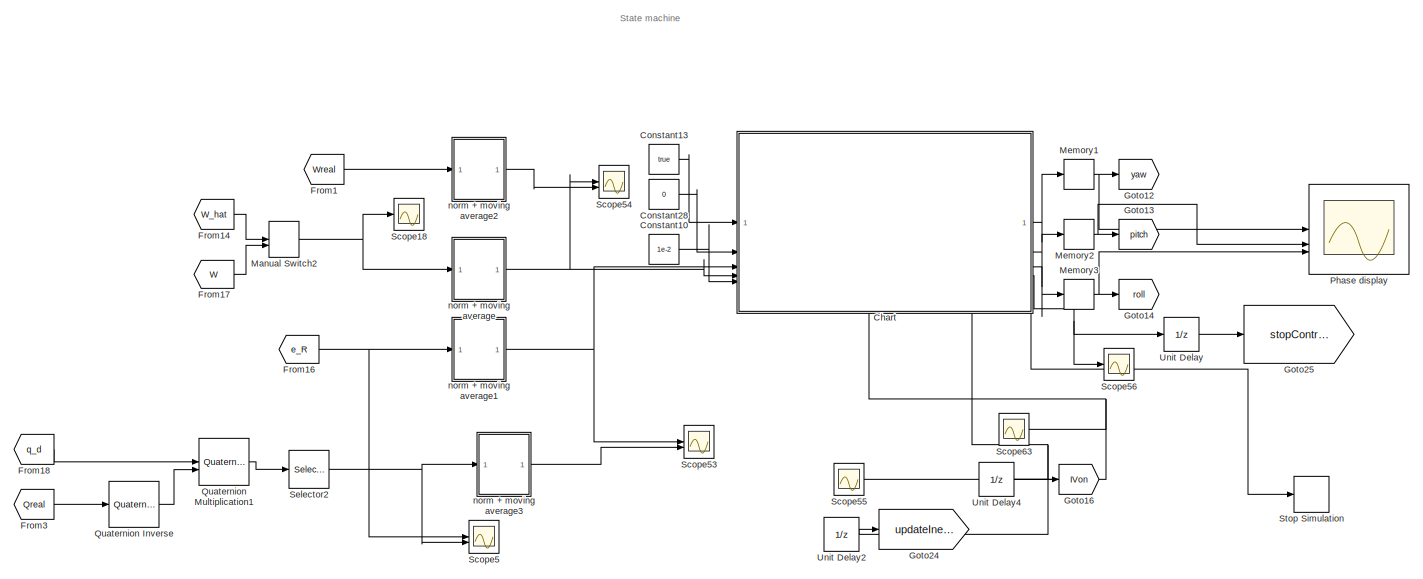
[diagram: root canvas - part 1/15, top left region]
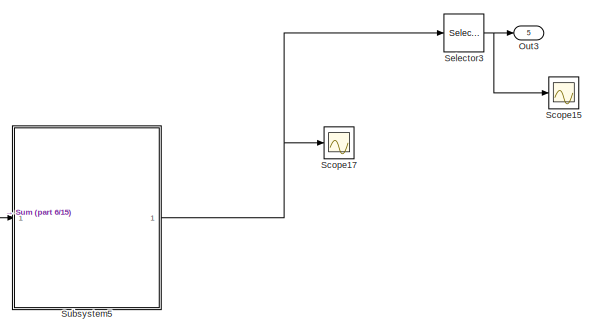
[diagram: root canvas - part 2/15, top right region]
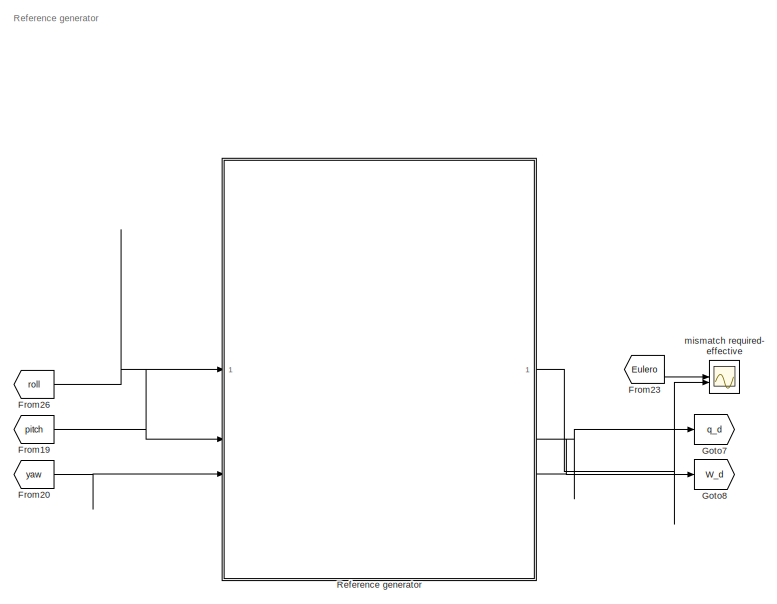
[diagram: root canvas - part 3/15, top left region]
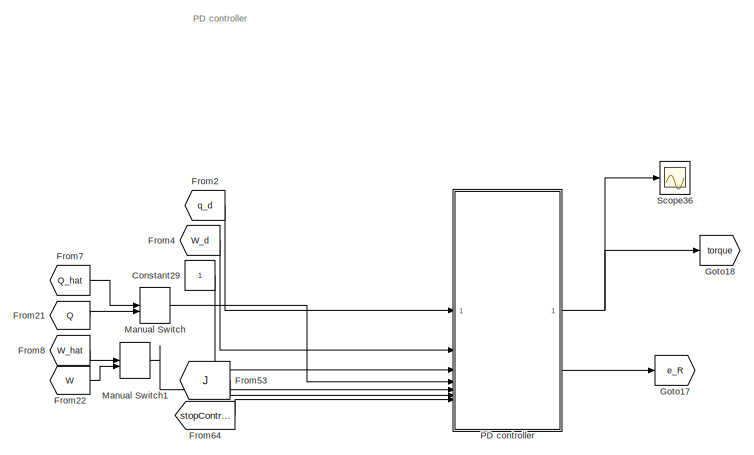
[diagram: root canvas - part 4/15, top left region]
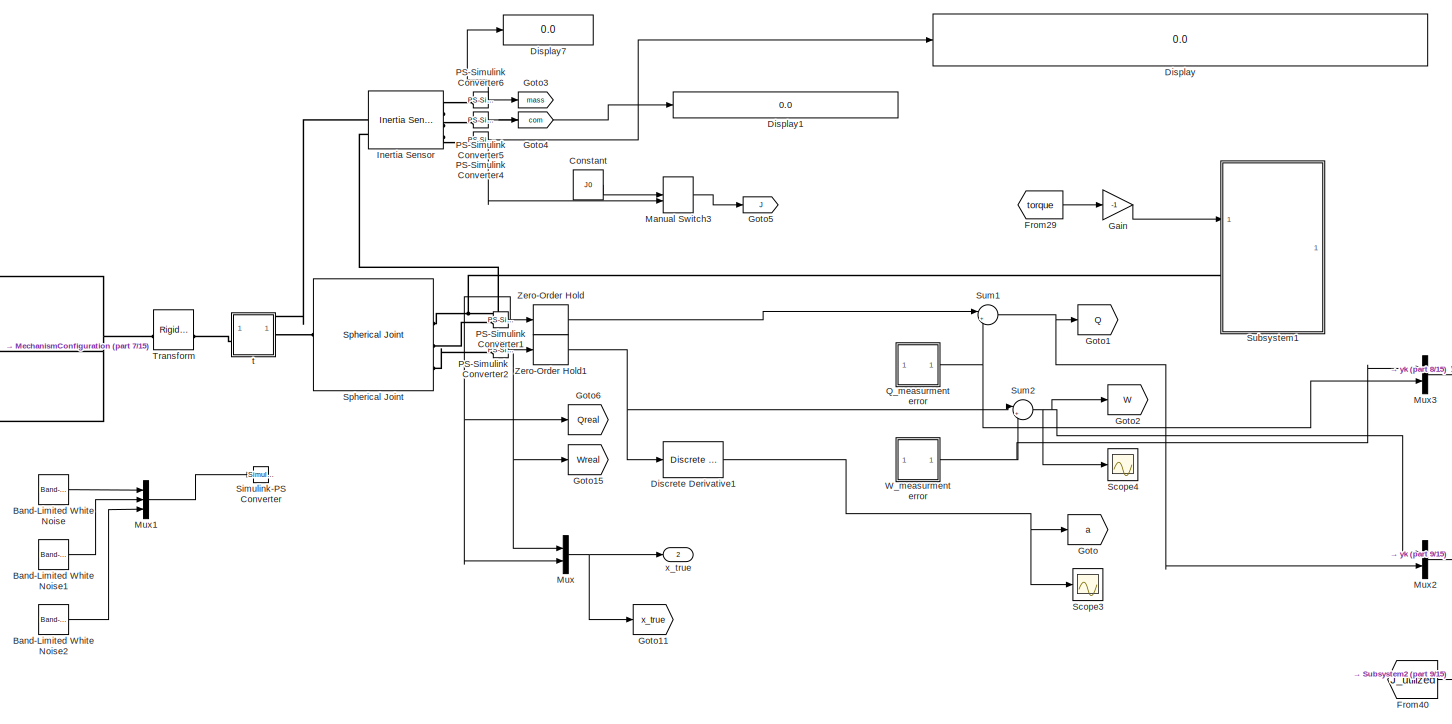
[diagram: root canvas - part 5/15, top center region]
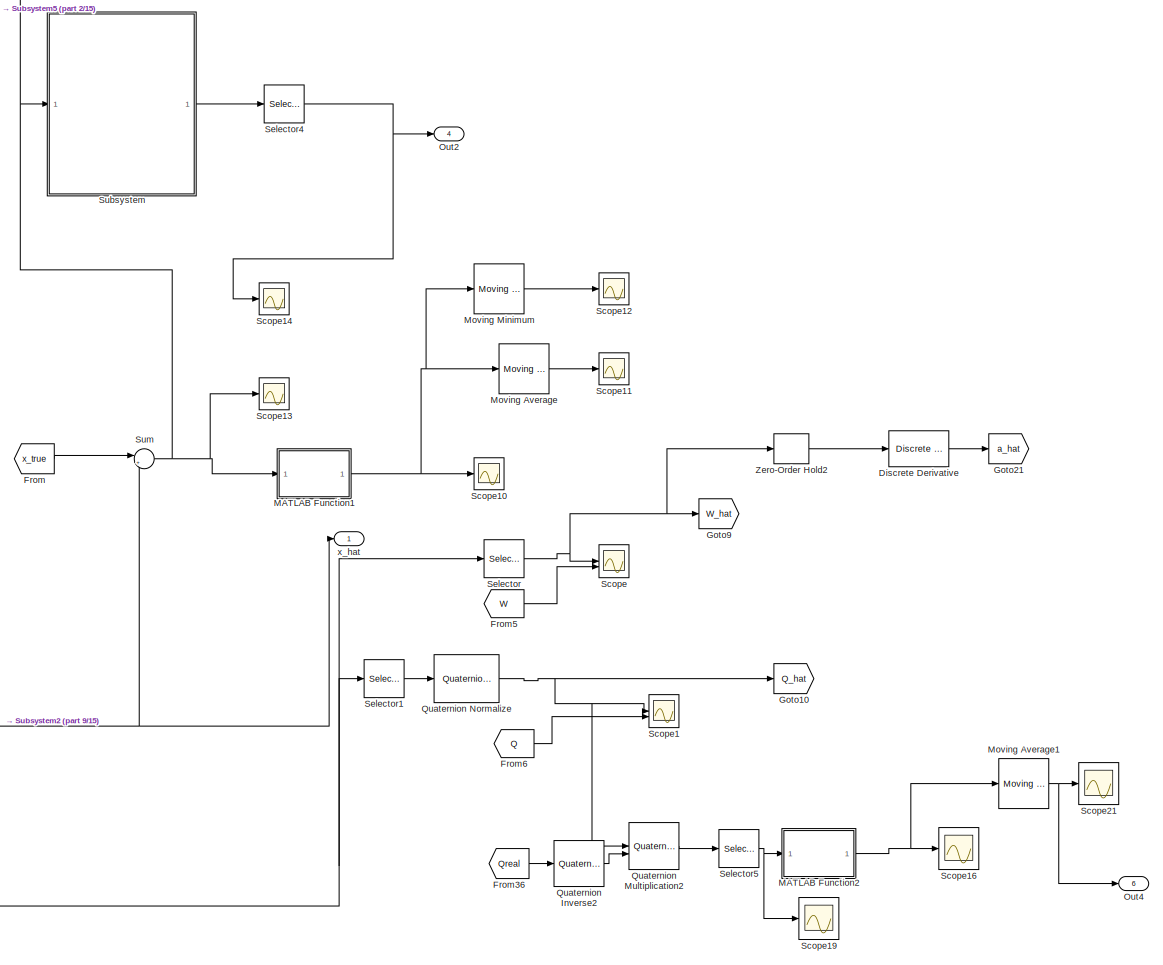
[diagram: root canvas - part 6/15, top right region]
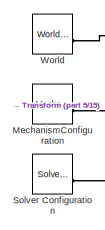
[diagram: root canvas - part 7/15, top center region]
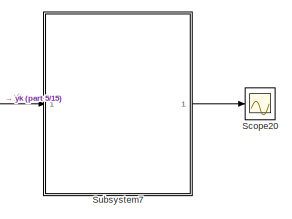
[diagram: root canvas - part 8/15, top center region]
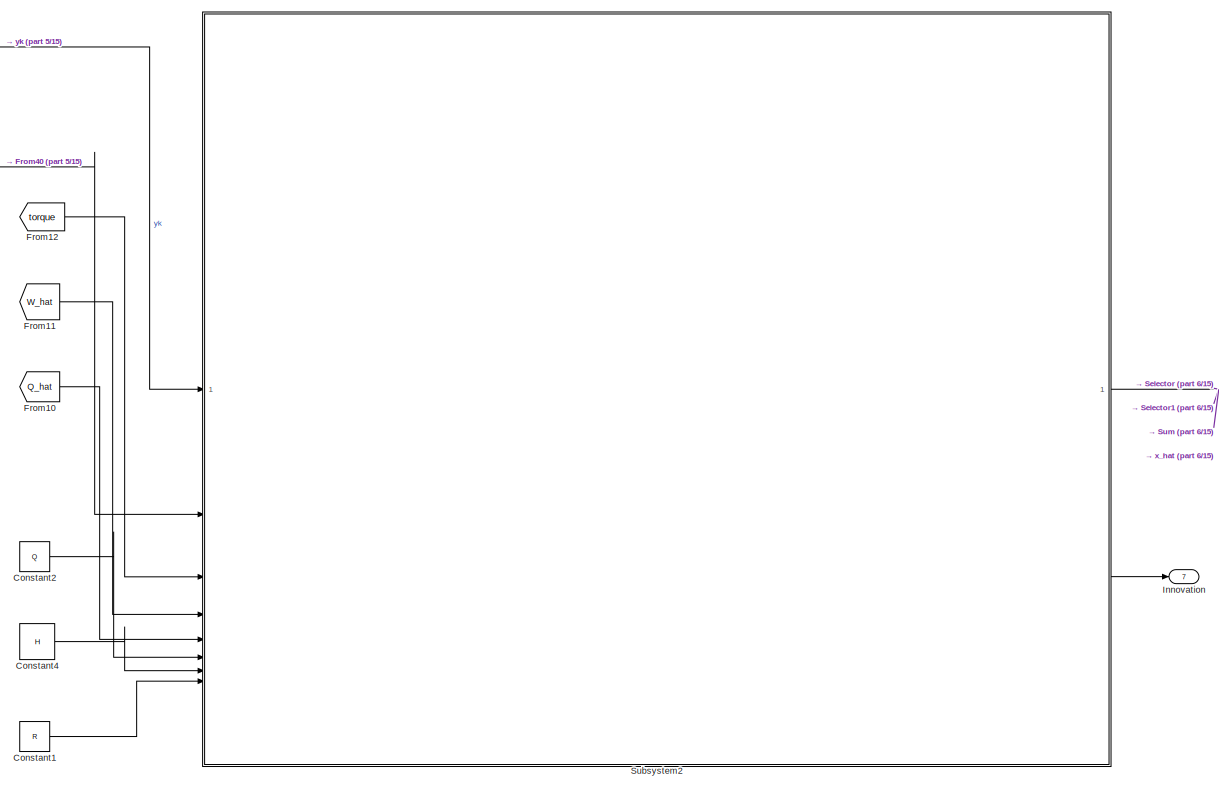
[diagram: root canvas - part 9/15, middle right region]
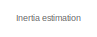
[diagram: root canvas - part 10/15, central region]
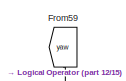
[diagram: root canvas - part 11/15, central region]
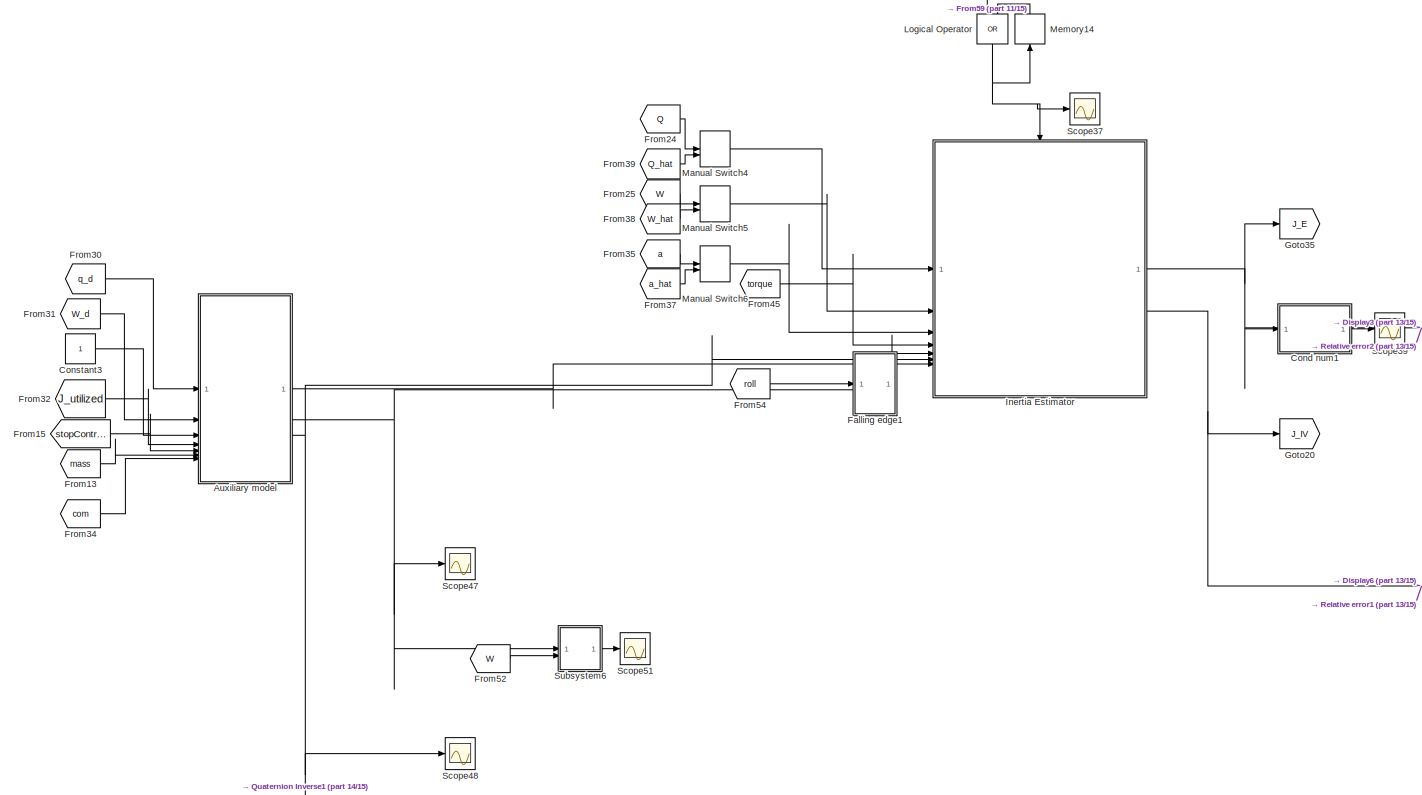
[diagram: root canvas - part 12/15, bottom center region]
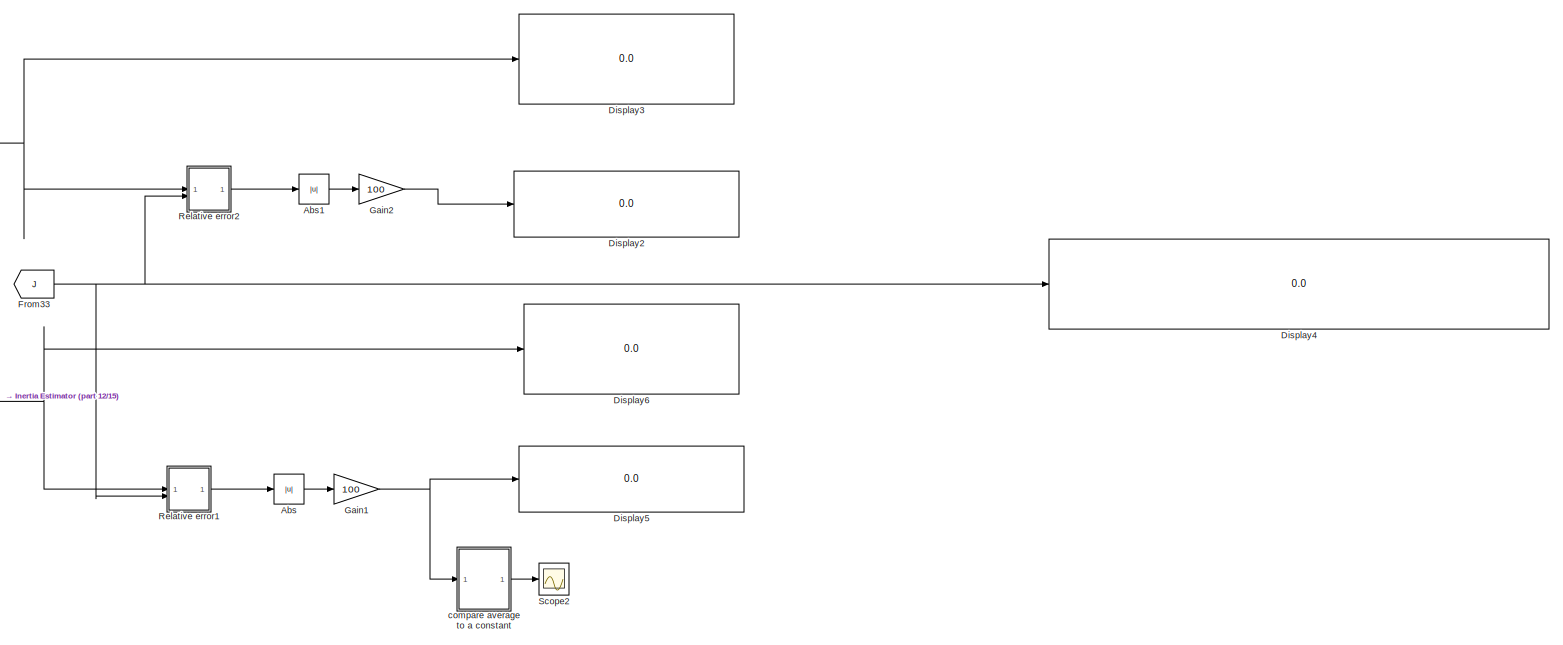
[diagram: root canvas - part 13/15, bottom center region]
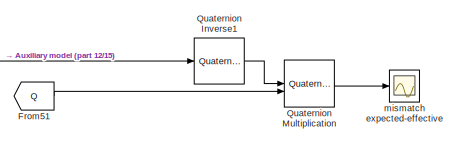
[diagram: root canvas - part 14/15, bottom center region]
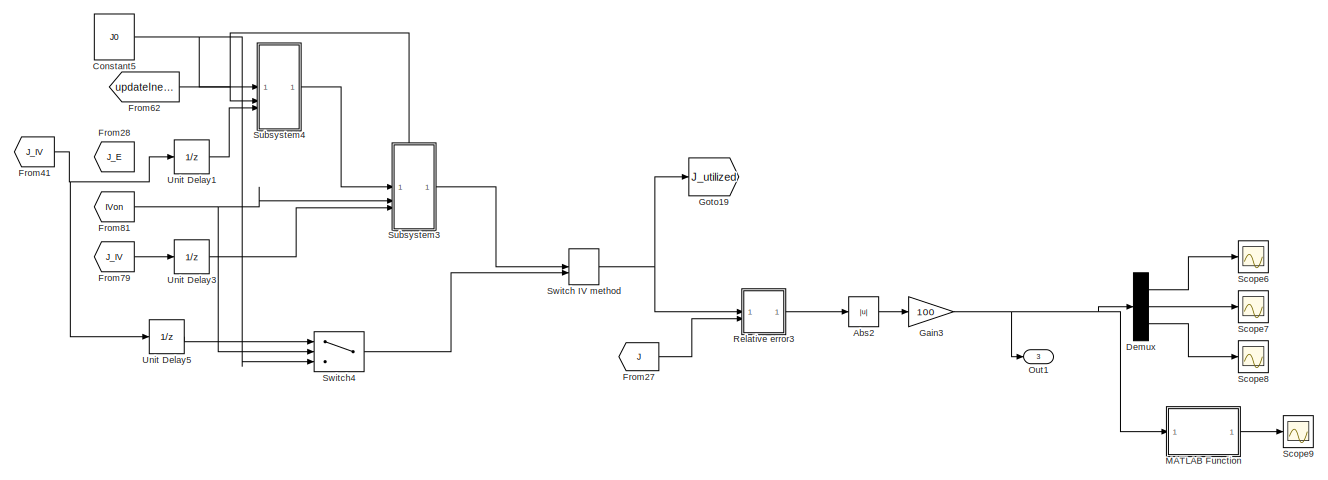
[diagram: root canvas - part 15/15, bottom center region]
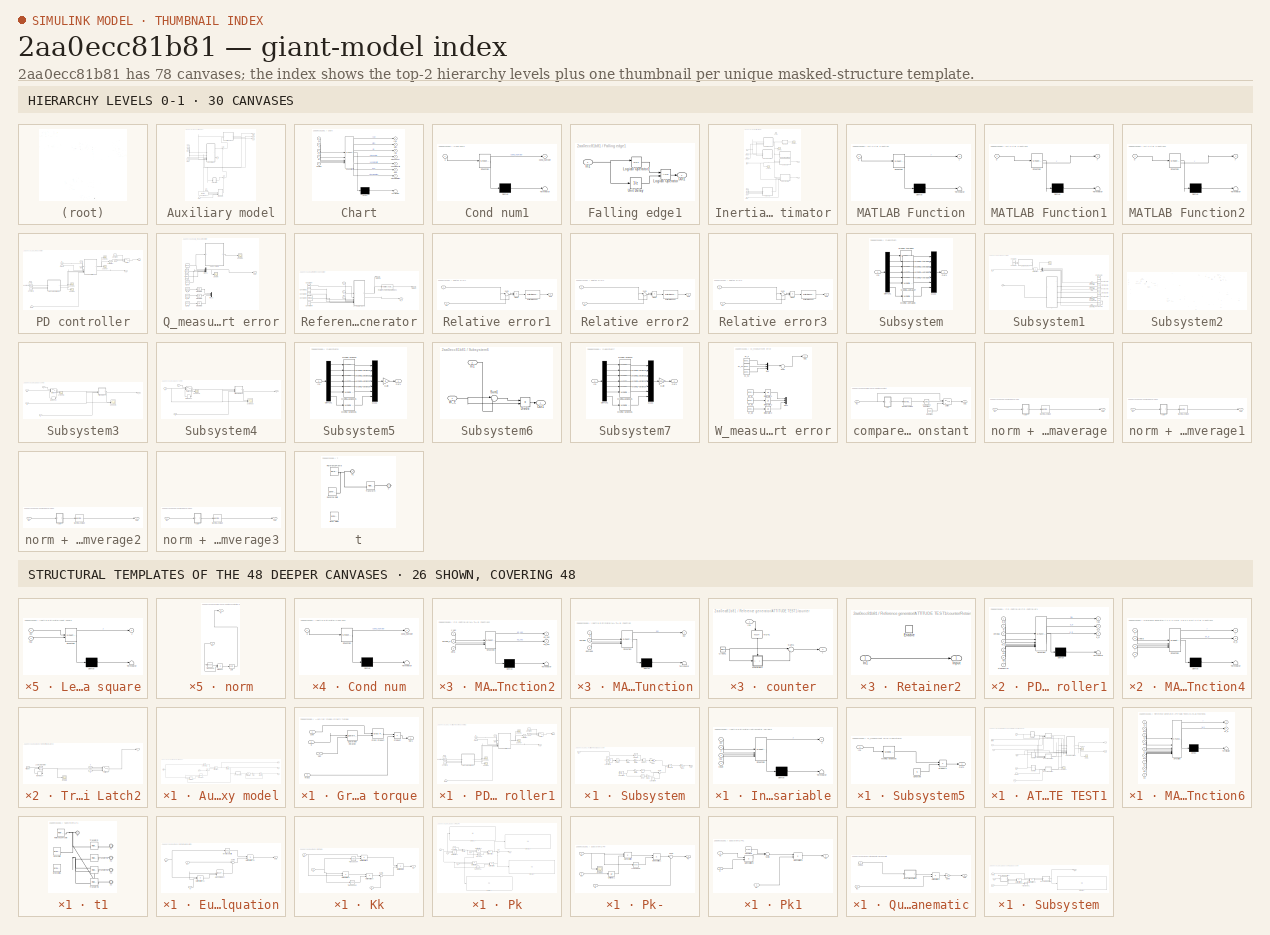
[diagram: thumbnail index - top-2 hierarchy levels (30 canvases) + 26 structural-template representatives of the remaining 48 canvases]
MODEL slx_2aa0ecc81b81
KIND model
CONFIG AbsTol = auto
CONFIG EnableMultiTasking = off
CONFIG FixedStep = ts
CONFIG MaxStep = auto
CONFIG MinStep = auto
CONFIG RelTol = 1e-3
CONFIG SampleTimeConstraint = Unconstrained
CONFIG SolverName = ode4
CONFIG StartTime = 0.0
CONFIG StopTime = 10
BLOCK [Abs] Abs
  SaturateOnIntegerOverflow = off
BLOCK [Abs] Abs1
  SaturateOnIntegerOverflow = off
BLOCK [Abs] Abs2
  SaturateOnIntegerOverflow = off
BLOCK [SubSystem] Auxiliary model
BLOCK [SubSystem] Auxiliary model/Auxiliary model
BLOCK [Reference] Auxiliary model/Auxiliary model/Cross Product  REF=matrix_library/Cross Product
  LibrarySourceBlock = simulink/Matrix\nOperations/Cross Product
  SourceBlock = matrix_library/Cross Product
  SourceType = CrossProduct
BLOCK [Gain] Auxiliary model/Auxiliary model/Gain5
  Gain = 0.5
BLOCK [Inport] Auxiliary model/Auxiliary model/Input
  Port = 2
BLOCK [Integrator] Auxiliary model/Auxiliary model/Integrator
  InitialCondition = [1;0;0;0]
BLOCK [Integrator] Auxiliary model/Auxiliary model/Integrator1
BLOCK [Reference] Auxiliary model/Auxiliary model/Invert 3x3 Matrix  REF=aerolibutil/Invert 
3x3 Matrix
  SourceBlock = aerolibutil/Invert \n3x3 Matrix
  SourceType = Invert 3x3 Matrix
BLOCK [SubSystem] Auxiliary model/Auxiliary model/MATLAB Function4
  ErrorFcn = Stateflow.Translate.translate
  PermitHierarchicalResolution = ExplicitOnly
  SFBlockType = MATLAB Function
  TreatAsAtomicUnit = on
BLOCK [Demux] Auxiliary model/Auxiliary model/MATLAB Function4/ Demux 
  Outputs = 1
BLOCK [S-Function] Auxiliary model/Auxiliary model/MATLAB Function4/ SFunction 
  EnableBusSupport = on
  FunctionName = sf_sfun
  PortCounts = [1 2]
  SFcnIsStateOwnerBlock = off
  SFunctionDeploymentMode = off
  Tag = Stateflow S-Function 19
BLOCK [Terminator] Auxiliary model/Auxiliary model/MATLAB Function4/ Terminator 
BLOCK [Outport] Auxiliary model/Auxiliary model/MATLAB Function4/Omega
BLOCK [Inport] Auxiliary model/Auxiliary model/MATLAB Function4/omega
BLOCK [Inport] Auxiliary model/Auxiliary model/Matrix
BLOCK [Product] Auxiliary model/Auxiliary model/Matrix Multiply2
  Multiplication = Matrix(*)
BLOCK [Product] Auxiliary model/Auxiliary model/Matrix Multiply3
  Multiplication = Matrix(*)
BLOCK [Product] Auxiliary model/Auxiliary model/Matrix Multiply4
  Multiplication = Matrix(*)
BLOCK [Outport] Auxiliary model/Auxiliary model/Q_E
  Port = 2
BLOCK [Sum] Auxiliary model/Auxiliary model/Sum1
  Inputs = |+-
BLOCK [Outport] Auxiliary model/Auxiliary model/W_E
BLOCK [Outport] Auxiliary model/Auxiliary model/a_E
  Port = 3
BLOCK [Constant] Auxiliary model/Constant33
  Commented = on
  Value = [0;0;g0]
BLOCK [SubSystem] Auxiliary model/Gravity torque
  Commented = on
BLOCK [Reference] Auxiliary model/Gravity torque/Cross Product  REF=matrix_library/Cross Product
  LibrarySourceBlock = simulink/Matrix\nOperations/Cross Product
  SourceBlock = matrix_library/Cross Product
  SourceType = CrossProduct
BLOCK [Outport] Auxiliary model/Gravity torque/Out1
BLOCK [Product] Auxiliary model/Gravity torque/Product
BLOCK [Reference] Auxiliary model/Gravity torque/Quaternion Rotation  REF=aerolibutil/Quaternion
Rotation
  SourceBlock = aerolibutil/Quaternion\nRotation
  SourceType = Quaternion Rotation
BLOCK [Inport] Auxiliary model/Gravity torque/com
BLOCK [Inport] Auxiliary model/Gravity torque/mass
  Port = 4
BLOCK [Inport] Auxiliary model/Gravity torque/q
  Port = 2
BLOCK [Inport] Auxiliary model/Gravity torque/vec
  Port = 3
BLOCK [Inport] Auxiliary model/Input
  Port = 3
BLOCK [Inport] Auxiliary model/Input1
  Port = 5
BLOCK [Inport] Auxiliary model/J_vec
  Port = 4
BLOCK [SubSystem] Auxiliary model/PD controller1
BLOCK [Constant] Auxiliary model/PD controller1/Constant5
  Value = omega_n
BLOCK [Constant] Auxiliary model/PD controller1/Constant6
  Value = zeta
BLOCK [Constant] Auxiliary model/PD controller1/Constant7
  Value = [0; 0; 0]
BLOCK [Inport] Auxiliary model/PD controller1/Input
  Port = 3
BLOCK [Inport] Auxiliary model/PD controller1/Input1
  Port = 7
BLOCK [Inport] Auxiliary model/PD controller1/J_vec
  Port = 6
BLOCK [SubSystem] Auxiliary model/PD controller1/MATLAB Function2
  ErrorFcn = Stateflow.Translate.translate
  PermitHierarchicalResolution = ExplicitOnly
  SFBlockType = MATLAB Function
  TreatAsAtomicUnit = on
BLOCK [Demux] Auxiliary model/PD controller1/MATLAB Function2/ Demux 
  Outputs = 1
BLOCK [S-Function] Auxiliary model/PD controller1/MATLAB Function2/ SFunction 
  EnableBusSupport = on
  FunctionName = sf_sfun
  PortCounts = [3 3]
  SFcnIsStateOwnerBlock = off
  SFunctionDeploymentMode = off
  Tag = Stateflow S-Function 5
BLOCK [Terminator] Auxiliary model/PD controller1/MATLAB Function2/ Terminator 
BLOCK [Inport] Auxiliary model/PD controller1/MATLAB Function2/J_vec
BLOCK [Outport] Auxiliary model/PD controller1/MATLAB Function2/kd_vec
  Port = 2
BLOCK [Outport] Auxiliary model/PD controller1/MATLAB Function2/kp_vec
BLOCK [Inport] Auxiliary model/PD controller1/MATLAB Function2/omega_n
  Port = 2
BLOCK [Inport] Auxiliary model/PD controller1/MATLAB Function2/zeta
  Port = 3
BLOCK [SubSystem] Auxiliary model/PD controller1/PD controller1
  ErrorFcn = Stateflow.Translate.translate
  PermitHierarchicalResolution = ExplicitOnly
  SFBlockType = MATLAB Function
  TreatAsAtomicUnit = on
BLOCK [Demux] Auxiliary model/PD controller1/PD controller1/ Demux 
  Outputs = 1
BLOCK [S-Function] Auxiliary model/PD controller1/PD controller1/ SFunction 
  EnableBusSupport = on
  FunctionName = sf_sfun
  PortCounts = [7 4]
  SFcnIsStateOwnerBlock = off
  SFunctionDeploymentMode = off
  Tag = Stateflow S-Function 6
BLOCK [Terminator] Auxiliary model/PD controller1/PD controller1/ Terminator 
BLOCK [Inport] Auxiliary model/PD controller1/PD controller1/Kd
  Port = 6
BLOCK [Inport] Auxiliary model/PD controller1/PD controller1/Kp
  Port = 5
BLOCK [Inport] Auxiliary model/PD controller1/PD controller1/W_d
  Port = 4
BLOCK [Outport] Auxiliary model/PD controller1/PD controller1/e_R
  Port = 3
BLOCK [Inport] Auxiliary model/PD controller1/PD controller1/omega
  Port = 3
BLOCK [Inport] Auxiliary model/PD controller1/PD controller1/q
  Port = 2
BLOCK [Inport] Auxiliary model/PD controller1/PD controller1/q_d
BLOCK [Outport] Auxiliary model/PD controller1/PD controller1/q_e
  Port = 2
BLOCK [Inport] Auxiliary model/PD controller1/PD controller1/stopControl
  Port = 7
BLOCK [Outport] Auxiliary model/PD controller1/PD controller1/tau
BLOCK [Saturate] Auxiliary model/PD controller1/Saturation1
  LowerLimit = -T_sat
  UpperLimit = T_sat
BLOCK [Scope] Auxiliary model/PD controller1/Scope24
  Floating = off
  NumInputPorts = 1
  ScopeSpecificationString = Simulink.scopes.TimeScopeBlockCfg('CurrentConfiguration', extmgr.ConfigurationSet(extmgr.Configuration('Core','General UI',true),extmgr.Configuration('Core','Source UI',true),extmgr.Configuration('Sources','WiredSimulink',true,'DataLoggingVariableName','ScopeData5'),extmgr.Configuration('Visuals','Time Domain',true,'SerializedDisplays',{struct('MinYLimReal','-1.12745','MaxYLimReal','1.07843','YLab...<+1467ch>
BLOCK [Scope] Auxiliary model/PD controller1/Scope33
  Floating = off
  NumInputPorts = 1
  ScopeSpecificationString = Simulink.scopes.TimeScopeBlockCfg('CurrentConfiguration', extmgr.ConfigurationSet(extmgr.Configuration('Core','General UI',true),extmgr.Configuration('Core','Source UI',true),extmgr.Configuration('Sources','WiredSimulink',true,'DataLoggingVariableName','ScopeData6'),extmgr.Configuration('Visuals','Time Domain',true,'SerializedDisplays',{struct('MinYLimReal','0.16519','MaxYLimReal','0.25331','YLabe...<+1463ch>
BLOCK [Scope] Auxiliary model/PD controller1/Scope34
  Floating = off
  NumInputPorts = 1
  ScopeSpecificationString = Simulink.scopes.TimeScopeBlockCfg('CurrentConfiguration', extmgr.ConfigurationSet(extmgr.Configuration('Core','General UI',true),extmgr.Configuration('Core','Source UI',true),extmgr.Configuration('Sources','WiredSimulink',true,'DataLoggingVariableName','ScopeData7'),extmgr.Configuration('Visuals','Time Domain',true,'SerializedDisplays',{struct('MinYLimReal','-1.17868','MaxYLimReal','8.0072','YLabe...<+1498ch>
BLOCK [Scope] Auxiliary model/PD controller1/Scope40
  Floating = off
  NumInputPorts = 1
  ScopeSpecificationString = Simulink.scopes.TimeScopeBlockCfg('CurrentConfiguration', extmgr.ConfigurationSet(extmgr.Configuration('Core','General UI',true),extmgr.Configuration('Core','Source UI',true),extmgr.Configuration('Sources','WiredSimulink',true,'DataLoggingVariableName','ScopeData8'),extmgr.Configuration('Visuals','Time Domain',true,'SerializedDisplays',{struct('MinYLimReal','0.23126','MaxYLimReal','0.35464','YLabe...<+1438ch>
BLOCK [Switch] Auxiliary model/PD controller1/Switch
  Criteria = u2 > Threshold
  InputSameDT = off
  SaturateOnIntegerOverflow = off
BLOCK [Inport] Auxiliary model/PD controller1/W_d
  Port = 2
BLOCK [Outport] Auxiliary model/PD controller1/e_R
  Port = 2
BLOCK [Inport] Auxiliary model/PD controller1/omega
  Port = 5
BLOCK [Inport] Auxiliary model/PD controller1/q
  Port = 4
BLOCK [Inport] Auxiliary model/PD controller1/q_d
BLOCK [Outport] Auxiliary model/PD controller1/torque
BLOCK [Outport] Auxiliary model/Q_E
  Port = 3
BLOCK [SubSystem] Auxiliary model/Subsystem
  Commented = on
BLOCK [Constant] Auxiliary model/Subsystem/Constant1
  Value = Rs
BLOCK [Constant] Auxiliary model/Subsystem/Constant2
  Value = 4
BLOCK [Constant] Auxiliary model/Subsystem/Constant3
  Value = theta_s
BLOCK [Constant] Auxiliary model/Subsystem/Constant4
  Value = 8
BLOCK [Trigonometry] Auxiliary model/Subsystem/Cos
  Operator = cos
BLOCK [Trigonometry] Auxiliary model/Subsystem/Cos1
  Operator = cos
BLOCK [Gain] Auxiliary model/Subsystem/Gain1
  Gain = [0; 0; 1]
BLOCK [Gain] Auxiliary model/Subsystem/Gain2
  Gain = -pi
BLOCK [Gain] Auxiliary model/Subsystem/Gain3
  Gain = mu
BLOCK [Gain] Auxiliary model/Subsystem/Gain4
  Gain = 1/(6*t)
BLOCK [Gain] Auxiliary model/Subsystem/Gain7
  Gain = 3
BLOCK [Gain] Auxiliary model/Subsystem/Gain8
  Gain = -9
BLOCK [Inport] Auxiliary model/Subsystem/In1
BLOCK [Outport] Auxiliary model/Subsystem/Out1
BLOCK [Math] Auxiliary model/Subsystem/Power
  Operator = pow
BLOCK [Product] Auxiliary model/Subsystem/Product
BLOCK [Product] Auxiliary model/Subsystem/Product1
BLOCK [Selector] Auxiliary model/Subsystem/Selector
  IndexOptions = Index vector (dialog)
  Indices = [3]
  InputPortWidth = 3
  OutputSizes = 1
BLOCK [Sum] Auxiliary model/Subsystem/Sum1
  Inputs = |+++
BLOCK [Sum] Auxiliary model/Sum
  Commented = on
  Inputs = |++
BLOCK [Sum] Auxiliary model/Sum1
  Inputs = |++
BLOCK [Outport] Auxiliary model/W_E
  Port = 2
BLOCK [Inport] Auxiliary model/W_d
  Port = 2
BLOCK [Outport] Auxiliary model/a_E
BLOCK [Inport] Auxiliary model/com
  Port = 7
BLOCK [Outport] Auxiliary model/e_R
  Port = 4
BLOCK [Inport] Auxiliary model/mass
  Port = 6
BLOCK [Inport] Auxiliary model/q_d
BLOCK [Reference] Band-Limited White Noise  REF=simulink/Sources/Band-Limited
White Noise
  SourceBlock = simulink/Sources/Band-Limited\nWhite Noise
  SourceType = Band-Limited White Noise.
BLOCK [Reference] Band-Limited White Noise1  REF=simulink/Sources/Band-Limited
White Noise
  SourceBlock = simulink/Sources/Band-Limited\nWhite Noise
  SourceType = Band-Limited White Noise.
BLOCK [Reference] Band-Limited White Noise2  REF=simulink/Sources/Band-Limited
White Noise
  SourceBlock = simulink/Sources/Band-Limited\nWhite Noise
  SourceType = Band-Limited White Noise.
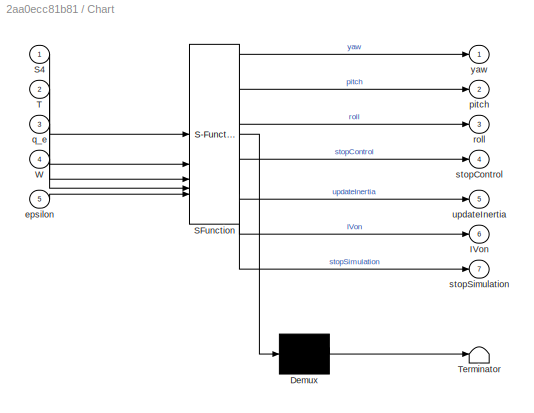
BLOCK [SubSystem] Chart
  ErrorFcn = Stateflow.Translate.translate
  PermitHierarchicalResolution = ExplicitOnly
  PortSchema = {"entries":[{"content":{"sides":[{"content":{"connectorIds":["In1","In2","In5","In4","In3"]},"type":"ConnectorPlacement.EquallySpacedRectSide","uuid":"970e20b7-715a-436a-a70f-e596340e1cfb"},{"content":{"connectorIds":["Out1","Out2","Out3","Out4"],"side":"RIGHT"},"type":"ConnectorPlacement.EquallySpacedRectSide","uuid":"6272c468-b4f6-46a3-961f-e24caba23042"},{"content":{"side":"TOP"},"type":"Connec...<+431ch>
  SFBlockType = Chart
  TreatAsAtomicUnit = on
BLOCK [Demux] Chart/ Demux 
  Outputs = 1
BLOCK [S-Function] Chart/ SFunction 
  EnableBusSupport = on
  FunctionName = sf_sfun
  PortCounts = [5 8]
  SFcnIsStateOwnerBlock = off
  SFunctionDeploymentMode = off
  Tag = Stateflow S-Function 39
BLOCK [Terminator] Chart/ Terminator 
BLOCK [Outport] Chart/IVon
  Port = 6
BLOCK [Inport] Chart/S4
BLOCK [Inport] Chart/T
  Port = 2
BLOCK [Inport] Chart/W
  Port = 4
BLOCK [Inport] Chart/epsilon
  Port = 5
BLOCK [Outport] Chart/pitch
  Port = 2
BLOCK [Inport] Chart/q_e
  Port = 3
BLOCK [Outport] Chart/roll
  Port = 3
BLOCK [Outport] Chart/stopControl
  Port = 4
BLOCK [Outport] Chart/stopSimulation
  Port = 7
BLOCK [Outport] Chart/updateInertia
  Port = 5
BLOCK [Outport] Chart/yaw
BLOCK [SubSystem] Cond num1
  ErrorFcn = Stateflow.Translate.translate
  PermitHierarchicalResolution = ExplicitOnly
  SFBlockType = MATLAB Function
  TreatAsAtomicUnit = on
BLOCK [Demux] Cond num1/ Demux 
  Outputs = 1
BLOCK [S-Function] Cond num1/ SFunction 
  EnableBusSupport = on
  FunctionName = sf_sfun
  PortCounts = [1 2]
  SFcnIsStateOwnerBlock = off
  SFunctionDeploymentMode = off
  Tag = Stateflow S-Function 31
BLOCK [Terminator] Cond num1/ Terminator 
BLOCK [Outport] Cond num1/cond_number
BLOCK [Inport] Cond num1/u
BLOCK [Constant] Constant
  Value = J0
BLOCK [Constant] Constant1
  Value = R
BLOCK [Constant] Constant10
  Value = 1e-2
BLOCK [Constant] Constant13
  Value = true
BLOCK [Constant] Constant2
  Value = Q
BLOCK [Constant] Constant28
  Value = 0
BLOCK [Constant] Constant29
BLOCK [Constant] Constant3
BLOCK [Constant] Constant4
  Value = H
BLOCK [Constant] Constant5
  Value = J0
BLOCK [Demux] Demux
  Outputs = 3
BLOCK [Reference] Discrete Derivative  REF=simulink/Discrete/Discrete Derivative
  SourceBlock = simulink/Discrete/Discrete Derivative
  SourceType = Discrete Derivative
BLOCK [Reference] Discrete Derivative1  REF=simulink/Discrete/Discrete Derivative
  SourceBlock = simulink/Discrete/Discrete Derivative
  SourceType = Discrete Derivative
BLOCK [Display] Display
  Decimation = 1
  Format = long
BLOCK [Display] Display1
  Decimation = 1
BLOCK [Display] Display2
  Decimation = 1
BLOCK [Display] Display3
  Decimation = 1
BLOCK [Display] Display4
  Decimation = 1
  Format = long
BLOCK [Display] Display5
  Decimation = 1
BLOCK [Display] Display6
  Decimation = 1
BLOCK [Display] Display7
  Decimation = 1
BLOCK [SubSystem] Falling edge1
BLOCK [Inport] Falling edge1/In1
BLOCK [Logic] Falling edge1/Logical Operator
  AllPortsSameDT = off
  OutDataTypeStr = boolean
BLOCK [Logic] Falling edge1/Logical Operator1
  AllPortsSameDT = off
  Operator = NOT
  OutDataTypeStr = boolean
BLOCK [Outport] Falling edge1/Out1
BLOCK [UnitDelay] Falling edge1/Unit Delay
  HasFrameUpgradeWarning = on
  SampleTime = -1
BLOCK [From] From
  GotoTag = x_true
BLOCK [From] From1
  GotoTag = Wreal
BLOCK [From] From10
  GotoTag = Q_hat
BLOCK [From] From11
  GotoTag = W_hat
BLOCK [From] From12
  GotoTag = torque
BLOCK [From] From13
  GotoTag = mass
BLOCK [From] From14
  GotoTag = W_hat
BLOCK [From] From15
  GotoTag = stopControl
BLOCK [From] From16
  GotoTag = e_R
BLOCK [From] From17
  GotoTag = W
BLOCK [From] From18
  GotoTag = q_d
BLOCK [From] From19
  GotoTag = pitch
BLOCK [From] From2
  GotoTag = q_d
BLOCK [From] From20
  GotoTag = yaw
BLOCK [From] From21
  GotoTag = Q
BLOCK [From] From22
  GotoTag = W
BLOCK [From] From23
  GotoTag = Eulero
BLOCK [From] From24
  GotoTag = Q
BLOCK [From] From25
  GotoTag = W
BLOCK [From] From26
  GotoTag = roll
BLOCK [From] From27
  GotoTag = J
BLOCK [From] From28
  GotoTag = J_E
BLOCK [From] From29
  GotoTag = torque
BLOCK [From] From3
  GotoTag = Qreal
BLOCK [From] From30
  GotoTag = q_d
BLOCK [From] From31
  GotoTag = W_d
BLOCK [From] From32
  GotoTag = J_utilized
BLOCK [From] From33
  GotoTag = J
BLOCK [From] From34
  GotoTag = com
BLOCK [From] From35
  GotoTag = a
BLOCK [From] From36
  GotoTag = Qreal
BLOCK [From] From37
  GotoTag = a_hat
BLOCK [From] From38
  GotoTag = W_hat
BLOCK [From] From39
  GotoTag = Q_hat
BLOCK [From] From4
  GotoTag = W_d
BLOCK [From] From40
  GotoTag = J_utilized
BLOCK [From] From41
  GotoTag = J_IV
BLOCK [From] From45
  GotoTag = torque
BLOCK [From] From5
  GotoTag = W
BLOCK [From] From51
  GotoTag = Q
BLOCK [From] From52
  GotoTag = W
BLOCK [From] From53
  GotoTag = J
BLOCK [From] From54
  GotoTag = roll
BLOCK [From] From59
  GotoTag = yaw
  NameLocation = left
BLOCK [From] From6
  GotoTag = Q
BLOCK [From] From62
  GotoTag = updateInertia
BLOCK [From] From64
  GotoTag = stopControl
BLOCK [From] From7
  GotoTag = Q_hat
BLOCK [From] From79
  GotoTag = J_IV
BLOCK [From] From8
  GotoTag = W_hat
BLOCK [From] From81
  GotoTag = IVon
BLOCK [Gain] Gain
  Gain = -1
BLOCK [Gain] Gain1
  Gain = 100
BLOCK [Gain] Gain2
  Gain = 100
BLOCK [Gain] Gain3
  Gain = 100
BLOCK [Goto] Goto
  GotoTag = a
BLOCK [Goto] Goto1
  GotoTag = Q
BLOCK [Goto] Goto10
  GotoTag = Q_hat
BLOCK [Goto] Goto11
  GotoTag = x_true
BLOCK [Goto] Goto12
  GotoTag = yaw
BLOCK [Goto] Goto13
  GotoTag = pitch
BLOCK [Goto] Goto14
  GotoTag = roll
BLOCK [Goto] Goto15
  GotoTag = Wreal
BLOCK [Goto] Goto16
  GotoTag = IVon
BLOCK [Goto] Goto17
  GotoTag = e_R
BLOCK [Goto] Goto18
  GotoTag = torque
BLOCK [Goto] Goto19
  GotoTag = J_utilized
BLOCK [Goto] Goto2
  GotoTag = W
BLOCK [Goto] Goto20
  GotoTag = J_IV
BLOCK [Goto] Goto21
  GotoTag = a_hat
BLOCK [Goto] Goto24
  GotoTag = updateInertia
BLOCK [Goto] Goto25
  GotoTag = stopControl
BLOCK [Goto] Goto3
  GotoTag = mass
BLOCK [Goto] Goto35
  GotoTag = J_E
BLOCK [Goto] Goto4
  GotoTag = com
BLOCK [Goto] Goto5
  GotoTag = J
BLOCK [Goto] Goto6
  GotoTag = Qreal
BLOCK [Goto] Goto7
  GotoTag = q_d
BLOCK [Goto] Goto8
  GotoTag = W_d
BLOCK [Goto] Goto9
  GotoTag = W_hat
BLOCK [SubSystem] Inertia Estimator
BLOCK [SubSystem] Inertia Estimator/Cond num
  ErrorFcn = Stateflow.Translate.translate
  PermitHierarchicalResolution = ExplicitOnly
  SFBlockType = MATLAB Function
  TreatAsAtomicUnit = on
BLOCK [Demux] Inertia Estimator/Cond num/ Demux 
  Outputs = 1
BLOCK [S-Function] Inertia Estimator/Cond num/ SFunction 
  EnableBusSupport = on
  FunctionName = sf_sfun
  PortCounts = [1 2]
  SFcnIsStateOwnerBlock = off
  SFunctionDeploymentMode = off
  Tag = Stateflow S-Function 30
BLOCK [Terminator] Inertia Estimator/Cond num/ Terminator 
BLOCK [Outport] Inertia Estimator/Cond num/cond_number
BLOCK [Inport] Inertia Estimator/Cond num/u
BLOCK [EnablePort] Inertia Estimator/Enable
BLOCK [SubSystem] Inertia Estimator/Instrumental variable
  ErrorFcn = Stateflow.Translate.translate
  PermitHierarchicalResolution = ExplicitOnly
  SFBlockType = MATLAB Function
  TreatAsAtomicUnit = on
BLOCK [Demux] Inertia Estimator/Instrumental variable/ Demux 
  Outputs = 1
BLOCK [S-Function] Inertia Estimator/Instrumental variable/ SFunction 
  EnableBusSupport = on
  FunctionName = sf_sfun
  PortCounts = [4 2]
  SFcnIsStateOwnerBlock = off
  SFunctionDeploymentMode = off
  Tag = Stateflow S-Function 20
BLOCK [Terminator] Inertia Estimator/Instrumental variable/ Terminator 
BLOCK [Outport] Inertia Estimator/Instrumental variable/J
BLOCK [Inport] Inertia Estimator/Instrumental variable/psi
BLOCK [Inport] Inertia Estimator/Instrumental variable/reset
  Port = 4
BLOCK [Inport] Inertia Estimator/Instrumental variable/tau
  Port = 3
BLOCK [Inport] Inertia Estimator/Instrumental variable/z
  Port = 2
BLOCK [Outport] Inertia Estimator/J
  Port = 2
BLOCK [Outport] Inertia Estimator/J1
BLOCK [SubSystem] Inertia Estimator/Least square
  ErrorFcn = Stateflow.Translate.translate
  PermitHierarchicalResolution = ExplicitOnly
  SFBlockType = MATLAB Function
  SystemSampleTime = sampleTime
  TreatAsAtomicUnit = on
BLOCK [Demux] Inertia Estimator/Least square/ Demux 
  Outputs = 1
BLOCK [S-Function] Inertia Estimator/Least square/ SFunction 
  EnableBusSupport = on
  FunctionName = sf_sfun
  PortCounts = [2 2]
  SFcnIsStateOwnerBlock = off
  SFunctionDeploymentMode = off
  Tag = Stateflow S-Function 25
BLOCK [Terminator] Inertia Estimator/Least square/ Terminator 
BLOCK [Outport] Inertia Estimator/Least square/J
BLOCK [Inport] Inertia Estimator/Least square/psi
BLOCK [Inport] Inertia Estimator/Least square/tau
  Port = 2
BLOCK [SubSystem] Inertia Estimator/MATLAB Function
  Commented = on
  ErrorFcn = Stateflow.Translate.translate
  PermitHierarchicalResolution = ExplicitOnly
  SFBlockType = MATLAB Function
  TreatAsAtomicUnit = on
BLOCK [Demux] Inertia Estimator/MATLAB Function/ Demux 
  Outputs = 1
BLOCK [S-Function] Inertia Estimator/MATLAB Function/ SFunction 
  EnableBusSupport = off
  FunctionName = sf_sfun
  PortCounts = [3 2]
  SFcnIsStateOwnerBlock = off
  SFunctionDeploymentMode = off
  Tag = Stateflow S-Function 24
BLOCK [Terminator] Inertia Estimator/MATLAB Function/ Terminator 
BLOCK [Inport] Inertia Estimator/MATLAB Function/domega
  Port = 3
BLOCK [Inport] Inertia Estimator/MATLAB Function/omega
  Port = 2
BLOCK [Outport] Inertia Estimator/MATLAB Function/psi
BLOCK [Inport] Inertia Estimator/MATLAB Function/q
BLOCK [SubSystem] Inertia Estimator/MATLAB Function3
  Commented = on
  ErrorFcn = Stateflow.Translate.translate
  PermitHierarchicalResolution = ExplicitOnly
  SFBlockType = MATLAB Function
  SystemSampleTime = sampleTime
  TreatAsAtomicUnit = on
BLOCK [Demux] Inertia Estimator/MATLAB Function3/ Demux 
  Outputs = 1
BLOCK [S-Function] Inertia Estimator/MATLAB Function3/ SFunction 
  EnableBusSupport = off
  FunctionName = sf_sfun
  PortCounts = [2 2]
  SFcnIsStateOwnerBlock = off
  SFunctionDeploymentMode = off
  Tag = Stateflow S-Function 32
BLOCK [Terminator] Inertia Estimator/MATLAB Function3/ Terminator 
BLOCK [Outport] Inertia Estimator/MATLAB Function3/J
BLOCK [Inport] Inertia Estimator/MATLAB Function3/psi
BLOCK [Inport] Inertia Estimator/MATLAB Function3/tau
  Port = 2
BLOCK [Inport] Inertia Estimator/Q_E
  Port = 6
BLOCK [SubSystem] Inertia Estimator/Regressor
  ErrorFcn = Stateflow.Translate.translate
  PermitHierarchicalResolution = ExplicitOnly
  SFBlockType = MATLAB Function
  TreatAsAtomicUnit = on
BLOCK [Demux] Inertia Estimator/Regressor/ Demux 
  Outputs = 1
BLOCK [S-Function] Inertia Estimator/Regressor/ SFunction 
  EnableBusSupport = on
  FunctionName = sf_sfun
  PortCounts = [3 2]
  SFcnIsStateOwnerBlock = off
  SFunctionDeploymentMode = off
  Tag = Stateflow S-Function 28
BLOCK [Terminator] Inertia Estimator/Regressor/ Terminator 
BLOCK [Inport] Inertia Estimator/Regressor/domega
  Port = 3
BLOCK [Inport] Inertia Estimator/Regressor/omega
  Port = 2
BLOCK [Outport] Inertia Estimator/Regressor/psi
BLOCK [Inport] Inertia Estimator/Regressor/q
BLOCK [SubSystem] Inertia Estimator/Regressor1
  ErrorFcn = Stateflow.Translate.translate
  PermitHierarchicalResolution = ExplicitOnly
  SFBlockType = MATLAB Function
  TreatAsAtomicUnit = on
BLOCK [Demux] Inertia Estimator/Regressor1/ Demux 
  Outputs = 1
BLOCK [S-Function] Inertia Estimator/Regressor1/ SFunction 
  EnableBusSupport = on
  FunctionName = sf_sfun
  PortCounts = [3 2]
  SFcnIsStateOwnerBlock = off
  SFunctionDeploymentMode = off
  Tag = Stateflow S-Function 21
BLOCK [Terminator] Inertia Estimator/Regressor1/ Terminator 
BLOCK [Inport] Inertia Estimator/Regressor1/domega
  Port = 3
BLOCK [Inport] Inertia Estimator/Regressor1/omega
  Port = 2
BLOCK [Outport] Inertia Estimator/Regressor1/psi
BLOCK [Inport] Inertia Estimator/Regressor1/q
BLOCK [Scope] Inertia Estimator/Scope16
  Floating = off
  NumInputPorts = 1
  ScopeSpecificationString = Simulink.scopes.TimeScopeBlockCfg('CurrentConfiguration', extmgr.ConfigurationSet(extmgr.Configuration('Core','General UI',true),extmgr.Configuration('Core','Source UI',true),extmgr.Configuration('Sources','WiredSimulink',true,'DataLoggingVariableName','ScopeData3'),extmgr.Configuration('Visuals','Time Domain',true,'SerializedDisplays',{struct('MinYLimReal','-7.53208','MaxYLimReal','7.53208','YLab...<+1769ch>
BLOCK [Scope] Inertia Estimator/Scope24
  Floating = off
  NumInputPorts = 1
  ScopeSpecificationString = Simulink.scopes.TimeScopeBlockCfg('CurrentConfiguration', extmgr.ConfigurationSet(extmgr.Configuration('Core','General UI',true),extmgr.Configuration('Core','Source UI',true),extmgr.Configuration('Sources','WiredSimulink',true,'DataLoggingVariableName','ScopeData4'),extmgr.Configuration('Visuals','Time Domain',true,'SerializedDisplays',{struct('MinYLimReal','-1039624303148179840.00000','MaxYLimRea...<+1528ch>
BLOCK [Scope] Inertia Estimator/Scope33
  Floating = off
  NumInputPorts = 1
  ScopeSpecificationString = Simulink.scopes.TimeScopeBlockCfg('CurrentConfiguration', extmgr.ConfigurationSet(extmgr.Configuration('Core','General UI',true),extmgr.Configuration('Core','Source UI',true),extmgr.Configuration('Sources','WiredSimulink',true,'DataLoggingVariableName','ScopeData4'),extmgr.Configuration('Visuals','Time Domain',true,'SerializedDisplays',{struct('MinYLimReal','-0.0375','MaxYLimReal','0.0375','YLabel...<+1393ch>
BLOCK [Inport] Inertia Estimator/W_E
  Port = 5
BLOCK [Inport] Inertia Estimator/a_E
  Port = 7
BLOCK [Inport] Inertia Estimator/domega
  Port = 3
BLOCK [Inport] Inertia Estimator/omega
  Port = 2
BLOCK [Inport] Inertia Estimator/q
BLOCK [Inport] Inertia Estimator/reset
  Port = 8
BLOCK [Inport] Inertia Estimator/tau
  Port = 4
BLOCK [Reference] Inertia Sensor  REF=sm_lib/Body Elements/Inertia Sensor
  SourceBlock = sm_lib/Body Elements/Inertia Sensor
  SourceType = Inertia Sensor
BLOCK [Outport] Innovation
  Port = 7
BLOCK [Logic] Logical Operator
  AllPortsSameDT = off
  NameLocation = left
  Operator = OR
  OutDataTypeStr = boolean
BLOCK [SubSystem] MATLAB Function
  ErrorFcn = Stateflow.Translate.translate
  PermitHierarchicalResolution = ExplicitOnly
  SFBlockType = MATLAB Function
  TreatAsAtomicUnit = on
BLOCK [Demux] MATLAB Function/ Demux 
  Outputs = 1
BLOCK [S-Function] MATLAB Function/ SFunction 
  EnableBusSupport = on
  FunctionName = sf_sfun
  PortCounts = [1 2]
  SFcnIsStateOwnerBlock = off
  SFunctionDeploymentMode = off
  Tag = Stateflow S-Function 7
BLOCK [Terminator] MATLAB Function/ Terminator 
BLOCK [Inport] MATLAB Function/u
BLOCK [Outport] MATLAB Function/y
BLOCK [SubSystem] MATLAB Function1
  ErrorFcn = Stateflow.Translate.translate
  PermitHierarchicalResolution = ExplicitOnly
  SFBlockType = MATLAB Function
  TreatAsAtomicUnit = on
BLOCK [Demux] MATLAB Function1/ Demux 
  Outputs = 1
BLOCK [S-Function] MATLAB Function1/ SFunction 
  EnableBusSupport = on
  FunctionName = sf_sfun
  PortCounts = [1 2]
  SFcnIsStateOwnerBlock = off
  SFunctionDeploymentMode = off
  Tag = Stateflow S-Function 8
BLOCK [Terminator] MATLAB Function1/ Terminator 
BLOCK [Inport] MATLAB Function1/u
BLOCK [Outport] MATLAB Function1/y
BLOCK [SubSystem] MATLAB Function2
  ErrorFcn = Stateflow.Translate.translate
  PermitHierarchicalResolution = ExplicitOnly
  SFBlockType = MATLAB Function
  TreatAsAtomicUnit = on
BLOCK [Demux] MATLAB Function2/ Demux 
  Outputs = 1
BLOCK [S-Function] MATLAB Function2/ SFunction 
  EnableBusSupport = on
  FunctionName = sf_sfun
  PortCounts = [1 2]
  SFcnIsStateOwnerBlock = off
  SFunctionDeploymentMode = off
  Tag = Stateflow S-Function 9
BLOCK [Terminator] MATLAB Function2/ Terminator 
BLOCK [Inport] MATLAB Function2/u
BLOCK [Outport] MATLAB Function2/y
BLOCK [ManualSwitch] Manual Switch
BLOCK [ManualSwitch] Manual Switch1
BLOCK [ManualSwitch] Manual Switch2
BLOCK [ManualSwitch] Manual Switch3
  CurrentSetting = 0
BLOCK [ManualSwitch] Manual Switch4
  CurrentSetting = 0
BLOCK [ManualSwitch] Manual Switch5
  CurrentSetting = 0
BLOCK [ManualSwitch] Manual Switch6
  CurrentSetting = 0
BLOCK [Reference] MechanismConfiguration  REF=sm_lib/Utilities/Mechanism
Configuration
  SourceBlock = sm_lib/Utilities/Mechanism\nConfiguration
  SourceType = Mechanism\nConfiguration
BLOCK [Memory] Memory1
BLOCK [Memory] Memory14
  NameLocation = right
BLOCK [Memory] Memory2
BLOCK [Memory] Memory3
BLOCK [Reference] Moving Average  REF=dspstat3/Moving
Average
  SourceBlock = dspstat3/Moving\nAverage
  SourceType = dsp.simulink.MovingAverage
BLOCK [Reference] Moving Average1  REF=dspstat3/Moving
Average
  SourceBlock = dspstat3/Moving\nAverage
  SourceType = dsp.simulink.MovingAverage
BLOCK [Reference] Moving Minimum  REF=dspstat3/Moving
Minimum
  SourceBlock = dspstat3/Moving\nMinimum
  SourceType = dsp.simulink.MovingMinimum
BLOCK [Mux] Mux
  DisplayOption = bar
  Inputs = 2
BLOCK [Mux] Mux1
  DisplayOption = bar
  Inputs = 3
BLOCK [Mux] Mux2
  DisplayOption = bar
  Inputs = 2
BLOCK [Mux] Mux3
  DisplayOption = bar
  Inputs = 2
BLOCK [Outport] Out1
  Port = 3
BLOCK [Outport] Out2
  Port = 4
  SignalName = err
BLOCK [Outport] Out3
  Port = 5
  SignalName = err
BLOCK [Outport] Out4
  Port = 6
BLOCK [SubSystem] PD controller
BLOCK [Constant] PD controller/Constant5
  Value = omega_n
BLOCK [Constant] PD controller/Constant6
  Value = zeta
BLOCK [Constant] PD controller/Constant7
  Value = [0; 0; 0]
BLOCK [Inport] PD controller/Input
  Port = 3
BLOCK [Inport] PD controller/Input1
  Port = 7
BLOCK [Inport] PD controller/J_vec
  Port = 6
BLOCK [SubSystem] PD controller/MATLAB Function2
  ErrorFcn = Stateflow.Translate.translate
  PermitHierarchicalResolution = ExplicitOnly
  SFBlockType = MATLAB Function
  TreatAsAtomicUnit = on
BLOCK [Demux] PD controller/MATLAB Function2/ Demux 
  Outputs = 1
BLOCK [S-Function] PD controller/MATLAB Function2/ SFunction 
  EnableBusSupport = on
  FunctionName = sf_sfun
  PortCounts = [3 3]
  SFcnIsStateOwnerBlock = off
  SFunctionDeploymentMode = off
  Tag = Stateflow S-Function 34
BLOCK [Terminator] PD controller/MATLAB Function2/ Terminator 
BLOCK [Inport] PD controller/MATLAB Function2/J_vec
BLOCK [Outport] PD controller/MATLAB Function2/kd_vec
  Port = 2
BLOCK [Outport] PD controller/MATLAB Function2/kp_vec
BLOCK [Inport] PD controller/MATLAB Function2/omega_n
  Port = 2
BLOCK [Inport] PD controller/MATLAB Function2/zeta
  Port = 3
BLOCK [Outport] PD controller/Out2
BLOCK [SubSystem] PD controller/PD controller1
  ErrorFcn = Stateflow.Translate.translate
  PermitHierarchicalResolution = ExplicitOnly
  SFBlockType = MATLAB Function
  TreatAsAtomicUnit = on
BLOCK [Demux] PD controller/PD controller1/ Demux 
  Outputs = 1
BLOCK [S-Function] PD controller/PD controller1/ SFunction 
  EnableBusSupport = on
  FunctionName = sf_sfun
  PortCounts = [7 4]
  SFcnIsStateOwnerBlock = off
  SFunctionDeploymentMode = off
  Tag = Stateflow S-Function 17
BLOCK [Terminator] PD controller/PD controller1/ Terminator 
BLOCK [Inport] PD controller/PD controller1/Kd
  Port = 6
BLOCK [Inport] PD controller/PD controller1/Kp
  Port = 5
BLOCK [Inport] PD controller/PD controller1/W_d
  Port = 4
BLOCK [Outport] PD controller/PD controller1/e_R
  Port = 3
BLOCK [Inport] PD controller/PD controller1/omega
  Port = 3
BLOCK [Inport] PD controller/PD controller1/q
  Port = 2
BLOCK [Inport] PD controller/PD controller1/q_d
BLOCK [Outport] PD controller/PD controller1/q_e
  Port = 2
BLOCK [Inport] PD controller/PD controller1/stopControl
  Port = 7
BLOCK [Outport] PD controller/PD controller1/tau
BLOCK [Saturate] PD controller/Saturation1
  LowerLimit = -T_sat
  UpperLimit = T_sat
BLOCK [Scope] PD controller/Scope24
  Floating = off
  NumInputPorts = 1
  ScopeSpecificationString = Simulink.scopes.TimeScopeBlockCfg('CurrentConfiguration', extmgr.ConfigurationSet(extmgr.Configuration('Core','General UI',true),extmgr.Configuration('Core','Source UI',true),extmgr.Configuration('Sources','WiredSimulink',true,'DataLoggingVariableName','ScopeData5'),extmgr.Configuration('Visuals','Time Domain',true,'SerializedDisplays',{struct('MinYLimReal','-1.12745','MaxYLimReal','1.07843','YLab...<+1467ch>
BLOCK [Scope] PD controller/Scope33
  Floating = off
  NumInputPorts = 1
  ScopeSpecificationString = Simulink.scopes.TimeScopeBlockCfg('CurrentConfiguration', extmgr.ConfigurationSet(extmgr.Configuration('Core','General UI',true),extmgr.Configuration('Core','Source UI',true),extmgr.Configuration('Sources','WiredSimulink',true,'DataLoggingVariableName','ScopeData6'),extmgr.Configuration('Visuals','Time Domain',true,'SerializedDisplays',{struct('MinYLimReal','0.16519','MaxYLimReal','0.25331','YLabe...<+1463ch>
BLOCK [Scope] PD controller/Scope34
  Floating = off
  NumInputPorts = 1
  ScopeSpecificationString = Simulink.scopes.TimeScopeBlockCfg('CurrentConfiguration', extmgr.ConfigurationSet(extmgr.Configuration('Core','General UI',true),extmgr.Configuration('Core','Source UI',true),extmgr.Configuration('Sources','WiredSimulink',true,'DataLoggingVariableName','ScopeData7'),extmgr.Configuration('Visuals','Time Domain',true,'SerializedDisplays',{struct('MinYLimReal','-1.17868','MaxYLimReal','8.0072','YLabe...<+1498ch>
BLOCK [Scope] PD controller/Scope40
  Floating = off
  NumInputPorts = 1
  ScopeSpecificationString = Simulink.scopes.TimeScopeBlockCfg('CurrentConfiguration', extmgr.ConfigurationSet(extmgr.Configuration('Core','General UI',true),extmgr.Configuration('Core','Source UI',true),extmgr.Configuration('Sources','WiredSimulink',true,'DataLoggingVariableName','ScopeData8'),extmgr.Configuration('Visuals','Time Domain',true,'SerializedDisplays',{struct('MinYLimReal','0.23126','MaxYLimReal','0.35464','YLabe...<+1438ch>
BLOCK [Switch] PD controller/Switch
  Criteria = u2 > Threshold
  InputSameDT = off
  SaturateOnIntegerOverflow = off
BLOCK [Inport] PD controller/W_d
  Port = 2
BLOCK [Outport] PD controller/e_R
  Port = 2
BLOCK [Inport] PD controller/omega
  Port = 5
BLOCK [Inport] PD controller/q
  Port = 4
BLOCK [Inport] PD controller/q_d
BLOCK [Reference] PS-Simulink Converter1  REF=nesl_utility/PS-Simulink
Converter
  SourceBlock = nesl_utility/PS-Simulink\nConverter
  SourceType = PS-Simulink\nConverter
BLOCK [Reference] PS-Simulink Converter2  REF=nesl_utility/PS-Simulink
Converter
  SourceBlock = nesl_utility/PS-Simulink\nConverter
  SourceType = PS-Simulink\nConverter
BLOCK [Reference] PS-Simulink Converter4  REF=nesl_utility/PS-Simulink
Converter
  SourceBlock = nesl_utility/PS-Simulink\nConverter
  SourceType = PS-Simulink\nConverter
BLOCK [Reference] PS-Simulink Converter5  REF=nesl_utility/PS-Simulink
Converter
  SourceBlock = nesl_utility/PS-Simulink\nConverter
  SourceType = PS-Simulink\nConverter
BLOCK [Reference] PS-Simulink Converter6  REF=nesl_utility/PS-Simulink
Converter
  SourceBlock = nesl_utility/PS-Simulink\nConverter
  SourceType = PS-Simulink\nConverter
BLOCK [Scope] Phase display
  Floating = off
  NumInputPorts = 3
  ScopeSpecificationString = Simulink.scopes.TimeScopeBlockCfg('CurrentConfiguration', extmgr.ConfigurationSet(extmgr.Configuration('Core','General UI',true),extmgr.Configuration('Core','Source UI',true),extmgr.Configuration('Sources','WiredSimulink',true,'DataLoggingVariableName','ScopeData3'),extmgr.Configuration('Visuals','Time Domain',true,'SerializedDisplays',{struct('MinYLimReal','-0.125','MaxYLimReal','1.125','YLabelRe...<+1517ch>
BLOCK [SubSystem] Q_measurment error
BLOCK [Integrator] Q_measurment error/Integrator1
  Commented = on
BLOCK [Integrator] Q_measurment error/Integrator2
  Commented = on
BLOCK [Integrator] Q_measurment error/Integrator3
  Commented = on
BLOCK [Mux] Q_measurment error/Mux1
  DisplayOption = bar
BLOCK [Mux] Q_measurment error/Mux2
  Commented = on
  DisplayOption = bar
  Inputs = 3
BLOCK [Outport] Q_measurment error/Out1
BLOCK [Reference] Q_measurment error/Q_n  REF=simulink/Sources/Band-Limited
White Noise
  SourceBlock = simulink/Sources/Band-Limited\nWhite Noise
  SourceType = Band-Limited White Noise.
BLOCK [Reference] Q_measurment error/Q_n1  REF=simulink/Sources/Band-Limited
White Noise
  SourceBlock = simulink/Sources/Band-Limited\nWhite Noise
  SourceType = Band-Limited White Noise.
BLOCK [Reference] Q_measurment error/Q_n2  REF=simulink/Sources/Band-Limited
White Noise
  SourceBlock = simulink/Sources/Band-Limited\nWhite Noise
  SourceType = Band-Limited White Noise.
BLOCK [Reference] Q_measurment error/Q_n3  REF=simulink/Sources/Band-Limited
White Noise
  SourceBlock = simulink/Sources/Band-Limited\nWhite Noise
  SourceType = Band-Limited White Noise.
BLOCK [Reference] Q_measurment error/Q_w  REF=simulink/Sources/Band-Limited
White Noise
  Commented = on
  SourceBlock = simulink/Sources/Band-Limited\nWhite Noise
  SourceType = Band-Limited White Noise.
BLOCK [Reference] Q_measurment error/Q_w1  REF=simulink/Sources/Band-Limited
White Noise
  Commented = on
  SourceBlock = simulink/Sources/Band-Limited\nWhite Noise
  SourceType = Band-Limited White Noise.
BLOCK [Reference] Q_measurment error/Q_w2  REF=simulink/Sources/Band-Limited
White Noise
  Commented = on
  SourceBlock = simulink/Sources/Band-Limited\nWhite Noise
  SourceType = Band-Limited White Noise.
BLOCK [Scope] Q_measurment error/Scope
  Floating = off
  NumInputPorts = 1
  ScopeSpecificationString = Simulink.scopes.TimeScopeBlockCfg('CurrentConfiguration', extmgr.ConfigurationSet(extmgr.Configuration('Core','General UI',true),extmgr.Configuration('Core','Source UI',true),extmgr.Configuration('Sources','WiredSimulink',true,'DataLoggingVariableName','ScopeData4'),extmgr.Configuration('Visuals','Time Domain',true,'SerializedDisplays',{struct('MinYLimReal','-0.00827','MaxYLimReal','0.00791','YLab...<+1497ch>
BLOCK [Scope] Q_measurment error/Scope1
  Floating = off
  NumInputPorts = 1
  ScopeSpecificationString = Simulink.scopes.TimeScopeBlockCfg('CurrentConfiguration', extmgr.ConfigurationSet(extmgr.Configuration('Core','General UI',true),extmgr.Configuration('Core','Source UI',true),extmgr.Configuration('Sources','WiredSimulink',true,'DataLoggingVariableName','ScopeData11'),extmgr.Configuration('Visuals','Time Domain',true,'SerializedDisplays',{struct('MinYLimReal','-0.000000001','MaxYLimReal','0.0000000...<+1545ch>
BLOCK [SubSystem] Q_measurment error/Subsystem5
BLOCK [Constant] Q_measurment error/Subsystem5/Constant
  Value = ts
BLOCK [Inport] Q_measurment error/Subsystem5/In1
BLOCK [Reference] Q_measurment error/Subsystem5/Moving Variance6  REF=dspstat3/Moving
Variance
  SourceBlock = dspstat3/Moving\nVariance
  SourceType = dsp.simulink.MovingVariance
BLOCK [Outport] Q_measurment error/Subsystem5/Out1
BLOCK [Product] Q_measurment error/Subsystem5/Product1
BLOCK [Reference] Quaternion Inverse  REF=aerolibutil/Quaternion
Inverse
  SourceBlock = aerolibutil/Quaternion\nInverse
  SourceType = Quaternion Inverse
BLOCK [Reference] Quaternion Inverse1  REF=aerolibutil/Quaternion
Inverse
  SourceBlock = aerolibutil/Quaternion\nInverse
  SourceType = Quaternion Inverse
BLOCK [Reference] Quaternion Inverse2  REF=aerolibutil/Quaternion
Inverse
  SourceBlock = aerolibutil/Quaternion\nInverse
  SourceType = Quaternion Inverse
BLOCK [Reference] Quaternion Multiplication  REF=aerolibutil/Quaternion
Multiplication
  SourceBlock = aerolibutil/Quaternion\nMultiplication
  SourceType = Quaternion Multiplication
BLOCK [Reference] Quaternion Multiplication1  REF=aerolibutil/Quaternion
Multiplication
  SourceBlock = aerolibutil/Quaternion\nMultiplication
  SourceType = Quaternion Multiplication
BLOCK [Reference] Quaternion Multiplication2  REF=aerolibutil/Quaternion
Multiplication
  SourceBlock = aerolibutil/Quaternion\nMultiplication
  SourceType = Quaternion Multiplication
BLOCK [Reference] Quaternion Normalize  REF=sharedutil/Quaternion
Normalize
  LibrarySourceBlock = aerolibutil/Quaternion\nNormalize
  SourceBlock = sharedutil/Quaternion\nNormalize
  SourceType = Quaternion Normalize
BLOCK [SubSystem] Reference generator
BLOCK [SubSystem] Reference generator/ATTITUDE TEST1
BLOCK [SubSystem] Reference generator/ATTITUDE TEST1/MATLAB Function2
  ErrorFcn = Stateflow.Translate.translate
  PermitHierarchicalResolution = ExplicitOnly
  SFBlockType = MATLAB Function
  TreatAsAtomicUnit = on
BLOCK [Demux] Reference generator/ATTITUDE TEST1/MATLAB Function2/ Demux 
  Outputs = 1
BLOCK [S-Function] Reference generator/ATTITUDE TEST1/MATLAB Function2/ SFunction 
  EnableBusSupport = on
  FunctionName = sf_sfun
  PortCounts = [3 3]
  SFcnIsStateOwnerBlock = off
  SFunctionDeploymentMode = off
  Tag = Stateflow S-Function 13
BLOCK [Terminator] Reference generator/ATTITUDE TEST1/MATLAB Function2/ Terminator 
BLOCK [Inport] Reference generator/ATTITUDE TEST1/MATLAB Function2/T
  Port = 3
BLOCK [Outport] Reference generator/ATTITUDE TEST1/MATLAB Function2/W_d
  Port = 2
BLOCK [Inport] Reference generator/ATTITUDE TEST1/MATLAB Function2/omega
  Port = 2
BLOCK [Inport] Reference generator/ATTITUDE TEST1/MATLAB Function2/t
BLOCK [Outport] Reference generator/ATTITUDE TEST1/MATLAB Function2/y
BLOCK [SubSystem] Reference generator/ATTITUDE TEST1/MATLAB Function4
  ErrorFcn = Stateflow.Translate.translate
  PermitHierarchicalResolution = ExplicitOnly
  SFBlockType = MATLAB Function
  TreatAsAtomicUnit = on
BLOCK [Demux] Reference generator/ATTITUDE TEST1/MATLAB Function4/ Demux 
  Outputs = 1
BLOCK [S-Function] Reference generator/ATTITUDE TEST1/MATLAB Function4/ SFunction 
  EnableBusSupport = on
  FunctionName = sf_sfun
  PortCounts = [4 3]
  SFcnIsStateOwnerBlock = off
  SFunctionDeploymentMode = off
  Tag = Stateflow S-Function 14
BLOCK [Terminator] Reference generator/ATTITUDE TEST1/MATLAB Function4/ Terminator 
BLOCK [Inport] Reference generator/ATTITUDE TEST1/MATLAB Function4/T
  Port = 4
BLOCK [Outport] Reference generator/ATTITUDE TEST1/MATLAB Function4/W_d
  Port = 2
BLOCK [Inport] Reference generator/ATTITUDE TEST1/MATLAB Function4/f
  Port = 3
BLOCK [Inport] Reference generator/ATTITUDE TEST1/MATLAB Function4/t
BLOCK [Inport] Reference generator/ATTITUDE TEST1/MATLAB Function4/theta
  Port = 2
BLOCK [Outport] Reference generator/ATTITUDE TEST1/MATLAB Function4/y
BLOCK [SubSystem] Reference generator/ATTITUDE TEST1/MATLAB Function5
  ErrorFcn = Stateflow.Translate.translate
  PermitHierarchicalResolution = ExplicitOnly
  SFBlockType = MATLAB Function
  TreatAsAtomicUnit = on
BLOCK [Demux] Reference generator/ATTITUDE TEST1/MATLAB Function5/ Demux 
  Outputs = 1
BLOCK [S-Function] Reference generator/ATTITUDE TEST1/MATLAB Function5/ SFunction 
  EnableBusSupport = on
  FunctionName = sf_sfun
  PortCounts = [4 3]
  SFcnIsStateOwnerBlock = off
  SFunctionDeploymentMode = off
  Tag = Stateflow S-Function 15
BLOCK [Terminator] Reference generator/ATTITUDE TEST1/MATLAB Function5/ Terminator 
BLOCK [Inport] Reference generator/ATTITUDE TEST1/MATLAB Function5/T
  Port = 4
BLOCK [Outport] Reference generator/ATTITUDE TEST1/MATLAB Function5/W_d
  Port = 2
BLOCK [Inport] Reference generator/ATTITUDE TEST1/MATLAB Function5/f
  Port = 3
BLOCK [Inport] Reference generator/ATTITUDE TEST1/MATLAB Function5/t
BLOCK [Inport] Reference generator/ATTITUDE TEST1/MATLAB Function5/theta
  Port = 2
BLOCK [Outport] Reference generator/ATTITUDE TEST1/MATLAB Function5/y
BLOCK [SubSystem] Reference generator/ATTITUDE TEST1/MATLAB Function6
  ErrorFcn = Stateflow.Translate.translate
  PermitHierarchicalResolution = ExplicitOnly
  SFBlockType = MATLAB Function
  TreatAsAtomicUnit = on
BLOCK [Demux] Reference generator/ATTITUDE TEST1/MATLAB Function6/ Demux 
  Outputs = 1
BLOCK [S-Function] Reference generator/ATTITUDE TEST1/MATLAB Function6/ SFunction 
  EnableBusSupport = on
  FunctionName = sf_sfun
  PortCounts = [9 3]
  SFcnIsStateOwnerBlock = off
  SFunctionDeploymentMode = off
  Tag = Stateflow S-Function 16
BLOCK [Terminator] Reference generator/ATTITUDE TEST1/MATLAB Function6/ Terminator 
BLOCK [Inport] Reference generator/ATTITUDE TEST1/MATLAB Function6/W1
  Port = 2
BLOCK [Inport] Reference generator/ATTITUDE TEST1/MATLAB Function6/W2
  Port = 4
BLOCK [Inport] Reference generator/ATTITUDE TEST1/MATLAB Function6/W3
  Port = 6
BLOCK [Outport] Reference generator/ATTITUDE TEST1/MATLAB Function6/W_d
  Port = 2
BLOCK [Inport] Reference generator/ATTITUDE TEST1/MATLAB Function6/b1
  Port = 7
BLOCK [Inport] Reference generator/ATTITUDE TEST1/MATLAB Function6/b2
  Port = 8
BLOCK [Inport] Reference generator/ATTITUDE TEST1/MATLAB Function6/b3
  Port = 9
BLOCK [Inport] Reference generator/ATTITUDE TEST1/MATLAB Function6/u1
BLOCK [Inport] Reference generator/ATTITUDE TEST1/MATLAB Function6/u2
  Port = 3
BLOCK [Inport] Reference generator/ATTITUDE TEST1/MATLAB Function6/u3
  Port = 5
BLOCK [Outport] Reference generator/ATTITUDE TEST1/MATLAB Function6/y
BLOCK [Scope] Reference generator/ATTITUDE TEST1/Scope
  Floating = off
  NumInputPorts = 1
  ScopeSpecificationString = Simulink.scopes.TimeScopeBlockCfg('CurrentConfiguration', extmgr.ConfigurationSet(extmgr.Configuration('Core','General UI',true),extmgr.Configuration('Core','Source UI',true),extmgr.Configuration('Sources','WiredSimulink',true,'DataLoggingVariableName','ScopeData1'),extmgr.Configuration('Visuals','Time Domain',true,'SerializedDisplays',{struct('MinYLimReal','-0.0125','MaxYLimReal','0.1125','YLabel...<+1425ch>
BLOCK [Scope] Reference generator/ATTITUDE TEST1/Scope14
  Floating = off
  NumInputPorts = 1
  ScopeSpecificationString = Simulink.scopes.TimeScopeBlockCfg('CurrentConfiguration', extmgr.ConfigurationSet(extmgr.Configuration('Core','General UI',true),extmgr.Configuration('Core','Source UI',true),extmgr.Configuration('Sources','WiredSimulink',true,'DataLoggingVariableName','ScopeData2'),extmgr.Configuration('Visuals','Time Domain',true,'SerializedDisplays',{struct('MinYLimReal','-0.24987','MaxYLimReal','2.24887','YLab...<+1419ch>
BLOCK [Scope] Reference generator/ATTITUDE TEST1/Scope9
  Floating = off
  NumInputPorts = 1
  ScopeSpecificationString = Simulink.scopes.TimeScopeBlockCfg('CurrentConfiguration', extmgr.ConfigurationSet(extmgr.Configuration('Core','General UI',true),extmgr.Configuration('Core','Source UI',true),extmgr.Configuration('Sources','WiredSimulink',true,'DataLoggingVariableName','ScopeData1'),extmgr.Configuration('Visuals','Time Domain',true,'SerializedDisplays',{struct('MinYLimReal','-0.24987','MaxYLimReal','2.24888','YLab...<+1450ch>
BLOCK [Inport] Reference generator/ATTITUDE TEST1/T
  Port = 5
BLOCK [Inport] Reference generator/ATTITUDE TEST1/T_z
  Port = 8
BLOCK [Outport] Reference generator/ATTITUDE TEST1/W_d
  Port = 2
BLOCK [Inport] Reference generator/ATTITUDE TEST1/b1
  Port = 6
BLOCK [Inport] Reference generator/ATTITUDE TEST1/b2
  Port = 4
BLOCK [Inport] Reference generator/ATTITUDE TEST1/b3
BLOCK [SubSystem] Reference generator/ATTITUDE TEST1/counter
BLOCK [Clock] Reference generator/ATTITUDE TEST1/counter/Clock1
BLOCK [Inport] Reference generator/ATTITUDE TEST1/counter/In1
BLOCK [Logic] Reference generator/ATTITUDE TEST1/counter/NOT1
  AllPortsSameDT = off
  IconShape = distinctive
  NameLocation = left
  Operator = NOT
  OutDataTypeStr = boolean
BLOCK [SubSystem] Reference generator/ATTITUDE TEST1/counter/Retainer2
  TreatAsAtomicUnit = on
BLOCK [EnablePort] Reference generator/ATTITUDE TEST1/counter/Retainer2/Enable
BLOCK [Inport] Reference generator/ATTITUDE TEST1/counter/Retainer2/In1
BLOCK [Outport] Reference generator/ATTITUDE TEST1/counter/Retainer2/Input
BLOCK [Sum] Reference generator/ATTITUDE TEST1/counter/Sum1
  Inputs = |+-
BLOCK [Outport] Reference generator/ATTITUDE TEST1/counter/t
BLOCK [SubSystem] Reference generator/ATTITUDE TEST1/counter1
BLOCK [Clock] Reference generator/ATTITUDE TEST1/counter1/Clock1
BLOCK [Inport] Reference generator/ATTITUDE TEST1/counter1/In1
BLOCK [Logic] Reference generator/ATTITUDE TEST1/counter1/NOT1
  AllPortsSameDT = off
  IconShape = distinctive
  NameLocation = left
  Operator = NOT
  OutDataTypeStr = boolean
BLOCK [SubSystem] Reference generator/ATTITUDE TEST1/counter1/Retainer2
  TreatAsAtomicUnit = on
BLOCK [EnablePort] Reference generator/ATTITUDE TEST1/counter1/Retainer2/Enable
BLOCK [Inport] Reference generator/ATTITUDE TEST1/counter1/Retainer2/In1
BLOCK [Outport] Reference generator/ATTITUDE TEST1/counter1/Retainer2/Input
BLOCK [Sum] Reference generator/ATTITUDE TEST1/counter1/Sum1
  Inputs = |+-
BLOCK [Outport] Reference generator/ATTITUDE TEST1/counter1/t
BLOCK [SubSystem] Reference generator/ATTITUDE TEST1/counter2
BLOCK [Clock] Reference generator/ATTITUDE TEST1/counter2/Clock1
BLOCK [Inport] Reference generator/ATTITUDE TEST1/counter2/In1
BLOCK [Logic] Reference generator/ATTITUDE TEST1/counter2/NOT1
  AllPortsSameDT = off
  IconShape = distinctive
  NameLocation = left
  Operator = NOT
  OutDataTypeStr = boolean
BLOCK [SubSystem] Reference generator/ATTITUDE TEST1/counter2/Retainer2
  TreatAsAtomicUnit = on
BLOCK [EnablePort] Reference generator/ATTITUDE TEST1/counter2/Retainer2/Enable
BLOCK [Inport] Reference generator/ATTITUDE TEST1/counter2/Retainer2/In1
BLOCK [Outport] Reference generator/ATTITUDE TEST1/counter2/Retainer2/Input
BLOCK [Sum] Reference generator/ATTITUDE TEST1/counter2/Sum1
  Inputs = |+-
BLOCK [Outport] Reference generator/ATTITUDE TEST1/counter2/t
BLOCK [Inport] Reference generator/ATTITUDE TEST1/f
  Port = 3
BLOCK [Inport] Reference generator/ATTITUDE TEST1/omega
  Port = 7
BLOCK [Inport] Reference generator/ATTITUDE TEST1/theta
  Port = 2
BLOCK [Outport] Reference generator/ATTITUDE TEST1/y
BLOCK [Constant] Reference generator/Constant
  Value = theta
BLOCK [Constant] Reference generator/Constant1
  Value = f
BLOCK [Constant] Reference generator/Constant2
  Value = T_xy
BLOCK [Constant] Reference generator/Constant3
  Value = omega
BLOCK [Constant] Reference generator/Constant4
  Value = T_z
BLOCK [Outport] Reference generator/Output
  Port = 2
BLOCK [Outport] Reference generator/Output1
BLOCK [Reference] Reference generator/Rotation Angles to Quaternions  REF=sharedtransform/Rotation Angles to Quaternions
  AttributesFormatString = Rotation Order: %<rotationOrder>
  LibrarySourceBlock = aerolibtransform2/Rotation Angles to Quaternions
  SourceBlock = sharedtransform/Rotation Angles to Quaternions
  SourceType = Ang2Quat
BLOCK [Outport] Reference generator/W_d
  Port = 3
BLOCK [Inport] Reference generator/b1
  Port = 3
BLOCK [Inport] Reference generator/b2
  Port = 2
BLOCK [Inport] Reference generator/b3
BLOCK [SubSystem] Relative error1
BLOCK [Product] Relative error1/Divide
  Inputs = */
BLOCK [Reference] Relative error1/Extract Diagonal  REF=matrix_library/Extract Diagonal
  LibrarySourceBlock = simulink/Matrix\nOperations/Extract Diagonal
  SourceBlock = matrix_library/Extract Diagonal
  SourceType = Extract Diagonal
BLOCK [Inport] Relative error1/In2
  Port = 2
BLOCK [Outport] Relative error1/Out1
BLOCK [Sum] Relative error1/Sum1
  Inputs = |+-
BLOCK [Inport] Relative error1/y
BLOCK [SubSystem] Relative error2
BLOCK [Product] Relative error2/Divide
  Inputs = */
BLOCK [Reference] Relative error2/Extract Diagonal  REF=matrix_library/Extract Diagonal
  LibrarySourceBlock = simulink/Matrix\nOperations/Extract Diagonal
  SourceBlock = matrix_library/Extract Diagonal
  SourceType = Extract Diagonal
BLOCK [Inport] Relative error2/In2
  Port = 2
BLOCK [Outport] Relative error2/Out1
BLOCK [Sum] Relative error2/Sum1
  Inputs = |+-
BLOCK [Inport] Relative error2/y
BLOCK [SubSystem] Relative error3
BLOCK [Product] Relative error3/Divide
  Inputs = */
BLOCK [Reference] Relative error3/Extract Diagonal  REF=matrix_library/Extract Diagonal
  LibrarySourceBlock = simulink/Matrix\nOperations/Extract Diagonal
  SourceBlock = matrix_library/Extract Diagonal
  SourceType = Extract Diagonal
BLOCK [Inport] Relative error3/In2
  Port = 2
BLOCK [Outport] Relative error3/Out1
BLOCK [Sum] Relative error3/Sum1
  Inputs = |+-
BLOCK [Inport] Relative error3/y
BLOCK [Scope] Scope
  Floating = off
  NumInputPorts = 2
  ScopeSpecificationString = Simulink.scopes.TimeScopeBlockCfg('CurrentConfiguration', extmgr.ConfigurationSet(extmgr.Configuration('Core','General UI',true),extmgr.Configuration('Core','Source UI',true),extmgr.Configuration('Sources','WiredSimulink',true,'DataLoggingVariableName','ScopeData11'),extmgr.Configuration('Visuals','Time Domain',true,'SerializedDisplays',{struct('MinYLimReal','-0.00207','MaxYLimReal','0.00583','YLa...<+1723ch>
BLOCK [Scope] Scope1
  Floating = off
  NumInputPorts = 2
  ScopeSpecificationString = Simulink.scopes.TimeScopeBlockCfg('CurrentConfiguration', extmgr.ConfigurationSet(extmgr.Configuration('Core','General UI',true),extmgr.Configuration('Core','Source UI',true),extmgr.Configuration('Sources','WiredSimulink',true,'DataLoggingVariableName','ScopeData1'),extmgr.Configuration('Visuals','Time Domain',true,'SerializedDisplays',{struct('MinYLimReal','-1.30905','MaxYLimReal','1.30347','YLab...<+1837ch>
BLOCK [Scope] Scope10
  Floating = off
  NumInputPorts = 1
  ScopeSpecificationString = Simulink.scopes.TimeScopeBlockCfg('CurrentConfiguration', extmgr.ConfigurationSet(extmgr.Configuration('Core','General UI',true),extmgr.Configuration('Core','Source UI',true),extmgr.Configuration('Sources','WiredSimulink',true,'DataLoggingVariableName','ScopeData1'),extmgr.Configuration('Visuals','Time Domain',true,'SerializedDisplays',{struct('MinYLimReal','-0.00088','MaxYLimReal','0.01258','YLab...<+1537ch>
BLOCK [Scope] Scope11
  Floating = off
  NumInputPorts = 1
  ScopeSpecificationString = Simulink.scopes.TimeScopeBlockCfg('CurrentConfiguration', extmgr.ConfigurationSet(extmgr.Configuration('Core','General UI',true),extmgr.Configuration('Core','Source UI',true),extmgr.Configuration('Sources','WiredSimulink',true,'DataLoggingVariableName','ScopeData2'),extmgr.Configuration('Visuals','Time Domain',true,'SerializedDisplays',{struct('MinYLimReal','-0.00091','MaxYLimReal','0.00822','YLab...<+1487ch>
BLOCK [Scope] Scope12
  Floating = off
  NumInputPorts = 1
  ScopeSpecificationString = Simulink.scopes.TimeScopeBlockCfg('CurrentConfiguration', extmgr.ConfigurationSet(extmgr.Configuration('Core','General UI',true),extmgr.Configuration('Core','Source UI',true),extmgr.Configuration('Sources','WiredSimulink',true,'DataLoggingVariableName','ScopeData3'),extmgr.Configuration('Visuals','Time Domain',true,'SerializedDisplays',{struct('MinYLimReal','0.00013','MaxYLimReal','0.00354','YLabe...<+1514ch>
BLOCK [Scope] Scope13
  Floating = off
  NumInputPorts = 1
  ScopeSpecificationString = Simulink.scopes.TimeScopeBlockCfg('CurrentConfiguration', extmgr.ConfigurationSet(extmgr.Configuration('Core','General UI',true),extmgr.Configuration('Core','Source UI',true),extmgr.Configuration('Sources','WiredSimulink',true,'DataLoggingVariableName','ScopeData8'),extmgr.Configuration('Visuals','Time Domain',true,'SerializedDisplays',{struct('MinYLimReal','-0.01095','MaxYLimReal','0.01196','YLab...<+1732ch>
BLOCK [Scope] Scope14
  Floating = off
  NumInputPorts = 1
  ScopeSpecificationString = Simulink.scopes.TimeScopeBlockCfg('CurrentConfiguration', extmgr.ConfigurationSet(extmgr.Configuration('Core','General UI',true),extmgr.Configuration('Core','Source UI',true),extmgr.Configuration('Sources','WiredSimulink',true,'DataLoggingVariableName','ScopeData9'),extmgr.Configuration('Visuals','Time Domain',true,'SerializedDisplays',{struct('MinYLimReal','-0.00781','MaxYLimReal','0.00402','YLab...<+1679ch>
BLOCK [Scope] Scope15
  Floating = off
  NumInputPorts = 1
  ScopeSpecificationString = Simulink.scopes.TimeScopeBlockCfg('CurrentConfiguration', extmgr.ConfigurationSet(extmgr.Configuration('Core','General UI',true),extmgr.Configuration('Core','Source UI',true),extmgr.Configuration('Sources','WiredSimulink',true,'DataLoggingVariableName','ScopeData10'),extmgr.Configuration('Visuals','Time Domain',true,'SerializedDisplays',{struct('MinYLimReal','-0.00000007','MaxYLimReal','0.00000067...<+1757ch>
BLOCK [Scope] Scope16
  Floating = off
  NumInputPorts = 1
  ScopeSpecificationString = Simulink.scopes.TimeScopeBlockCfg('CurrentConfiguration', extmgr.ConfigurationSet(extmgr.Configuration('Core','General UI',true),extmgr.Configuration('Core','Source UI',true),extmgr.Configuration('Sources','WiredSimulink',true,'DataLoggingVariableName','ScopeData1'),extmgr.Configuration('Visuals','Time Domain',true,'SerializedDisplays',{struct('MinYLimReal','-0.00128','MaxYLimReal','0.01208','YLab...<+1492ch>
BLOCK [Scope] Scope17
  Floating = off
  NumInputPorts = 1
  ScopeSpecificationString = Simulink.scopes.TimeScopeBlockCfg('CurrentConfiguration', extmgr.ConfigurationSet(extmgr.Configuration('Core','General UI',true),extmgr.Configuration('Core','Source UI',true),extmgr.Configuration('Sources','WiredSimulink',true,'DataLoggingVariableName','ScopeData13'),extmgr.Configuration('Visuals','Time Domain',true,'SerializedDisplays',{struct('MinYLimReal','-0.000000002','MaxYLimReal','0.0000000...<+1637ch>
BLOCK [Scope] Scope18
  Floating = off
  NumInputPorts = 1
  ScopeSpecificationString = Simulink.scopes.TimeScopeBlockCfg('CurrentConfiguration', extmgr.ConfigurationSet(extmgr.Configuration('Core','General UI',true),extmgr.Configuration('Core','Source UI',true),extmgr.Configuration('Sources','WiredSimulink',true,'DataLoggingVariableName','ScopeData5'),extmgr.Configuration('Visuals','Time Domain',true,'SerializedDisplays',{struct('MinYLimReal','-0.04558','MaxYLimReal','0.02707','YLab...<+1439ch>
BLOCK [Scope] Scope19
  Floating = off
  NumInputPorts = 1
  ScopeSpecificationString = Simulink.scopes.TimeScopeBlockCfg('CurrentConfiguration', extmgr.ConfigurationSet(extmgr.Configuration('Core','General UI',true),extmgr.Configuration('Core','Source UI',true),extmgr.Configuration('Sources','WiredSimulink',true,'DataLoggingVariableName','ScopeData2'),extmgr.Configuration('Visuals','Time Domain',true,'SerializedDisplays',{struct('MinYLimReal','-0.01263','MaxYLimReal','0.0107','YLabe...<+1513ch>
BLOCK [Scope] Scope2
  Floating = off
  NumInputPorts = 1
  ScopeSpecificationString = Simulink.scopes.TimeScopeBlockCfg('CurrentConfiguration', extmgr.ConfigurationSet(extmgr.Configuration('Core','General UI',true),extmgr.Configuration('Core','Source UI',true),extmgr.Configuration('Sources','WiredSimulink',true,'DataLoggingVariableName','ScopeData1'),extmgr.Configuration('Visuals','Time Domain',true,'SerializedDisplays',{struct('MinYLimReal','-0.07804','MaxYLimReal','0.70239','YLab...<+1591ch>
BLOCK [Scope] Scope20
  Floating = off
  NumInputPorts = 1
  ScopeSpecificationString = Simulink.scopes.TimeScopeBlockCfg('CurrentConfiguration', extmgr.ConfigurationSet(extmgr.Configuration('Core','General UI',true),extmgr.Configuration('Core','Source UI',true),extmgr.Configuration('Sources','WiredSimulink',true,'DataLoggingVariableName','ScopeData15'),extmgr.Configuration('Visuals','Time Domain',true,'SerializedDisplays',{struct('MinYLimReal','-0.0000001','MaxYLimReal','0.0000013',...<+1567ch>
BLOCK [Scope] Scope21
  Floating = off
  NumInputPorts = 1
  ScopeSpecificationString = Simulink.scopes.TimeScopeBlockCfg('CurrentConfiguration', extmgr.ConfigurationSet(extmgr.Configuration('Core','General UI',true),extmgr.Configuration('Core','Source UI',true),extmgr.Configuration('Sources','WiredSimulink',true,'DataLoggingVariableName','ScopeData3'),extmgr.Configuration('Visuals','Time Domain',true,'SerializedDisplays',{struct('MinYLimReal','-0.00057','MaxYLimReal','0.00514','YLab...<+1477ch>
BLOCK [Scope] Scope3
  Floating = off
  NumInputPorts = 1
  ScopeSpecificationString = Simulink.scopes.TimeScopeBlockCfg('CurrentConfiguration', extmgr.ConfigurationSet(extmgr.Configuration('Core','General UI',true),extmgr.Configuration('Core','Source UI',true),extmgr.Configuration('Sources','WiredSimulink',true,'DataLoggingVariableName','ScopeData1'),extmgr.Configuration('Visuals','Time Domain',true,'SerializedDisplays',{struct('MinYLimReal','0.12547','MaxYLimReal','0.26584','YLabe...<+1499ch>
BLOCK [Scope] Scope36
  Floating = off
  NumInputPorts = 2
  ScopeSpecificationString = Simulink.scopes.TimeScopeBlockCfg('CurrentConfiguration', extmgr.ConfigurationSet(extmgr.Configuration('Core','General UI',true),extmgr.Configuration('Core','Source UI',true),extmgr.Configuration('Sources','WiredSimulink',true,'DataLoggingVariableName','ScopeData1'),extmgr.Configuration('Visuals','Time Domain',true,'SerializedDisplays',{struct('MinYLimReal','-0.0375','MaxYLimReal','0.0375','YLabel...<+1584ch>
BLOCK [Scope] Scope37
  Floating = off
  NumInputPorts = 1
  ScopeSpecificationString = Simulink.scopes.TimeScopeBlockCfg('CurrentConfiguration', extmgr.ConfigurationSet(extmgr.Configuration('Core','General UI',true),extmgr.Configuration('Core','Source UI',true),extmgr.Configuration('Sources','WiredSimulink',true,'DataLoggingVariableName','ScopeData2'),extmgr.Configuration('Visuals','Time Domain',true),extmgr.Configuration('Tools','Plot Navigation',true),extmgr.Configuration('Tools',...<+40ch>
BLOCK [Scope] Scope39
  Floating = off
  NumInputPorts = 1
  ScopeSpecificationString = Simulink.scopes.TimeScopeBlockCfg('CurrentConfiguration', extmgr.ConfigurationSet(extmgr.Configuration('Core','General UI',true),extmgr.Configuration('Core','Source UI',true),extmgr.Configuration('Sources','WiredSimulink',true,'DataLoggingVariableName','ScopeData3'),extmgr.Configuration('Visuals','Time Domain',true,'SerializedDisplays',{struct('MinYLimReal','-250985800915.30396','MaxYLimReal','225...<+1502ch>
BLOCK [Scope] Scope4
  Floating = off
  NumInputPorts = 1
  ScopeSpecificationString = Simulink.scopes.TimeScopeBlockCfg('CurrentConfiguration', extmgr.ConfigurationSet(extmgr.Configuration('Core','General UI',true),extmgr.Configuration('Core','Source UI',true),extmgr.Configuration('Sources','WiredSimulink',true,'DataLoggingVariableName','ScopeData2'),extmgr.Configuration('Visuals','Time Domain',true,'SerializedDisplays',{struct('MinYLimReal','-0.00228','MaxYLimReal','0.00284','YLab...<+1543ch>
BLOCK [Scope] Scope47
  Floating = off
  NumInputPorts = 1
  ScopeSpecificationString = Simulink.scopes.TimeScopeBlockCfg('CurrentConfiguration', extmgr.ConfigurationSet(extmgr.Configuration('Core','General UI',true),extmgr.Configuration('Core','Source UI',true),extmgr.Configuration('Sources','WiredSimulink',true,'DataLoggingVariableName','ScopeData4'),extmgr.Configuration('Visuals','Time Domain',true,'SerializedDisplays',{struct('MinYLimReal','-0.64993','MaxYLimReal','1.09564','YLab...<+1447ch>
BLOCK [Scope] Scope48
  Floating = off
  NumInputPorts = 1
  ScopeSpecificationString = Simulink.scopes.TimeScopeBlockCfg('CurrentConfiguration', extmgr.ConfigurationSet(extmgr.Configuration('Core','General UI',true),extmgr.Configuration('Core','Source UI',true),extmgr.Configuration('Sources','WiredSimulink',true,'DataLoggingVariableName','ScopeData5'),extmgr.Configuration('Visuals','Time Domain',true,'SerializedDisplays',{struct('MinYLimReal','-0.91606','MaxYLimReal','0.89443','YLab...<+1468ch>
BLOCK [Scope] Scope5
  Floating = off
  NumInputPorts = 2
  ScopeSpecificationString = Simulink.scopes.TimeScopeBlockCfg('CurrentConfiguration', extmgr.ConfigurationSet(extmgr.Configuration('Core','General UI',true),extmgr.Configuration('Core','Source UI',true),extmgr.Configuration('Sources','WiredSimulink',true,'DataLoggingVariableName','ScopeData1'),extmgr.Configuration('Visuals','Time Domain',true,'SerializedDisplays',{struct('MinYLimReal','-1.25','MaxYLimReal','1.25','YLabelReal...<+1707ch>
BLOCK [Scope] Scope51
  Floating = off
  NumInputPorts = 1
  ScopeSpecificationString = Simulink.scopes.TimeScopeBlockCfg('CurrentConfiguration', extmgr.ConfigurationSet(extmgr.Configuration('Core','General UI',true),extmgr.Configuration('Core','Source UI',true),extmgr.Configuration('Sources','WiredSimulink',true,'DataLoggingVariableName','ScopeData6'),extmgr.Configuration('Visuals','Time Domain',true,'SerializedDisplays',{struct('MinYLimReal','-8466351190958.44727','MaxYLimReal','18...<+1520ch>
BLOCK [Scope] Scope53
  Floating = off
  NumInputPorts = 2
  ScopeSpecificationString = Simulink.scopes.TimeScopeBlockCfg('CurrentConfiguration', extmgr.ConfigurationSet(extmgr.Configuration('Core','General UI',true),extmgr.Configuration('Core','Source UI',true),extmgr.Configuration('Sources','WiredSimulink',true,'DataLoggingVariableName','ScopeData6'),extmgr.Configuration('Visuals','Time Domain',true,'SerializedDisplays',{struct('MinYLimReal','-0.125','MaxYLimReal','1.125','YLabelRe...<+1456ch>
BLOCK [Scope] Scope54
  Floating = off
  NumInputPorts = 2
  ScopeSpecificationString = Simulink.scopes.TimeScopeBlockCfg('CurrentConfiguration', extmgr.ConfigurationSet(extmgr.Configuration('Core','General UI',true),extmgr.Configuration('Core','Source UI',true),extmgr.Configuration('Sources','WiredSimulink',true,'DataLoggingVariableName','ScopeData7'),extmgr.Configuration('Visuals','Time Domain',true,'SerializedDisplays',{struct('MinYLimReal','-0.17505','MaxYLimReal','1.57546','YLab...<+1556ch>
BLOCK [Scope] Scope55
  Floating = off
  NumInputPorts = 1
  ScopeSpecificationString = Simulink.scopes.TimeScopeBlockCfg('CurrentConfiguration', extmgr.ConfigurationSet(extmgr.Configuration('Core','General UI',true),extmgr.Configuration('Core','Source UI',true),extmgr.Configuration('Sources','WiredSimulink',true,'DataLoggingVariableName','ScopeData8'),extmgr.Configuration('Visuals','Time Domain',true,'SerializedDisplays',{struct('MinYLimReal','-1.00000','MaxYLimReal','1.00000','YLab...<+1403ch>
BLOCK [Scope] Scope56
  Floating = off
  NumInputPorts = 1
  ScopeSpecificationString = Simulink.scopes.TimeScopeBlockCfg('CurrentConfiguration', extmgr.ConfigurationSet(extmgr.Configuration('Core','General UI',true),extmgr.Configuration('Core','Source UI',true),extmgr.Configuration('Sources','WiredSimulink',true,'DataLoggingVariableName','ScopeData9'),extmgr.Configuration('Visuals','Time Domain',true,'SerializedDisplays',{struct('MinYLimReal','-0.125','MaxYLimReal','1.125','YLabelRe...<+1389ch>
BLOCK [Scope] Scope6
  Floating = off
  NumInputPorts = 1
  ScopeSpecificationString = Simulink.scopes.TimeScopeBlockCfg('CurrentConfiguration', extmgr.ConfigurationSet(extmgr.Configuration('Core','General UI',true),extmgr.Configuration('Core','Source UI',true),extmgr.Configuration('Sources','WiredSimulink',true,'DataLoggingVariableName','ScopeData1'),extmgr.Configuration('Visuals','Time Domain',true,'SerializedDisplays',{struct('MinYLimReal','-1.361','MaxYLimReal','12.4969','YLabel...<+1495ch>
BLOCK [Scope] Scope63
  Floating = off
  NumInputPorts = 1
  ScopeSpecificationString = Simulink.scopes.TimeScopeBlockCfg('CurrentConfiguration', extmgr.ConfigurationSet(extmgr.Configuration('Core','General UI',true),extmgr.Configuration('Core','Source UI',true),extmgr.Configuration('Sources','WiredSimulink',true,'DataLoggingVariableName','ScopeData10'),extmgr.Configuration('Visuals','Time Domain',true,'SerializedDisplays',{struct('MinYLimReal','-0.125','MaxYLimReal','1.125','YLabelR...<+1383ch>
BLOCK [Scope] Scope7
  Floating = off
  NumInputPorts = 1
  ScopeSpecificationString = Simulink.scopes.TimeScopeBlockCfg('CurrentConfiguration', extmgr.ConfigurationSet(extmgr.Configuration('Core','General UI',true),extmgr.Configuration('Core','Source UI',true),extmgr.Configuration('Sources','WiredSimulink',true,'DataLoggingVariableName','ScopeData2'),extmgr.Configuration('Visuals','Time Domain',true,'SerializedDisplays',{struct('MinYLimReal','-0.01176','MaxYLimReal','0.19705','YLab...<+1410ch>
BLOCK [Scope] Scope8
  Floating = off
  NumInputPorts = 1
  ScopeSpecificationString = Simulink.scopes.TimeScopeBlockCfg('CurrentConfiguration', extmgr.ConfigurationSet(extmgr.Configuration('Core','General UI',true),extmgr.Configuration('Core','Source UI',true),extmgr.Configuration('Sources','WiredSimulink',true,'DataLoggingVariableName','ScopeData3'),extmgr.Configuration('Visuals','Time Domain',true,'SerializedDisplays',{struct('MinYLimReal','0.00025','MaxYLimReal','0.01653','YLabe...<+1408ch>
BLOCK [Scope] Scope9
  Floating = off
  NumInputPorts = 1
  ScopeSpecificationString = Simulink.scopes.TimeScopeBlockCfg('CurrentConfiguration', extmgr.ConfigurationSet(extmgr.Configuration('Core','General UI',true),extmgr.Configuration('Core','Source UI',true),extmgr.Configuration('Sources','WiredSimulink',true,'DataLoggingVariableName','ScopeData4'),extmgr.Configuration('Visuals','Time Domain',true,'SerializedDisplays',{struct('MinYLimReal','-1.00979','MaxYLimReal','17.60766','YLa...<+1524ch>
BLOCK [Selector] Selector
  IndexOptions = Index vector (dialog)
  Indices = [1 2 3]
  InputPortWidth = 7
  OutputSizes = 1
BLOCK [Selector] Selector1
  IndexOptions = Index vector (dialog)
  Indices = [4 5 6 7]
  InputPortWidth = 7
  OutputSizes = 1
BLOCK [Selector] Selector2
  IndexOptions = Index vector (dialog)
  Indices = [2 3 4]
  InputPortWidth = 4
  OutputSizes = 1
BLOCK [Selector] Selector3
  IndexOptions = Index vector (dialog)
  Indices = [4 5 6 7]
  InputPortWidth = 7
  OutputSizes = 1
BLOCK [Selector] Selector4
  IndexOptions = Index vector (dialog)
  Indices = [4 5 6 7]
  InputPortWidth = 7
  OutputSizes = 1
BLOCK [Selector] Selector5
  IndexOptions = Index vector (dialog)
  Indices = [2 3 4 ]
  InputPortWidth = 4
  OutputSizes = 1
BLOCK [Reference] Simulink-PS Converter  REF=nesl_utility/Simulink-PS
Converter
  SourceBlock = nesl_utility/Simulink-PS\nConverter
  SourceType = Simulink-PS\nConverter
BLOCK [Reference] Solver Configuration  REF=nesl_utility/Solver
Configuration
  SourceBlock = nesl_utility/Solver\nConfiguration
  SourceType = Solver\nConfiguration
BLOCK [Reference] Spherical Joint  REF=sm_lib/Joints/Spherical
Joint
  SourceBlock = sm_lib/Joints/Spherical\nJoint
  SourceType = Spherical\nJoint
BLOCK [Stop] Stop Simulation
BLOCK [SubSystem] Subsystem
BLOCK [Demux] Subsystem/Demux1
  Outputs = 7
BLOCK [Inport] Subsystem/In1
BLOCK [Reference] Subsystem/Moving Average2  REF=dspstat3/Moving
Average
  SourceBlock = dspstat3/Moving\nAverage
  SourceType = dsp.simulink.MovingAverage
BLOCK [Reference] Subsystem/Moving Average3  REF=dspstat3/Moving
Average
  SourceBlock = dspstat3/Moving\nAverage
  SourceType = dsp.simulink.MovingAverage
BLOCK [Reference] Subsystem/Moving Average4  REF=dspstat3/Moving
Average
  SourceBlock = dspstat3/Moving\nAverage
  SourceType = dsp.simulink.MovingAverage
BLOCK [Reference] Subsystem/Moving Average5  REF=dspstat3/Moving
Average
  SourceBlock = dspstat3/Moving\nAverage
  SourceType = dsp.simulink.MovingAverage
BLOCK [Reference] Subsystem/Moving Average6  REF=dspstat3/Moving
Average
  SourceBlock = dspstat3/Moving\nAverage
  SourceType = dsp.simulink.MovingAverage
BLOCK [Reference] Subsystem/Moving Average7  REF=dspstat3/Moving
Average
  SourceBlock = dspstat3/Moving\nAverage
  SourceType = dsp.simulink.MovingAverage
BLOCK [Reference] Subsystem/Moving Average8  REF=dspstat3/Moving
Average
  SourceBlock = dspstat3/Moving\nAverage
  SourceType = dsp.simulink.MovingAverage
BLOCK [Mux] Subsystem/Mux3
  DisplayOption = bar
  Inputs = 7
BLOCK [Outport] Subsystem/Out1
BLOCK [SubSystem] Subsystem1
BLOCK [SubSystem] Subsystem1/ComputeApInv2
  ErrorFcn = Stateflow.Translate.translate
  PermitHierarchicalResolution = ExplicitOnly
  SFBlockType = MATLAB Function
  TreatAsAtomicUnit = on
BLOCK [Demux] Subsystem1/ComputeApInv2/ Demux 
  Outputs = 1
BLOCK [S-Function] Subsystem1/ComputeApInv2/ SFunction 
  EnableBusSupport = on
  FunctionName = sf_sfun
  PortCounts = [2 2]
  SFcnIsStateOwnerBlock = off
  SFunctionDeploymentMode = off
  Tag = Stateflow S-Function 18
BLOCK [Terminator] Subsystem1/ComputeApInv2/ Terminator 
BLOCK [Outport] Subsystem1/ComputeApInv2/Ap_inv
BLOCK [Inport] Subsystem1/ComputeApInv2/beta1_deg
BLOCK [Inport] Subsystem1/ComputeApInv2/ro1_deg
  Port = 2
BLOCK [Constant] Subsystem1/Constant30
  Value = 20
BLOCK [Constant] Subsystem1/Constant31
  Value = 0
BLOCK [Reference] Subsystem1/Cylindrical Solid1  REF=sm_lib/Body Elements/Cylindrical Solid
  SourceBlock = sm_lib/Body Elements/Cylindrical Solid
  SourceType = Cylindrical Solid
BLOCK [Reference] Subsystem1/Cylindrical Solid2  REF=sm_lib/Body Elements/Cylindrical Solid
  SourceBlock = sm_lib/Body Elements/Cylindrical Solid
  SourceType = Cylindrical Solid
BLOCK [Reference] Subsystem1/Cylindrical Solid3  REF=sm_lib/Body Elements/Cylindrical Solid
  SourceBlock = sm_lib/Body Elements/Cylindrical Solid
  SourceType = Cylindrical Solid
BLOCK [Reference] Subsystem1/Cylindrical Solid5  REF=sm_lib/Body Elements/Cylindrical Solid
  SourceBlock = sm_lib/Body Elements/Cylindrical Solid
  SourceType = Cylindrical Solid
BLOCK [Demux] Subsystem1/Demux
BLOCK [PMIOPort] Subsystem1/F
  Side = Left
BLOCK [Inport] Subsystem1/In1
BLOCK [Product] Subsystem1/Matrix Multiply1
  Multiplication = Matrix(*)
BLOCK [Reference] Subsystem1/Revolute Joint1  REF=sm_lib/Joints/Revolute Joint
  SourceBlock = sm_lib/Joints/Revolute Joint
  SourceType = Revolute Joint
BLOCK [Reference] Subsystem1/Revolute Joint2  REF=sm_lib/Joints/Revolute Joint
  SourceBlock = sm_lib/Joints/Revolute Joint
  SourceType = Revolute Joint
BLOCK [Reference] Subsystem1/Revolute Joint3  REF=sm_lib/Joints/Revolute Joint
  SourceBlock = sm_lib/Joints/Revolute Joint
  SourceType = Revolute Joint
BLOCK [Reference] Subsystem1/Revolute Joint4  REF=sm_lib/Joints/Revolute Joint
  SourceBlock = sm_lib/Joints/Revolute Joint
  SourceType = Revolute Joint
BLOCK [Scope] Subsystem1/Scope
  Floating = off
  NumInputPorts = 1
  ScopeSpecificationString = Simulink.scopes.TimeScopeBlockCfg('CurrentConfiguration', extmgr.ConfigurationSet(extmgr.Configuration('Core','General UI',true),extmgr.Configuration('Core','Source UI',true),extmgr.Configuration('Sources','WiredSimulink',true,'DataLoggingVariableName','ScopeData1'),extmgr.Configuration('Visuals','Time Domain',true,'SerializedDisplays',{struct('MinYLimReal','-0.00067','MaxYLimReal','0.00067','YLab...<+1529ch>
BLOCK [Reference] Subsystem1/Simulink-PS Converter1  REF=nesl_utility/Simulink-PS
Converter
  SourceBlock = nesl_utility/Simulink-PS\nConverter
  SourceType = Simulink-PS\nConverter
BLOCK [Reference] Subsystem1/Simulink-PS Converter2  REF=nesl_utility/Simulink-PS
Converter
  SourceBlock = nesl_utility/Simulink-PS\nConverter
  SourceType = Simulink-PS\nConverter
BLOCK [Reference] Subsystem1/Simulink-PS Converter3  REF=nesl_utility/Simulink-PS
Converter
  SourceBlock = nesl_utility/Simulink-PS\nConverter
  SourceType = Simulink-PS\nConverter
BLOCK [Reference] Subsystem1/Simulink-PS Converter4  REF=nesl_utility/Simulink-PS
Converter
  SourceBlock = nesl_utility/Simulink-PS\nConverter
  SourceType = Simulink-PS\nConverter
BLOCK [SubSystem] Subsystem1/t1
BLOCK [Reference] Subsystem1/t1/Brick Solid  REF=sm_lib/Body Elements/Brick Solid
  SourceBlock = sm_lib/Body Elements/Brick Solid
  SourceType = Brick Solid
BLOCK [Reference] Subsystem1/t1/Brick Solid1  REF=sm_lib/Body Elements/Brick Solid
  SourceBlock = sm_lib/Body Elements/Brick Solid
  SourceType = Brick Solid
BLOCK [PMIOPort] Subsystem1/t1/F
  Side = Left
BLOCK [PMIOPort] Subsystem1/t1/F1
  Port = 2
  Side = Right
BLOCK [PMIOPort] Subsystem1/t1/F2
  Port = 3
  Side = Right
BLOCK [PMIOPort] Subsystem1/t1/F3
  Port = 4
  Side = Right
BLOCK [PMIOPort] Subsystem1/t1/F4
  Port = 5
  Side = Right
BLOCK [Reference] Subsystem1/t1/ReferenceFrame  REF=sm_lib/Frames and
Transforms/Reference
Frame
  SourceBlock = sm_lib/Frames and\nTransforms/Reference\nFrame
  SourceType = Reference\nFrame
BLOCK [Reference] Subsystem1/t1/Transform  REF=sm_lib/Frames and
Transforms/Rigid
Transform
  SourceBlock = sm_lib/Frames and\nTransforms/Rigid\nTransform
  SourceType = Rigid\nTransform
BLOCK [Reference] Subsystem1/t1/Transform1  REF=sm_lib/Frames and
Transforms/Rigid
Transform
  SourceBlock = sm_lib/Frames and\nTransforms/Rigid\nTransform
  SourceType = Rigid\nTransform
BLOCK [Reference] Subsystem1/t1/Transform2  REF=sm_lib/Frames and
Transforms/Rigid
Transform
  SourceBlock = sm_lib/Frames and\nTransforms/Rigid\nTransform
  SourceType = Rigid\nTransform
BLOCK [Reference] Subsystem1/t1/Transform3  REF=sm_lib/Frames and
Transforms/Rigid
Transform
  SourceBlock = sm_lib/Frames and\nTransforms/Rigid\nTransform
  SourceType = Rigid\nTransform
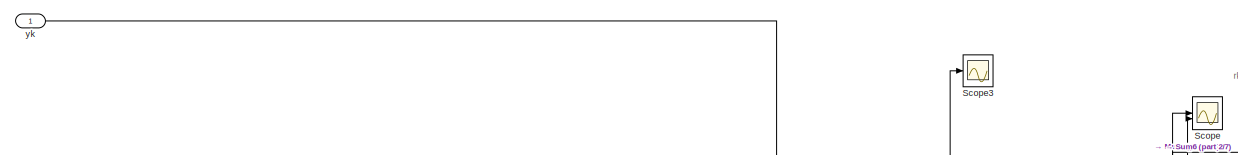
[diagram: Subsystem2 - part 1/7, top center region]
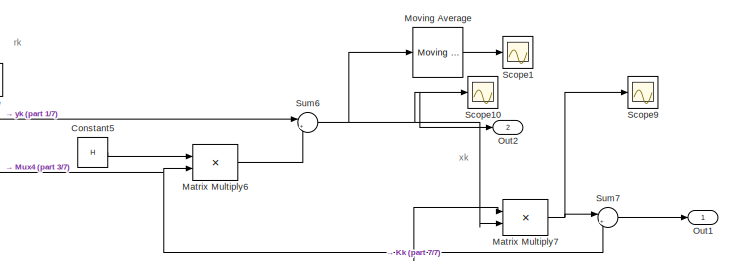
[diagram: Subsystem2 - part 2/7, top right region]
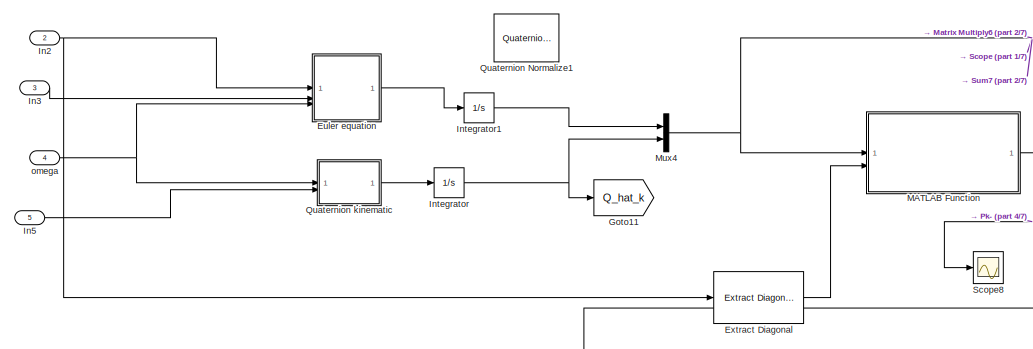
[diagram: Subsystem2 - part 3/7, top left region]
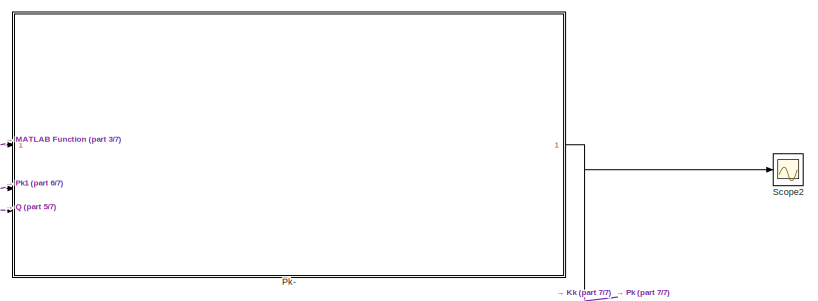
[diagram: Subsystem2 - part 4/7, central region]
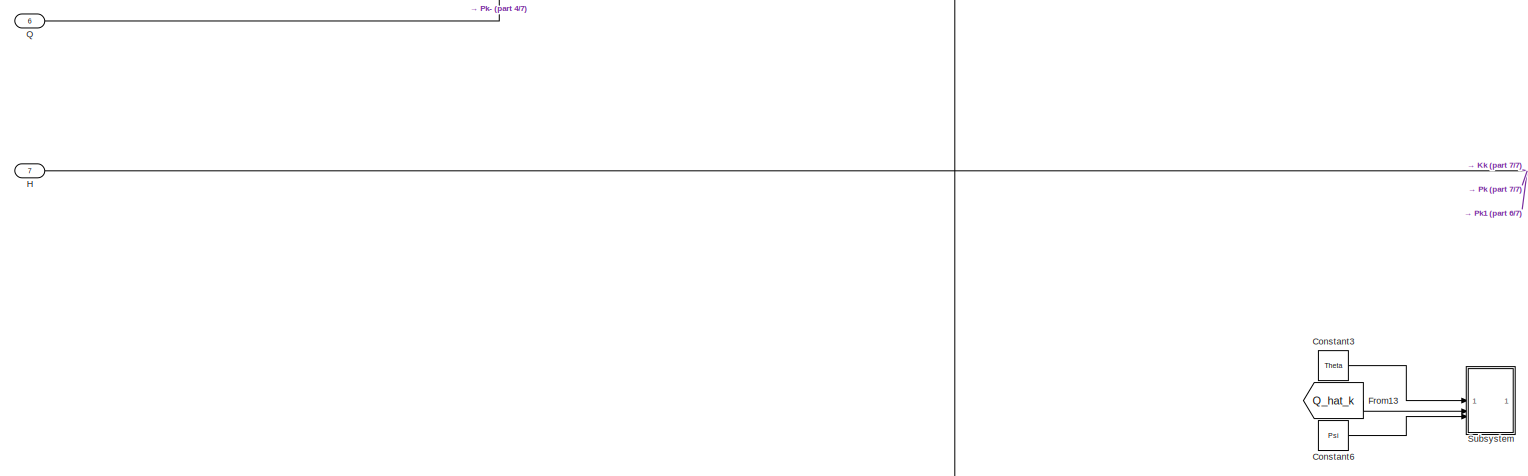
[diagram: Subsystem2 - part 5/7, middle left region]
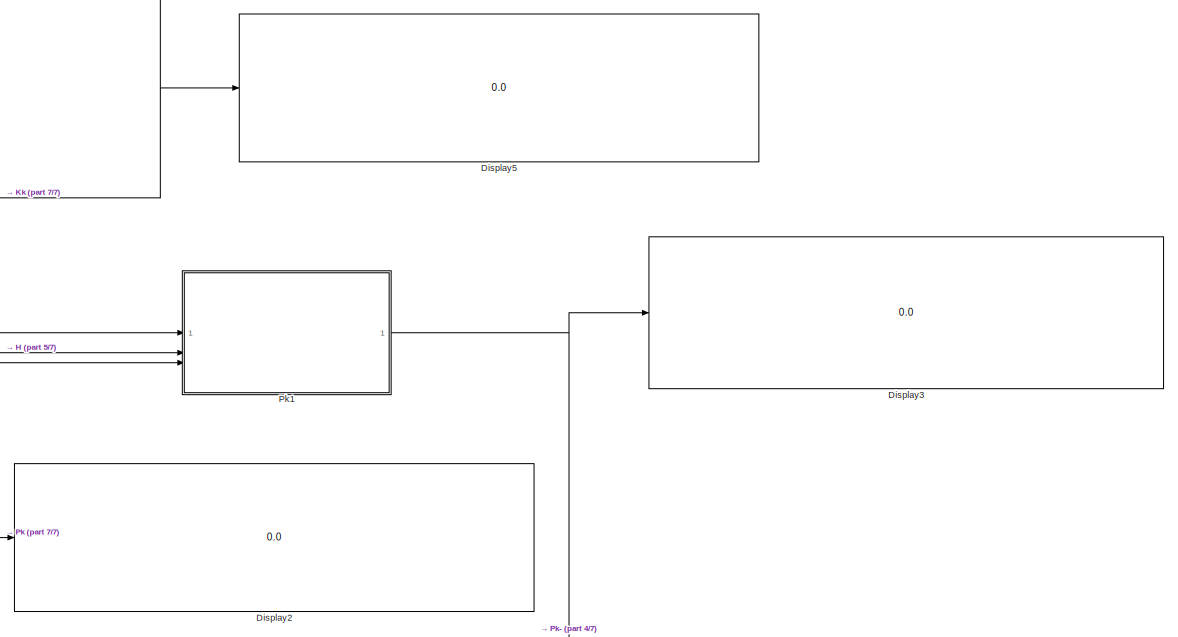
[diagram: Subsystem2 - part 6/7, bottom right region]
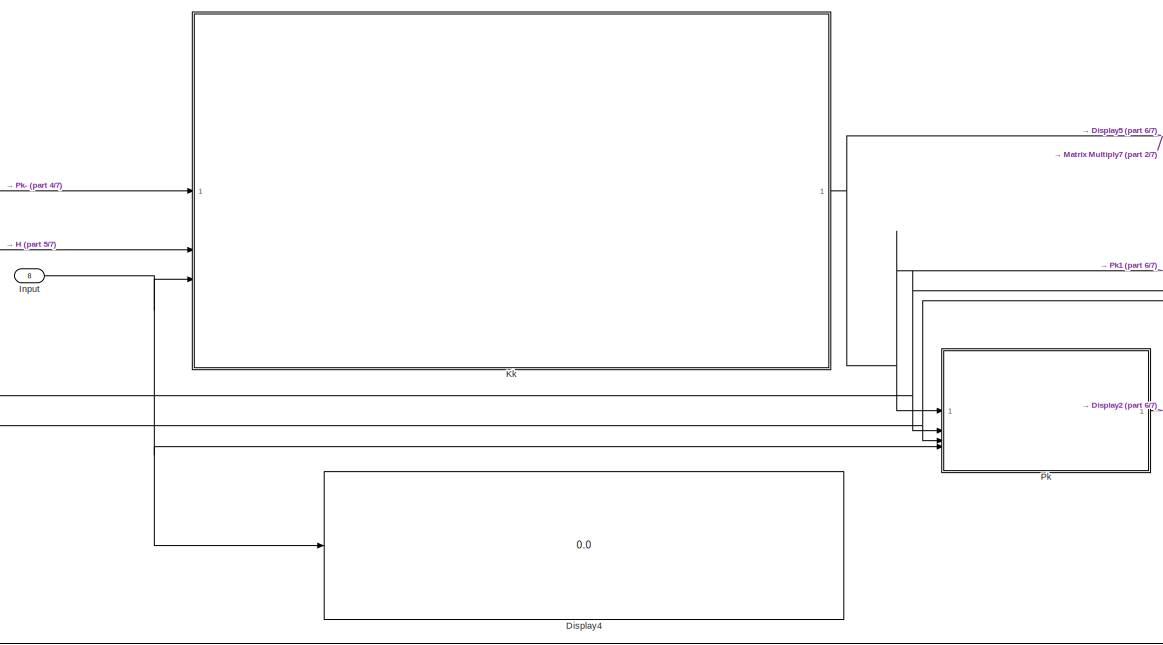
[diagram: Subsystem2 - part 7/7, bottom center region]
BLOCK [SubSystem] Subsystem2
BLOCK [Constant] Subsystem2/Constant3
  Commented = on
  Value = Theta
BLOCK [Constant] Subsystem2/Constant5
  Value = H
BLOCK [Constant] Subsystem2/Constant6
  Commented = on
  Value = Psi
BLOCK [Display] Subsystem2/Display2
  Commented = on
  Decimation = 1
  Format = short_e
BLOCK [Display] Subsystem2/Display3
  Decimation = 1
  Format = short_e
BLOCK [Display] Subsystem2/Display4
  Decimation = 1
  Format = short_e
BLOCK [Display] Subsystem2/Display5
  Decimation = 1
  Format = short_e
BLOCK [SubSystem] Subsystem2/Euler equation
BLOCK [Reference] Subsystem2/Euler equation/Cross Product  REF=matrix_library/Cross Product
  LibrarySourceBlock = simulink/Matrix\nOperations/Cross Product
  SourceBlock = matrix_library/Cross Product
  SourceType = CrossProduct
BLOCK [Inport] Subsystem2/Euler equation/In1
BLOCK [Inport] Subsystem2/Euler equation/In2
  Port = 2
BLOCK [Reference] Subsystem2/Euler equation/Invert 3x3 Matrix  REF=aerolibutil/Invert 
3x3 Matrix
  SourceBlock = aerolibutil/Invert \n3x3 Matrix
  SourceType = Invert 3x3 Matrix
BLOCK [Product] Subsystem2/Euler equation/Matrix Multiply10
  Multiplication = Matrix(*)
BLOCK [Product] Subsystem2/Euler equation/Matrix Multiply11
  Multiplication = Matrix(*)
BLOCK [Outport] Subsystem2/Euler equation/Out1
BLOCK [Sum] Subsystem2/Euler equation/Sum9
  Inputs = |+-
BLOCK [Inport] Subsystem2/Euler equation/a
  Port = 3
BLOCK [Reference] Subsystem2/Extract Diagonal  REF=matrix_library/Extract Diagonal
  LibrarySourceBlock = simulink/Matrix\nOperations/Extract Diagonal
  SourceBlock = matrix_library/Extract Diagonal
  SourceType = Extract Diagonal
BLOCK [From] Subsystem2/From13
  Commented = on
  GotoTag = Q_hat_k
BLOCK [Goto] Subsystem2/Goto11
  GotoTag = Q_hat_k
BLOCK [Inport] Subsystem2/H
  Port = 7
BLOCK [Inport] Subsystem2/In2
  Port = 2
BLOCK [Inport] Subsystem2/In3
  Port = 3
BLOCK [Inport] Subsystem2/In5
  Port = 5
BLOCK [Inport] Subsystem2/Input
  Port = 8
BLOCK [Integrator] Subsystem2/Integrator
  InitialCondition = [1;0;0;0]
BLOCK [Integrator] Subsystem2/Integrator1
  InitialCondition = [0;0;0]
BLOCK [SubSystem] Subsystem2/Kk
BLOCK [Inport] Subsystem2/Kk/H
  Port = 2
BLOCK [Outport] Subsystem2/Kk/Kk
BLOCK [Product] Subsystem2/Kk/Matrix Divide
  Inputs = */
  Multiplication = Matrix(*)
BLOCK [Product] Subsystem2/Kk/Matrix Multiply2
  Multiplication = Matrix(*)
BLOCK [Product] Subsystem2/Kk/Matrix Multiply3
  Multiplication = Matrix(*)
BLOCK [Product] Subsystem2/Kk/Matrix Multiply4
  Multiplication = Matrix(*)
BLOCK [Inport] Subsystem2/Kk/Pk-
BLOCK [Inport] Subsystem2/Kk/R
  Port = 3
BLOCK [Sum] Subsystem2/Kk/Sum5
  Inputs = |++
BLOCK [Math] Subsystem2/Kk/Transpose2
  Operator = transpose
BLOCK [Math] Subsystem2/Kk/Transpose4
  Operator = transpose
BLOCK [SubSystem] Subsystem2/MATLAB Function
  ErrorFcn = Stateflow.Translate.translate
  PermitHierarchicalResolution = ExplicitOnly
  SFBlockType = MATLAB Function
  TreatAsAtomicUnit = on
BLOCK [Demux] Subsystem2/MATLAB Function/ Demux 
  Outputs = 1
BLOCK [S-Function] Subsystem2/MATLAB Function/ SFunction 
  EnableBusSupport = on
  FunctionName = sf_sfun
  PortCounts = [2 2]
  SFcnIsStateOwnerBlock = off
  SFunctionDeploymentMode = off
  Tag = Stateflow S-Function 2
BLOCK [Terminator] Subsystem2/MATLAB Function/ Terminator 
BLOCK [Outport] Subsystem2/MATLAB Function/F
BLOCK [Inport] Subsystem2/MATLAB Function/I
  Port = 2
BLOCK [Inport] Subsystem2/MATLAB Function/x
BLOCK [Product] Subsystem2/Matrix Multiply6
  Multiplication = Matrix(*)
BLOCK [Product] Subsystem2/Matrix Multiply7
  Multiplication = Matrix(*)
BLOCK [Reference] Subsystem2/Moving Average  REF=dspstat3/Moving
Average
  SourceBlock = dspstat3/Moving\nAverage
  SourceType = dsp.simulink.MovingAverage
BLOCK [Mux] Subsystem2/Mux4
  DisplayOption = bar
  Inputs = 2
BLOCK [Outport] Subsystem2/Out1
BLOCK [Outport] Subsystem2/Out2
  Port = 2
BLOCK [SubSystem] Subsystem2/Pk
  Commented = on
BLOCK [SubSystem] Subsystem2/Pk-
BLOCK [Inport] Subsystem2/Pk-/Fk
BLOCK [Product] Subsystem2/Pk-/Matrix Multiply
BLOCK [Product] Subsystem2/Pk-/Matrix Multiply1
  Multiplication = Matrix(*)
BLOCK [Inport] Subsystem2/Pk-/Pk
  Port = 2
BLOCK [Outport] Subsystem2/Pk-/Pk-
BLOCK [Inport] Subsystem2/Pk-/Q
  Port = 3
BLOCK [Scope] Subsystem2/Pk-/Scope2
  Floating = off
  NumInputPorts = 1
  ScopeSpecificationString = Simulink.scopes.TimeScopeBlockCfg('CurrentConfiguration', extmgr.ConfigurationSet(extmgr.Configuration('Core','General UI',true),extmgr.Configuration('Core','Source UI',true),extmgr.Configuration('Sources','WiredSimulink',true,'DataLoggingVariableName','ScopeData2'),extmgr.Configuration('Visuals','Time Domain',true,'SerializedDisplays',{struct('MinYLimReal','-12.33467','MaxYLimReal','12.28106','YL...<+2383ch>
BLOCK [Sum] Subsystem2/Pk-/Sum4
  Inputs = |++
BLOCK [Math] Subsystem2/Pk-/Transpose
  Operator = transpose
BLOCK [UnitDelay] Subsystem2/Pk-/Unit Delay1
  HasFrameUpgradeWarning = on
  InitialCondition = P0
  SampleTime = ts
BLOCK [Constant] Subsystem2/Pk/Constant7
  Value = eye(7)
BLOCK [Display] Subsystem2/Pk/Display1
  Decimation = 1
  Format = short_e
BLOCK [Display] Subsystem2/Pk/Display2
  Decimation = 1
  Format = short_e
BLOCK [Display] Subsystem2/Pk/Display3
  Decimation = 1
  Format = short_e
BLOCK [Display] Subsystem2/Pk/Display4
  Decimation = 1
  Format = short_e
BLOCK [Inport] Subsystem2/Pk/H
  Port = 2
BLOCK [Inport] Subsystem2/Pk/Kk
BLOCK [Product] Subsystem2/Pk/Matrix Multiply1
  Multiplication = Matrix(*)
BLOCK [Product] Subsystem2/Pk/Matrix Multiply2
  Multiplication = Matrix(*)
BLOCK [Product] Subsystem2/Pk/Matrix Multiply3
  Multiplication = Matrix(*)
BLOCK [Product] Subsystem2/Pk/Matrix Multiply8
  Multiplication = Matrix(*)
BLOCK [Product] Subsystem2/Pk/Matrix Multiply9
  Multiplication = Matrix(*)
BLOCK [Outport] Subsystem2/Pk/Pk
BLOCK [Inport] Subsystem2/Pk/Pk-
  Port = 3
BLOCK [Inport] Subsystem2/Pk/R
  Port = 4
BLOCK [Sum] Subsystem2/Pk/Sum
  Inputs = |++
BLOCK [Sum] Subsystem2/Pk/Sum8
  Inputs = |+-
BLOCK [Math] Subsystem2/Pk/Transpose
  Operator = transpose
BLOCK [Math] Subsystem2/Pk/Transpose1
  Operator = transpose
BLOCK [SubSystem] Subsystem2/Pk1
BLOCK [Constant] Subsystem2/Pk1/Constant7
  Value = eye(7)
BLOCK [Inport] Subsystem2/Pk1/H
  Port = 2
BLOCK [Inport] Subsystem2/Pk1/Kk
BLOCK [Product] Subsystem2/Pk1/Matrix Multiply8
  Multiplication = Matrix(*)
BLOCK [Product] Subsystem2/Pk1/Matrix Multiply9
  Multiplication = Matrix(*)
BLOCK [Outport] Subsystem2/Pk1/Pk
BLOCK [Inport] Subsystem2/Pk1/Pk-
  Port = 3
BLOCK [Sum] Subsystem2/Pk1/Sum8
  Inputs = |+-
BLOCK [Inport] Subsystem2/Q
  Port = 6
BLOCK [Reference] Subsystem2/Quaternion Normalize1  REF=sharedutil/Quaternion
Normalize
  LibrarySourceBlock = aerolibutil/Quaternion\nNormalize
  SourceBlock = sharedutil/Quaternion\nNormalize
  SourceType = Quaternion Normalize
BLOCK [SubSystem] Subsystem2/Quaternion kinematic
BLOCK [Gain] Subsystem2/Quaternion kinematic/Gain5
  Gain = 0.5
BLOCK [Inport] Subsystem2/Quaternion kinematic/In2
  Port = 2
BLOCK [SubSystem] Subsystem2/Quaternion kinematic/MATLAB Function4
  ErrorFcn = Stateflow.Translate.translate
  PermitHierarchicalResolution = ExplicitOnly
  SFBlockType = MATLAB Function
  TreatAsAtomicUnit = on
BLOCK [Demux] Subsystem2/Quaternion kinematic/MATLAB Function4/ Demux 
  Outputs = 1
BLOCK [S-Function] Subsystem2/Quaternion kinematic/MATLAB Function4/ SFunction 
  EnableBusSupport = on
  FunctionName = sf_sfun
  PortCounts = [1 2]
  SFcnIsStateOwnerBlock = off
  SFunctionDeploymentMode = off
  Tag = Stateflow S-Function 3
BLOCK [Terminator] Subsystem2/Quaternion kinematic/MATLAB Function4/ Terminator 
BLOCK [Outport] Subsystem2/Quaternion kinematic/MATLAB Function4/Omega
BLOCK [Inport] Subsystem2/Quaternion kinematic/MATLAB Function4/omega
BLOCK [Product] Subsystem2/Quaternion kinematic/Matrix Multiply5
  Multiplication = Matrix(*)
BLOCK [Outport] Subsystem2/Quaternion kinematic/Out1
BLOCK [Inport] Subsystem2/Quaternion kinematic/omega
BLOCK [Scope] Subsystem2/Scope
  Floating = off
  NumInputPorts = 2
  ScopeSpecificationString = Simulink.scopes.TimeScopeBlockCfg('CurrentConfiguration', extmgr.ConfigurationSet(extmgr.Configuration('Core','General UI',true),extmgr.Configuration('Core','Source UI',true),extmgr.Configuration('Sources','WiredSimulink',true,'DataLoggingVariableName','ScopeData6'),extmgr.Configuration('Visuals','Time Domain',true,'SerializedDisplays',{struct('MinYLimReal','-1.29493','MaxYLimReal','1.61856','YLab...<+1812ch>
BLOCK [Scope] Subsystem2/Scope1
  Floating = off
  NumInputPorts = 1
  ScopeSpecificationString = Simulink.scopes.TimeScopeBlockCfg('CurrentConfiguration', extmgr.ConfigurationSet(extmgr.Configuration('Core','General UI',true),extmgr.Configuration('Core','Source UI',true),extmgr.Configuration('Sources','WiredSimulink',true,'DataLoggingVariableName','ScopeData5'),extmgr.Configuration('Visuals','Time Domain',true,'SerializedDisplays',{struct('MinYLimReal','-0.00726','MaxYLimReal','0.01213','YLab...<+1626ch>
BLOCK [Scope] Subsystem2/Scope10
  Floating = off
  NumInputPorts = 1
  ScopeSpecificationString = Simulink.scopes.TimeScopeBlockCfg('CurrentConfiguration', extmgr.ConfigurationSet(extmgr.Configuration('Core','General UI',true),extmgr.Configuration('Core','Source UI',true),extmgr.Configuration('Sources','WiredSimulink',true,'DataLoggingVariableName','ScopeData7'),extmgr.Configuration('Visuals','Time Domain',true,'SerializedDisplays',{struct('MinYLimReal','-0.01246','MaxYLimReal','0.01266','YLab...<+1555ch>
BLOCK [Scope] Subsystem2/Scope2
  Floating = off
  NumInputPorts = 1
  ScopeSpecificationString = Simulink.scopes.TimeScopeBlockCfg('CurrentConfiguration', extmgr.ConfigurationSet(extmgr.Configuration('Core','General UI',true),extmgr.Configuration('Core','Source UI',true),extmgr.Configuration('Sources','WiredSimulink',true,'DataLoggingVariableName','ScopeData4'),extmgr.Configuration('Visuals','Time Domain',true,'SerializedDisplays',{struct('MinYLimReal','-0.00117','MaxYLimReal','0.00251','YLab...<+2950ch>
BLOCK [Scope] Subsystem2/Scope3
  Floating = off
  NumInputPorts = 1
  ScopeSpecificationString = Simulink.scopes.TimeScopeBlockCfg('CurrentConfiguration', extmgr.ConfigurationSet(extmgr.Configuration('Core','General UI',true),extmgr.Configuration('Core','Source UI',true),extmgr.Configuration('Sources','WiredSimulink',true,'DataLoggingVariableName','ScopeData7'),extmgr.Configuration('Visuals','Time Domain',true,'SerializedDisplays',{struct('MinYLimReal','-1.29493','MaxYLimReal','1.61856','YLab...<+1554ch>
BLOCK [Scope] Subsystem2/Scope8
  Floating = off
  NumInputPorts = 1
  ScopeSpecificationString = Simulink.scopes.TimeScopeBlockCfg('CurrentConfiguration', extmgr.ConfigurationSet(extmgr.Configuration('Core','General UI',true),extmgr.Configuration('Core','Source UI',true),extmgr.Configuration('Sources','WiredSimulink',true,'DataLoggingVariableName','ScopeData5'),extmgr.Configuration('Visuals','Time Domain',true,'SerializedDisplays',{struct('MinYLimReal','-12.79013','MaxYLimReal','12.73453','YL...<+2383ch>
BLOCK [Scope] Subsystem2/Scope9
  Floating = off
  NumInputPorts = 1
  ScopeSpecificationString = Simulink.scopes.TimeScopeBlockCfg('CurrentConfiguration', extmgr.ConfigurationSet(extmgr.Configuration('Core','General UI',true),extmgr.Configuration('Core','Source UI',true),extmgr.Configuration('Sources','WiredSimulink',true,'DataLoggingVariableName','ScopeData6'),extmgr.Configuration('Visuals','Time Domain',true,'SerializedDisplays',{struct('MinYLimReal','-2.99101','MaxYLimReal','0.38494','YLab...<+1611ch>
BLOCK [SubSystem] Subsystem2/Subsystem
  Commented = on
BLOCK [Display] Subsystem2/Subsystem/Display2
  Decimation = 1
BLOCK [SubSystem] Subsystem2/Subsystem/MATLAB Function1
  ErrorFcn = Stateflow.Translate.translate
  PermitHierarchicalResolution = ExplicitOnly
  SFBlockType = MATLAB Function
  TreatAsAtomicUnit = on
BLOCK [Demux] Subsystem2/Subsystem/MATLAB Function1/ Demux 
  Outputs = 1
BLOCK [S-Function] Subsystem2/Subsystem/MATLAB Function1/ SFunction 
  EnableBusSupport = off
  FunctionName = sf_sfun
  PortCounts = [1 2]
  SFcnIsStateOwnerBlock = off
  SFunctionDeploymentMode = off
  Tag = Stateflow S-Function 1
BLOCK [Terminator] Subsystem2/Subsystem/MATLAB Function1/ Terminator 
BLOCK [Outport] Subsystem2/Subsystem/MATLAB Function1/J_theta
BLOCK [Inport] Subsystem2/Subsystem/MATLAB Function1/q
BLOCK [SubSystem] Subsystem2/Subsystem/MATLAB Function2
  ErrorFcn = Stateflow.Translate.translate
  PermitHierarchicalResolution = ExplicitOnly
  SFBlockType = MATLAB Function
  TreatAsAtomicUnit = on
BLOCK [Demux] Subsystem2/Subsystem/MATLAB Function2/ Demux 
  Outputs = 1
BLOCK [S-Function] Subsystem2/Subsystem/MATLAB Function2/ SFunction 
  EnableBusSupport = off
  FunctionName = sf_sfun
  PortCounts = [2 2]
  SFcnIsStateOwnerBlock = off
  SFunctionDeploymentMode = off
  Tag = Stateflow S-Function 4
BLOCK [Terminator] Subsystem2/Subsystem/MATLAB Function2/ Terminator 
BLOCK [Inport] Subsystem2/Subsystem/MATLAB Function2/Csi
  Port = 2
BLOCK [Outport] Subsystem2/Subsystem/MATLAB Function2/R
BLOCK [Inport] Subsystem2/Subsystem/MATLAB Function2/Theta
BLOCK [Product] Subsystem2/Subsystem/Matrix Multiply10
  Multiplication = Matrix(*)
BLOCK [Product] Subsystem2/Subsystem/Matrix Multiply5
  Multiplication = Matrix(*)
BLOCK [Inport] Subsystem2/Subsystem/Psi
  Port = 3
BLOCK [Outport] Subsystem2/Subsystem/R
BLOCK [Inport] Subsystem2/Subsystem/Theta
BLOCK [Math] Subsystem2/Subsystem/Transpose1
  Operator = transpose
BLOCK [Inport] Subsystem2/Subsystem/q
  Port = 2
BLOCK [Sum] Subsystem2/Sum6
  Inputs = |+-
BLOCK [Sum] Subsystem2/Sum7
  Inputs = |++
BLOCK [Inport] Subsystem2/omega
  Port = 4
BLOCK [Inport] Subsystem2/yk
BLOCK [SubSystem] Subsystem3
  PortSchema = {"entries":[{"content":{"sides":[{"content":{"connectorIds":["In1","In2","In3"]},"type":"ConnectorPlacement.EquallySpacedRectSide","uuid":"151ae62a-bc9e-4ea1-8f08-a99bd37fe748"},{"content":{"connectorIds":["Out1"],"side":"RIGHT"},"type":"ConnectorPlacement.EquallySpacedRectSide","uuid":"8be97c83-b138-4842-9a48-42e9baf698fa"},{"content":{"connectorIds":["In4"],"side":"TOP"},"type":"ConnectorPlaceme...<+257ch>
BLOCK [Inport] Subsystem3/F
BLOCK [Inport] Subsystem3/In4
  Port = 4
BLOCK [Memory] Subsystem3/Memory12
  NameLocation = top
BLOCK [Scope] Subsystem3/Scope28
  Floating = off
  NumInputPorts = 1
  ScopeSpecificationString = Simulink.scopes.TimeScopeBlockCfg('CurrentConfiguration', extmgr.ConfigurationSet(extmgr.Configuration('Core','General UI',true),extmgr.Configuration('Core','Source UI',true),extmgr.Configuration('Sources','WiredSimulink',true,'DataLoggingVariableName','ScopeData3'),extmgr.Configuration('Visuals','Time Domain',true,'SerializedDisplays',{struct('MinYLimReal','-0.03057','MaxYLimReal','0.27497','YLab...<+1508ch>
BLOCK [Scope] Subsystem3/Scope29
  Floating = off
  NumInputPorts = 2
  ScopeSpecificationString = Simulink.scopes.TimeScopeBlockCfg('CurrentConfiguration', extmgr.ConfigurationSet(extmgr.Configuration('Core','General UI',true),extmgr.Configuration('Core','Source UI',true),extmgr.Configuration('Sources','WiredSimulink',true,'DataLoggingVariableName','ScopeData4'),extmgr.Configuration('Visuals','Time Domain',true,'SerializedDisplays',{struct('MinYLimReal','0.24442565','MaxYLimReal','0.24442573',...<+2076ch>
BLOCK [Switch] Subsystem3/Switch4
  Criteria = u2 > Threshold
  InputSameDT = off
  SaturateOnIntegerOverflow = off
BLOCK [Inport] Subsystem3/T
  Port = 3
BLOCK [SubSystem] Subsystem3/Trigger Latch2
BLOCK [Inport] Subsystem3/Trigger Latch2/F
  Port = 3
BLOCK [Logic] Subsystem3/Trigger Latch2/Logical Operator
  AllPortsSameDT = off
  Operator = OR
  OutDataTypeStr = boolean
BLOCK [Memory] Subsystem3/Trigger Latch2/Memory14
  NameLocation = top
BLOCK [Scope] Subsystem3/Trigger Latch2/Scope
  Floating = off
  NumInputPorts = 1
  ScopeSpecificationString = Simulink.scopes.TimeScopeBlockCfg('CurrentConfiguration', extmgr.ConfigurationSet(extmgr.Configuration('Core','General UI',true),extmgr.Configuration('Core','Source UI',true),extmgr.Configuration('Sources','WiredSimulink',true,'DataLoggingVariableName','ScopeData5'),extmgr.Configuration('Visuals','Time Domain',true,'SerializedDisplays',{struct('MinYLimReal','-0.125','MaxYLimReal','1.125','YLabelRe...<+1363ch>
BLOCK [Switch] Subsystem3/Trigger Latch2/Switch3
  Criteria = u2 > Threshold
  InputSameDT = off
  SaturateOnIntegerOverflow = off
BLOCK [Inport] Subsystem3/Trigger Latch2/T
BLOCK [Inport] Subsystem3/Trigger Latch2/Trigger
  Port = 2
BLOCK [Outport] Subsystem3/Trigger Latch2/y
BLOCK [Inport] Subsystem3/b
  Port = 2
BLOCK [Outport] Subsystem3/y
BLOCK [SubSystem] Subsystem4
BLOCK [Inport] Subsystem4/F
BLOCK [Memory] Subsystem4/Memory12
  NameLocation = top
BLOCK [Scope] Subsystem4/Scope28
  Floating = off
  NumInputPorts = 1
  ScopeSpecificationString = Simulink.scopes.TimeScopeBlockCfg('CurrentConfiguration', extmgr.ConfigurationSet(extmgr.Configuration('Core','General UI',true),extmgr.Configuration('Core','Source UI',true),extmgr.Configuration('Sources','WiredSimulink',true,'DataLoggingVariableName','ScopeData3'),extmgr.Configuration('Visuals','Time Domain',true,'SerializedDisplays',{struct('MinYLimReal','-0.03057','MaxYLimReal','0.27497','YLab...<+1508ch>
BLOCK [Scope] Subsystem4/Scope29
  Floating = off
  NumInputPorts = 2
  ScopeSpecificationString = Simulink.scopes.TimeScopeBlockCfg('CurrentConfiguration', extmgr.ConfigurationSet(extmgr.Configuration('Core','General UI',true),extmgr.Configuration('Core','Source UI',true),extmgr.Configuration('Sources','WiredSimulink',true,'DataLoggingVariableName','ScopeData4'),extmgr.Configuration('Visuals','Time Domain',true,'SerializedDisplays',{struct('MinYLimReal','0.24442565','MaxYLimReal','0.24442573',...<+2076ch>
BLOCK [Switch] Subsystem4/Switch4
  Criteria = u2 > Threshold
  InputSameDT = off
  SaturateOnIntegerOverflow = off
BLOCK [Inport] Subsystem4/T
  Port = 3
BLOCK [SubSystem] Subsystem4/Trigger Latch2
BLOCK [Inport] Subsystem4/Trigger Latch2/F
  Port = 3
BLOCK [Logic] Subsystem4/Trigger Latch2/Logical Operator
  AllPortsSameDT = off
  Operator = OR
  OutDataTypeStr = boolean
BLOCK [Memory] Subsystem4/Trigger Latch2/Memory14
  NameLocation = top
BLOCK [Scope] Subsystem4/Trigger Latch2/Scope
  Floating = off
  NumInputPorts = 1
  ScopeSpecificationString = Simulink.scopes.TimeScopeBlockCfg('CurrentConfiguration', extmgr.ConfigurationSet(extmgr.Configuration('Core','General UI',true),extmgr.Configuration('Core','Source UI',true),extmgr.Configuration('Sources','WiredSimulink',true,'DataLoggingVariableName','ScopeData5'),extmgr.Configuration('Visuals','Time Domain',true,'SerializedDisplays',{struct('MinYLimReal','-0.125','MaxYLimReal','1.125','YLabelRe...<+1363ch>
BLOCK [Switch] Subsystem4/Trigger Latch2/Switch3
  Criteria = u2 > Threshold
  InputSameDT = off
  SaturateOnIntegerOverflow = off
BLOCK [Inport] Subsystem4/Trigger Latch2/T
BLOCK [Inport] Subsystem4/Trigger Latch2/Trigger
  Port = 2
BLOCK [Outport] Subsystem4/Trigger Latch2/y
BLOCK [Inport] Subsystem4/b
  Port = 2
BLOCK [Outport] Subsystem4/y
BLOCK [SubSystem] Subsystem5
BLOCK [Demux] Subsystem5/Demux1
  Outputs = 7
BLOCK [Gain] Subsystem5/Gain
  Gain = ts
BLOCK [Inport] Subsystem5/In1
BLOCK [Reference] Subsystem5/Moving Variance  REF=dspstat3/Moving
Variance
  SourceBlock = dspstat3/Moving\nVariance
  SourceType = dsp.simulink.MovingVariance
BLOCK [Reference] Subsystem5/Moving Variance1  REF=dspstat3/Moving
Variance
  SourceBlock = dspstat3/Moving\nVariance
  SourceType = dsp.simulink.MovingVariance
BLOCK [Reference] Subsystem5/Moving Variance2  REF=dspstat3/Moving
Variance
  SourceBlock = dspstat3/Moving\nVariance
  SourceType = dsp.simulink.MovingVariance
BLOCK [Reference] Subsystem5/Moving Variance3  REF=dspstat3/Moving
Variance
  SourceBlock = dspstat3/Moving\nVariance
  SourceType = dsp.simulink.MovingVariance
BLOCK [Reference] Subsystem5/Moving Variance4  REF=dspstat3/Moving
Variance
  SourceBlock = dspstat3/Moving\nVariance
  SourceType = dsp.simulink.MovingVariance
BLOCK [Reference] Subsystem5/Moving Variance5  REF=dspstat3/Moving
Variance
  SourceBlock = dspstat3/Moving\nVariance
  SourceType = dsp.simulink.MovingVariance
BLOCK [Reference] Subsystem5/Moving Variance6  REF=dspstat3/Moving
Variance
  SourceBlock = dspstat3/Moving\nVariance
  SourceType = dsp.simulink.MovingVariance
BLOCK [Mux] Subsystem5/Mux3
  DisplayOption = bar
  Inputs = 7
BLOCK [Outport] Subsystem5/Out1
BLOCK [SubSystem] Subsystem6
BLOCK [Product] Subsystem6/Divide
  Inputs = */
BLOCK [Inport] Subsystem6/In1
  Port = 2
BLOCK [Outport] Subsystem6/Out1
BLOCK [Sum] Subsystem6/Sum1
  Inputs = |+-
BLOCK [Inport] Subsystem6/W_E
BLOCK [SubSystem] Subsystem7
BLOCK [Demux] Subsystem7/Demux1
  Outputs = 7
BLOCK [Gain] Subsystem7/Gain
  Gain = 100*ts
BLOCK [Inport] Subsystem7/In1
BLOCK [Reference] Subsystem7/Moving Variance  REF=dspstat3/Moving
Variance
  SourceBlock = dspstat3/Moving\nVariance
  SourceType = dsp.simulink.MovingVariance
BLOCK [Reference] Subsystem7/Moving Variance1  REF=dspstat3/Moving
Variance
  SourceBlock = dspstat3/Moving\nVariance
  SourceType = dsp.simulink.MovingVariance
BLOCK [Reference] Subsystem7/Moving Variance2  REF=dspstat3/Moving
Variance
  SourceBlock = dspstat3/Moving\nVariance
  SourceType = dsp.simulink.MovingVariance
BLOCK [Reference] Subsystem7/Moving Variance3  REF=dspstat3/Moving
Variance
  SourceBlock = dspstat3/Moving\nVariance
  SourceType = dsp.simulink.MovingVariance
BLOCK [Reference] Subsystem7/Moving Variance4  REF=dspstat3/Moving
Variance
  SourceBlock = dspstat3/Moving\nVariance
  SourceType = dsp.simulink.MovingVariance
BLOCK [Reference] Subsystem7/Moving Variance5  REF=dspstat3/Moving
Variance
  SourceBlock = dspstat3/Moving\nVariance
  SourceType = dsp.simulink.MovingVariance
BLOCK [Reference] Subsystem7/Moving Variance6  REF=dspstat3/Moving
Variance
  SourceBlock = dspstat3/Moving\nVariance
  SourceType = dsp.simulink.MovingVariance
BLOCK [Mux] Subsystem7/Mux3
  DisplayOption = bar
  Inputs = 7
BLOCK [Outport] Subsystem7/Out1
BLOCK [Sum] Sum
  Inputs = |+-
BLOCK [Sum] Sum1
  Inputs = |++
BLOCK [Sum] Sum2
  Inputs = |++
BLOCK [ManualSwitch] Switch IV method
  CurrentSetting = 0
BLOCK [Switch] Switch4
  Criteria = u2 > Threshold
  InputSameDT = off
  SaturateOnIntegerOverflow = off
BLOCK [Reference] Transform  REF=sm_lib/Frames and
Transforms/Rigid
Transform
  SourceBlock = sm_lib/Frames and\nTransforms/Rigid\nTransform
  SourceType = Rigid\nTransform
BLOCK [UnitDelay] Unit Delay
  HasFrameUpgradeWarning = on
  SampleTime = -1
BLOCK [UnitDelay] Unit Delay1
  HasFrameUpgradeWarning = on
  InitialCondition = J0
  SampleTime = -1
BLOCK [UnitDelay] Unit Delay2
  HasFrameUpgradeWarning = on
  SampleTime = -1
BLOCK [UnitDelay] Unit Delay3
  HasFrameUpgradeWarning = on
  InitialCondition = J0
  SampleTime = -1
BLOCK [UnitDelay] Unit Delay4
  HasFrameUpgradeWarning = on
  SampleTime = -1
BLOCK [UnitDelay] Unit Delay5
  HasFrameUpgradeWarning = on
  InitialCondition = J0
  SampleTime = -1
BLOCK [SubSystem] W_measurment error
BLOCK [Integrator] W_measurment error/Integrator1
  Commented = on
BLOCK [Integrator] W_measurment error/Integrator2
  Commented = on
BLOCK [Integrator] W_measurment error/Integrator3
  Commented = on
BLOCK [Mux] W_measurment error/Mux
  DisplayOption = bar
  Inputs = 3
BLOCK [Mux] W_measurment error/Mux1
  Commented = on
  DisplayOption = bar
  Inputs = 3
BLOCK [Outport] W_measurment error/Out1
BLOCK [Sum] W_measurment error/Sum1
  Inputs = |++
BLOCK [Reference] W_measurment error/W_n  REF=simulink/Sources/Band-Limited
White Noise
  SourceBlock = simulink/Sources/Band-Limited\nWhite Noise
  SourceType = Band-Limited White Noise.
BLOCK [Reference] W_measurment error/W_n1  REF=simulink/Sources/Band-Limited
White Noise
  SourceBlock = simulink/Sources/Band-Limited\nWhite Noise
  SourceType = Band-Limited White Noise.
BLOCK [Reference] W_measurment error/W_n2  REF=simulink/Sources/Band-Limited
White Noise
  SourceBlock = simulink/Sources/Band-Limited\nWhite Noise
  SourceType = Band-Limited White Noise.
BLOCK [Reference] W_measurment error/W_w  REF=simulink/Sources/Band-Limited
White Noise
  Commented = on
  SourceBlock = simulink/Sources/Band-Limited\nWhite Noise
  SourceType = Band-Limited White Noise.
BLOCK [Reference] W_measurment error/W_w1  REF=simulink/Sources/Band-Limited
White Noise
  Commented = on
  SourceBlock = simulink/Sources/Band-Limited\nWhite Noise
  SourceType = Band-Limited White Noise.
BLOCK [Reference] W_measurment error/W_w2  REF=simulink/Sources/Band-Limited
White Noise
  Commented = on
  SourceBlock = simulink/Sources/Band-Limited\nWhite Noise
  SourceType = Band-Limited White Noise.
BLOCK [Reference] World  REF=sm_lib/Frames and
Transforms/World Frame
  SourceBlock = sm_lib/Frames and\nTransforms/World Frame
  SourceType = World Frame
BLOCK [ZeroOrderHold] Zero-Order Hold
  SampleTime = ts
BLOCK [ZeroOrderHold] Zero-Order Hold1
  SampleTime = ts
BLOCK [ZeroOrderHold] Zero-Order Hold2
  SampleTime = ts
BLOCK [SubSystem] compare average to a constant
BLOCK [Reference] compare average to a constant/Compare To Constant  REF=simulink/Logic and Bit
Operations/Compare
To Constant
  SourceBlock = simulink/Logic and Bit\nOperations/Compare\nTo Constant
  SourceType = Compare To Constant
BLOCK [Constant] compare average to a constant/Constant
  Value = NaN
BLOCK [Inport] compare average to a constant/In1
BLOCK [Reference] compare average to a constant/Moving Average  REF=dspstat3/Moving
Average
  SourceBlock = dspstat3/Moving\nAverage
  SourceType = dsp.simulink.MovingAverage
BLOCK [Outport] compare average to a constant/Out1
BLOCK [Switch] compare average to a constant/Switch
  Criteria = u2 > Threshold
  InputSameDT = off
  SaturateOnIntegerOverflow = off
BLOCK [SubSystem] compare average to a constant/norm
BLOCK [Inport] compare average to a constant/norm/In1
BLOCK [Product] compare average to a constant/norm/Product
  Multiplication = Matrix(*)
BLOCK [Sqrt] compare average to a constant/norm/Sqrt
BLOCK [Math] compare average to a constant/norm/Transpose
  Operator = transpose
BLOCK [Outport] compare average to a constant/norm/W
BLOCK [Scope] mismatch expected-effective
  Floating = off
  NumInputPorts = 1
  ScopeSpecificationString = Simulink.scopes.TimeScopeBlockCfg('CurrentConfiguration', extmgr.ConfigurationSet(extmgr.Configuration('Core','General UI',true),extmgr.Configuration('Core','Source UI',true),extmgr.Configuration('Sources','WiredSimulink',true,'DataLoggingVariableName','ScopeData7'),extmgr.Configuration('Visuals','Time Domain',true,'SerializedDisplays',{struct('MinYLimReal','-1.19578','MaxYLimReal','1.24398','YLab...<+1518ch>
BLOCK [Scope] mismatch required-effective
  Floating = off
  NumInputPorts = 2
  ScopeSpecificationString = Simulink.scopes.TimeScopeBlockCfg('CurrentConfiguration', extmgr.ConfigurationSet(extmgr.Configuration('Core','General UI',true),extmgr.Configuration('Core','Source UI',true),extmgr.Configuration('Sources','WiredSimulink',true,'DataLoggingVariableName','ScopeData2'),extmgr.Configuration('Visuals','Time Domain',true,'SerializedDisplays',{struct('MinYLimReal','-1.34805','MaxYLimReal','11.25978','YLa...<+1662ch>
BLOCK [SubSystem] norm + moving average
BLOCK [Inport] norm + moving average/In1
BLOCK [Reference] norm + moving average/Moving Average  REF=dspstat3/Moving
Average
  SourceBlock = dspstat3/Moving\nAverage
  SourceType = dsp.simulink.MovingAverage
BLOCK [Outport] norm + moving average/Out1
BLOCK [SubSystem] norm + moving average/norm
BLOCK [Inport] norm + moving average/norm/In1
BLOCK [Product] norm + moving average/norm/Product
  Multiplication = Matrix(*)
BLOCK [Sqrt] norm + moving average/norm/Sqrt
BLOCK [Math] norm + moving average/norm/Transpose
  Operator = transpose
BLOCK [Outport] norm + moving average/norm/W
BLOCK [SubSystem] norm + moving average1
BLOCK [Inport] norm + moving average1/In1
BLOCK [Reference] norm + moving average1/Moving Average  REF=dspstat3/Moving
Average
  SourceBlock = dspstat3/Moving\nAverage
  SourceType = dsp.simulink.MovingAverage
BLOCK [Outport] norm + moving average1/Out1
BLOCK [SubSystem] norm + moving average1/norm
BLOCK [Inport] norm + moving average1/norm/In1
BLOCK [Product] norm + moving average1/norm/Product
  Multiplication = Matrix(*)
BLOCK [Sqrt] norm + moving average1/norm/Sqrt
BLOCK [Math] norm + moving average1/norm/Transpose
  Operator = transpose
BLOCK [Outport] norm + moving average1/norm/W
BLOCK [SubSystem] norm + moving average2
BLOCK [Inport] norm + moving average2/In1
BLOCK [Reference] norm + moving average2/Moving Average  REF=dspstat3/Moving
Average
  SourceBlock = dspstat3/Moving\nAverage
  SourceType = dsp.simulink.MovingAverage
BLOCK [Outport] norm + moving average2/Out1
BLOCK [SubSystem] norm + moving average2/norm
BLOCK [Inport] norm + moving average2/norm/In1
BLOCK [Product] norm + moving average2/norm/Product
  Multiplication = Matrix(*)
BLOCK [Sqrt] norm + moving average2/norm/Sqrt
BLOCK [Math] norm + moving average2/norm/Transpose
  Operator = transpose
BLOCK [Outport] norm + moving average2/norm/W
BLOCK [SubSystem] norm + moving average3
BLOCK [Inport] norm + moving average3/In1
BLOCK [Reference] norm + moving average3/Moving Average  REF=dspstat3/Moving
Average
  SourceBlock = dspstat3/Moving\nAverage
  SourceType = dsp.simulink.MovingAverage
BLOCK [Outport] norm + moving average3/Out1
BLOCK [SubSystem] norm + moving average3/norm
BLOCK [Inport] norm + moving average3/norm/In1
BLOCK [Product] norm + moving average3/norm/Product
  Multiplication = Matrix(*)
BLOCK [Sqrt] norm + moving average3/norm/Sqrt
BLOCK [Math] norm + moving average3/norm/Transpose
  Operator = transpose
BLOCK [Outport] norm + moving average3/norm/W
BLOCK [SubSystem] t
BLOCK [Reference] t/Brick Solid1  REF=sm_lib/Body Elements/Brick Solid
  SourceBlock = sm_lib/Body Elements/Brick Solid
  SourceType = Brick Solid
BLOCK [PMIOPort] t/F
  Port = 2
  Side = Right
BLOCK [PMIOPort] t/F1
  Side = Left
BLOCK [Reference] t/ReferenceFrame  REF=sm_lib/Frames and
Transforms/Reference
Frame
  SourceBlock = sm_lib/Frames and\nTransforms/Reference\nFrame
  SourceType = Reference\nFrame
BLOCK [Reference] t/Spherical Solid  REF=sm_lib/Body Elements/Spherical Solid
  SourceBlock = sm_lib/Body Elements/Spherical Solid
  SourceType = Spherical Solid
BLOCK [Reference] t/Transform  REF=sm_lib/Frames and
Transforms/Rigid
Transform
  SourceBlock = sm_lib/Frames and\nTransforms/Rigid\nTransform
  SourceType = Rigid\nTransform
BLOCK [Outport] x_hat
BLOCK [Outport] x_true
  Port = 2
ANNOTATION (root): Inertia estimation
ANNOTATION (root): PD controller
ANNOTATION (root): Reference generator
ANNOTATION (root): State machine
ANNOTATION Subsystem2: rk
ANNOTATION Subsystem2: xk
LINE Abs1:1 -> Gain2:1
LINE Abs2:1 -> Gain3:1
LINE Abs:1 -> Gain1:1
LINE Auxiliary model/Auxiliary model/Cross Product:1 -> Auxiliary model/Auxiliary model/Sum1:2
LINE Auxiliary model/Auxiliary model/Gain5:1 -> Auxiliary model/Auxiliary model/Integrator:1
LINE Auxiliary model/Auxiliary model/Input:1 -> Auxiliary model/Auxiliary model/Sum1:1
NET Auxiliary model/Auxiliary model/Integrator1:1 -> Auxiliary model/Auxiliary model/Cross Product:1, Auxiliary model/Auxiliary model/MATLAB Function4:1, Auxiliary model/Auxiliary model/Matrix Multiply4:2, Auxiliary model/Auxiliary model/W_E:1
NET Auxiliary model/Auxiliary model/Integrator:1 -> Auxiliary model/Auxiliary model/Matrix Multiply2:2, Auxiliary model/Auxiliary model/Q_E:1
LINE Auxiliary model/Auxiliary model/Invert 3x3 Matrix:1 -> Auxiliary model/Auxiliary model/Matrix Multiply3:1
LINE Auxiliary model/Auxiliary model/MATLAB Function4:1 -> Auxiliary model/Auxiliary model/Matrix Multiply2:1
LINE Auxiliary model/Auxiliary model/Matrix Multiply2:1 -> Auxiliary model/Auxiliary model/Gain5:1
NET Auxiliary model/Auxiliary model/Matrix Multiply3:1 -> Auxiliary model/Auxiliary model/Integrator1:1, Auxiliary model/Auxiliary model/a_E:1
LINE Auxiliary model/Auxiliary model/Matrix Multiply4:1 -> Auxiliary model/Auxiliary model/Cross Product:2
NET Auxiliary model/Auxiliary model/Matrix:1 -> Auxiliary model/Auxiliary model/Invert 3x3 Matrix:1, Auxiliary model/Auxiliary model/Matrix Multiply4:1
LINE Auxiliary model/Auxiliary model/Sum1:1 -> Auxiliary model/Auxiliary model/Matrix Multiply3:2
NET Auxiliary model/Auxiliary model:1 -> Auxiliary model/PD controller1:5, Auxiliary model/Subsystem:1, Auxiliary model/W_E:1
NET Auxiliary model/Auxiliary model:2 -> Auxiliary model/Gravity torque:2, Auxiliary model/PD controller1:4, Auxiliary model/Q_E:1
LINE Auxiliary model/Auxiliary model:3 -> Auxiliary model/a_E:1
LINE Auxiliary model/Constant33:1 -> Auxiliary model/Gravity torque:3
LINE Auxiliary model/Gravity torque/Cross Product:1 -> Auxiliary model/Gravity torque/Product:1
LINE Auxiliary model/Gravity torque/Product:1 -> Auxiliary model/Gravity torque/Out1:1
LINE Auxiliary model/Gravity torque/Quaternion Rotation:1 -> Auxiliary model/Gravity torque/Cross Product:2
LINE Auxiliary model/Gravity torque/com:1 -> Auxiliary model/Gravity torque/Cross Product:1
LINE Auxiliary model/Gravity torque/mass:1 -> Auxiliary model/Gravity torque/Product:2
LINE Auxiliary model/Gravity torque/q:1 -> Auxiliary model/Gravity torque/Quaternion Rotation:1
LINE Auxiliary model/Gravity torque/vec:1 -> Auxiliary model/Gravity torque/Quaternion Rotation:2
LINE Auxiliary model/Gravity torque:1 -> Auxiliary model/Sum:2
LINE Auxiliary model/Input1:1 -> Auxiliary model/PD controller1:7
LINE Auxiliary model/Input:1 -> Auxiliary model/PD controller1:3
NET Auxiliary model/J_vec:1 -> Auxiliary model/Auxiliary model:1, Auxiliary model/PD controller1:6
LINE Auxiliary model/PD controller1/Constant5:1 -> Auxiliary model/PD controller1/MATLAB Function2:2
LINE Auxiliary model/PD controller1/Constant6:1 -> Auxiliary model/PD controller1/MATLAB Function2:3
LINE Auxiliary model/PD controller1/Constant7:1 -> Auxiliary model/PD controller1/Switch:3
LINE Auxiliary model/PD controller1/Input1:1 -> Auxiliary model/PD controller1/PD controller1:7
LINE Auxiliary model/PD controller1/Input:1 -> Auxiliary model/PD controller1/Switch:2
LINE Auxiliary model/PD controller1/J_vec:1 -> Auxiliary model/PD controller1/MATLAB Function2:1
NET Auxiliary model/PD controller1/MATLAB Function2:1 -> Auxiliary model/PD controller1/PD controller1:5, Auxiliary model/PD controller1/Scope33:1
NET Auxiliary model/PD controller1/MATLAB Function2:2 -> Auxiliary model/PD controller1/PD controller1:6, Auxiliary model/PD controller1/Scope40:1
NET Auxiliary model/PD controller1/PD controller1:1 -> Auxiliary model/PD controller1/Saturation1:1, Auxiliary model/PD controller1/Scope34:1
LINE Auxiliary model/PD controller1/PD controller1:2 -> Auxiliary model/PD controller1/Scope24:1
LINE Auxiliary model/PD controller1/PD controller1:3 -> Auxiliary model/PD controller1/e_R:1
LINE Auxiliary model/PD controller1/Saturation1:1 -> Auxiliary model/PD controller1/Switch:1
LINE Auxiliary model/PD controller1/Switch:1 -> Auxiliary model/PD controller1/torque:1
LINE Auxiliary model/PD controller1/W_d:1 -> Auxiliary model/PD controller1/PD controller1:4
LINE Auxiliary model/PD controller1/omega:1 -> Auxiliary model/PD controller1/PD controller1:3
LINE Auxiliary model/PD controller1/q:1 -> Auxiliary model/PD controller1/PD controller1:2
LINE Auxiliary model/PD controller1/q_d:1 -> Auxiliary model/PD controller1/PD controller1:1
LINE Auxiliary model/PD controller1:1 -> Auxiliary model/Sum1:1
LINE Auxiliary model/PD controller1:2 -> Auxiliary model/e_R:1
LINE Auxiliary model/Subsystem/Constant1:1 -> Auxiliary model/Subsystem/Power:1
LINE Auxiliary model/Subsystem/Constant2:1 -> Auxiliary model/Subsystem/Power:2
NET Auxiliary model/Subsystem/Constant3:1 -> Auxiliary model/Subsystem/Cos1:1, Auxiliary model/Subsystem/Gain7:1
LINE Auxiliary model/Subsystem/Constant4:1 -> Auxiliary model/Subsystem/Sum1:3
LINE Auxiliary model/Subsystem/Cos1:1 -> Auxiliary model/Subsystem/Gain8:1
LINE Auxiliary model/Subsystem/Cos:1 -> Auxiliary model/Subsystem/Sum1:1
LINE Auxiliary model/Subsystem/Gain1:1 -> Auxiliary model/Subsystem/Out1:1
LINE Auxiliary model/Subsystem/Gain2:1 -> Auxiliary model/Subsystem/Gain3:1
LINE Auxiliary model/Subsystem/Gain3:1 -> Auxiliary model/Subsystem/Product:2
LINE Auxiliary model/Subsystem/Gain4:1 -> Auxiliary model/Subsystem/Product1:1
LINE Auxiliary model/Subsystem/Gain7:1 -> Auxiliary model/Subsystem/Cos:1
LINE Auxiliary model/Subsystem/Gain8:1 -> Auxiliary model/Subsystem/Sum1:2
LINE Auxiliary model/Subsystem/In1:1 -> Auxiliary model/Subsystem/Selector:1
LINE Auxiliary model/Subsystem/Power:1 -> Auxiliary model/Subsystem/Gain2:1
LINE Auxiliary model/Subsystem/Product1:1 -> Auxiliary model/Subsystem/Gain1:1
LINE Auxiliary model/Subsystem/Product:1 -> Auxiliary model/Subsystem/Gain4:1
LINE Auxiliary model/Subsystem/Selector:1 -> Auxiliary model/Subsystem/Product:1
LINE Auxiliary model/Subsystem/Sum1:1 -> Auxiliary model/Subsystem/Product1:2
LINE Auxiliary model/Subsystem:1 -> Auxiliary model/Sum:1
LINE Auxiliary model/Sum1:1 -> Auxiliary model/Auxiliary model:2
LINE Auxiliary model/Sum:1 -> Auxiliary model/Sum1:2
LINE Auxiliary model/W_d:1 -> Auxiliary model/PD controller1:2
LINE Auxiliary model/com:1 -> Auxiliary model/Gravity torque:1
LINE Auxiliary model/mass:1 -> Auxiliary model/Gravity torque:4
LINE Auxiliary model/q_d:1 -> Auxiliary model/PD controller1:1
LINE Auxiliary model:1 -> Inertia Estimator:7
NET Auxiliary model:2 -> Inertia Estimator:5, Scope47:1, Subsystem6:1
NET Auxiliary model:3 -> Inertia Estimator:6, Quaternion Inverse1:1, Scope48:1
LINE Band-Limited White Noise1:1 -> Mux1:2
LINE Band-Limited White Noise2:1 -> Mux1:3
LINE Band-Limited White Noise:1 -> Mux1:1
LINE Chart:1 -> Memory1:1
LINE Chart:2 -> Memory2:1
LINE Chart:3 -> Memory3:1
NET Chart:4 -> Scope56:1, Unit Delay:1
NET Chart:5 -> Scope55:1, Unit Delay2:1
NET Chart:6 -> Scope63:1, Unit Delay4:1
LINE Chart:7 -> Stop Simulation:1
LINE Cond num1:1 -> Scope39:1
LINE Constant10:1 -> Chart:5
LINE Constant13:1 -> Chart:1
LINE Constant1:1 -> Subsystem2:8
LINE Constant28:1 -> Chart:2
LINE Constant29:1 -> PD controller:3
LINE Constant2:1 -> Subsystem2:6
LINE Constant3:1 -> Auxiliary model:3
LINE Constant4:1 -> Subsystem2:7
NET Constant5:1 -> Subsystem4:1, Switch4:3
LINE Constant:1 -> Manual Switch3:1
LINE Demux:1 -> Scope6:1
LINE Demux:2 -> Scope7:1
LINE Demux:3 -> Scope8:1
NET Discrete Derivative1:1 -> Goto:1, Scope3:1
LINE Discrete Derivative:1 -> Goto21:1
NET Falling edge1/In1:1 -> Falling edge1/Logical Operator1:1, Falling edge1/Unit Delay:1
LINE Falling edge1/Logical Operator1:1 -> Falling edge1/Logical Operator:1
LINE Falling edge1/Logical Operator:1 -> Falling edge1/Out1:1
LINE Falling edge1/Unit Delay:1 -> Falling edge1/Logical Operator:2
LINE From10:1 -> Subsystem2:5
LINE From11:1 -> Subsystem2:4
LINE From12:1 -> Subsystem2:3
LINE From13:1 -> Auxiliary model:6
LINE From14:1 -> Manual Switch2:1
LINE From15:1 -> Auxiliary model:5
NET From16:1 -> Scope5:1, norm + moving average1:1
LINE From17:1 -> Manual Switch2:2
LINE From18:1 -> Quaternion Multiplication1:1
LINE From19:1 -> Reference generator:2
LINE From1:1 -> norm + moving average2:1
LINE From20:1 -> Reference generator:3
LINE From21:1 -> Manual Switch:2
LINE From22:1 -> Manual Switch1:2
LINE From23:1 -> mismatch required-effective:1
LINE From24:1 -> Manual Switch4:1
LINE From25:1 -> Manual Switch5:1
LINE From26:1 -> Reference generator:1
LINE From27:1 -> Relative error3:2
LINE From29:1 -> Gain:1
LINE From2:1 -> PD controller:1
LINE From30:1 -> Auxiliary model:1
LINE From31:1 -> Auxiliary model:2
LINE From32:1 -> Auxiliary model:4
NET From33:1 -> Display4:1, Relative error1:2, Relative error2:2
LINE From34:1 -> Auxiliary model:7
LINE From35:1 -> Manual Switch6:1
LINE From36:1 -> Quaternion Inverse2:1
LINE From37:1 -> Manual Switch6:2
LINE From38:1 -> Manual Switch5:2
LINE From39:1 -> Manual Switch4:2
LINE From3:1 -> Quaternion Inverse:1
LINE From40:1 -> Subsystem2:2
NET From41:1 -> Unit Delay1:1, Unit Delay5:1
LINE From45:1 -> Inertia Estimator:4
LINE From4:1 -> PD controller:2
LINE From51:1 -> Quaternion Multiplication:2
LINE From52:1 -> Subsystem6:2
LINE From53:1 -> PD controller:6
LINE From54:1 -> Falling edge1:1
LINE From59:1 -> Logical Operator:1
LINE From5:1 -> Scope:2
NET From62:1 -> Subsystem3:4, Subsystem4:2
LINE From64:1 -> PD controller:7
LINE From6:1 -> Scope1:2
LINE From79:1 -> Unit Delay3:1
LINE From7:1 -> Manual Switch:1
NET From81:1 -> Subsystem3:2, Switch4:2
LINE From8:1 -> Manual Switch1:1
LINE From:1 -> Sum:1
NET Gain1:1 -> Display5:1, compare average to a constant:1
LINE Gain2:1 -> Display2:1
NET Gain3:1 -> Demux:1, MATLAB Function:1, Out1:1
LINE Gain:1 -> Subsystem1:1
LINE Inertia Estimator/Cond num:1 -> Inertia Estimator/Scope24:1
LINE Inertia Estimator/Instrumental variable:1 -> Inertia Estimator/J:1
LINE Inertia Estimator/Least square:1 -> Inertia Estimator/J1:1
LINE Inertia Estimator/Q_E:1 -> Inertia Estimator/Regressor1:1
LINE Inertia Estimator/Regressor1:1 -> Inertia Estimator/Instrumental variable:2
NET Inertia Estimator/Regressor:1 -> Inertia Estimator/Cond num:1, Inertia Estimator/Instrumental variable:1, Inertia Estimator/Least square:1, Inertia Estimator/MATLAB Function3:1, Inertia Estimator/Scope16:1
LINE Inertia Estimator/W_E:1 -> Inertia Estimator/Regressor1:2
LINE Inertia Estimator/a_E:1 -> Inertia Estimator/Regressor1:3
LINE Inertia Estimator/domega:1 -> Inertia Estimator/Regressor:3
NET Inertia Estimator/omega:1 -> Inertia Estimator/MATLAB Function:2, Inertia Estimator/Regressor:2
NET Inertia Estimator/q:1 -> Inertia Estimator/MATLAB Function:1, Inertia Estimator/Regressor:1
LINE Inertia Estimator/reset:1 -> Inertia Estimator/Instrumental variable:4
NET Inertia Estimator/tau:1 -> Inertia Estimator/Instrumental variable:3, Inertia Estimator/Least square:2, Inertia Estimator/Scope33:1
NET Inertia Estimator:1 -> Cond num1:1, Display3:1, Goto35:1, Relative error2:1
NET Inertia Estimator:2 -> Display6:1, Goto20:1, Relative error1:1
NET Logical Operator:1 -> Inertia Estimator:enable, Memory14:1, Scope37:1
NET MATLAB Function1:1 -> Moving Average:1, Moving Minimum:1, Scope10:1
NET MATLAB Function2:1 -> Moving Average1:1, Scope16:1
LINE MATLAB Function:1 -> Scope9:1
LINE Manual Switch1:1 -> PD controller:5
NET Manual Switch2:1 -> Scope18:1, norm + moving average:1
LINE Manual Switch3:1 -> Goto5:1
LINE Manual Switch4:1 -> Inertia Estimator:1
LINE Manual Switch5:1 -> Inertia Estimator:2
LINE Manual Switch6:1 -> Inertia Estimator:3
LINE Manual Switch:1 -> PD controller:4
LINE Memory14:1 -> Logical Operator:2
NET Memory1:1 -> Goto12:1, Phase display:1
NET Memory2:1 -> Goto13:1, Phase display:2
NET Memory3:1 -> Goto14:1, Phase display:3
NET Moving Average1:1 -> Out4:1, Scope21:1
LINE Moving Average:1 -> Scope11:1
LINE Moving Minimum:1 -> Scope12:1
LINE Mux1:1 -> Simulink-PS Converter:1
LINE Mux2:1 -> Subsystem2:1
LINE Mux3:1 -> Subsystem7:1
NET Mux:1 -> Goto11:1, x_true:1
LINE PD controller/Constant5:1 -> PD controller/MATLAB Function2:2
LINE PD controller/Constant6:1 -> PD controller/MATLAB Function2:3
LINE PD controller/Constant7:1 -> PD controller/Switch:3
LINE PD controller/Input1:1 -> PD controller/PD controller1:7
LINE PD controller/Input:1 -> PD controller/Switch:2
LINE PD controller/J_vec:1 -> PD controller/MATLAB Function2:1
NET PD controller/MATLAB Function2:1 -> PD controller/PD controller1:5, PD controller/Scope33:1
NET PD controller/MATLAB Function2:2 -> PD controller/PD controller1:6, PD controller/Scope40:1
NET PD controller/PD controller1:1 -> PD controller/Saturation1:1, PD controller/Scope34:1
LINE PD controller/PD controller1:2 -> PD controller/Scope24:1
LINE PD controller/PD controller1:3 -> PD controller/e_R:1
LINE PD controller/Saturation1:1 -> PD controller/Switch:1
LINE PD controller/Switch:1 -> PD controller/Out2:1
LINE PD controller/W_d:1 -> PD controller/PD controller1:4
LINE PD controller/omega:1 -> PD controller/PD controller1:3
LINE PD controller/q:1 -> PD controller/PD controller1:2
LINE PD controller/q_d:1 -> PD controller/PD controller1:1
NET PD controller:1 -> Goto18:1, Scope36:1
LINE PD controller:2 -> Goto17:1
NET PS-Simulink Converter1:1 -> Goto6:1, Mux:2, Zero-Order Hold:1
NET PS-Simulink Converter2:1 -> Goto15:1, Mux:1, Zero-Order Hold1:1
NET PS-Simulink Converter4:1 -> Display:1, Manual Switch3:2
NET PS-Simulink Converter5:1 -> Display1:1, Goto4:1
NET PS-Simulink Converter6:1 -> Display7:1, Goto3:1
LINE Q_measurment error/Integrator1:1 -> Q_measurment error/Mux2:1
LINE Q_measurment error/Integrator2:1 -> Q_measurment error/Mux2:2
LINE Q_measurment error/Integrator3:1 -> Q_measurment error/Mux2:3
NET Q_measurment error/Mux1:1 -> Q_measurment error/Out1:1, Q_measurment error/Scope:1
LINE Q_measurment error/Q_n1:1 -> Q_measurment error/Mux1:2
LINE Q_measurment error/Q_n2:1 -> Q_measurment error/Mux1:3
LINE Q_measurment error/Q_n3:1 -> Q_measurment error/Mux1:4
NET Q_measurment error/Q_n:1 -> Q_measurment error/Mux1:1, Q_measurment error/Subsystem5:1
LINE Q_measurment error/Q_w1:1 -> Q_measurment error/Integrator2:1
LINE Q_measurment error/Q_w2:1 -> Q_measurment error/Integrator3:1
LINE Q_measurment error/Q_w:1 -> Q_measurment error/Integrator1:1
LINE Q_measurment error/Subsystem5/Constant:1 -> Q_measurment error/Subsystem5/Product1:2
LINE Q_measurment error/Subsystem5/In1:1 -> Q_measurment error/Subsystem5/Moving Variance6:1
LINE Q_measurment error/Subsystem5/Moving Variance6:1 -> Q_measurment error/Subsystem5/Product1:1
LINE Q_measurment error/Subsystem5/Product1:1 -> Q_measurment error/Subsystem5/Out1:1
LINE Q_measurment error/Subsystem5:1 -> Q_measurment error/Scope1:1
NET Q_measurment error:1 -> Mux3:2, Sum1:2
LINE Quaternion Inverse1:1 -> Quaternion Multiplication:1
LINE Quaternion Inverse2:1 -> Quaternion Multiplication2:2
LINE Quaternion Inverse:1 -> Quaternion Multiplication1:2
LINE Quaternion Multiplication1:1 -> Selector2:1
LINE Quaternion Multiplication2:1 -> Selector5:1
LINE Quaternion Multiplication:1 -> mismatch expected-effective:1
NET Quaternion Normalize:1 -> Goto10:1, Quaternion Multiplication2:1, Scope1:1
NET Reference generator/ATTITUDE TEST1/MATLAB Function2:1 -> Reference generator/ATTITUDE TEST1/MATLAB Function6:1, Reference generator/ATTITUDE TEST1/Scope14:1
LINE Reference generator/ATTITUDE TEST1/MATLAB Function2:2 -> Reference generator/ATTITUDE TEST1/MATLAB Function6:2
LINE Reference generator/ATTITUDE TEST1/MATLAB Function4:1 -> Reference generator/ATTITUDE TEST1/MATLAB Function6:5
LINE Reference generator/ATTITUDE TEST1/MATLAB Function4:2 -> Reference generator/ATTITUDE TEST1/MATLAB Function6:6
LINE Reference generator/ATTITUDE TEST1/MATLAB Function5:1 -> Reference generator/ATTITUDE TEST1/MATLAB Function6:3
LINE Reference generator/ATTITUDE TEST1/MATLAB Function5:2 -> Reference generator/ATTITUDE TEST1/MATLAB Function6:4
NET Reference generator/ATTITUDE TEST1/MATLAB Function6:1 -> Reference generator/ATTITUDE TEST1/Scope9:1, Reference generator/ATTITUDE TEST1/y:1
NET Reference generator/ATTITUDE TEST1/MATLAB Function6:2 -> Reference generator/ATTITUDE TEST1/Scope:1, Reference generator/ATTITUDE TEST1/W_d:1
NET Reference generator/ATTITUDE TEST1/T:1 -> Reference generator/ATTITUDE TEST1/MATLAB Function4:4, Reference generator/ATTITUDE TEST1/MATLAB Function5:4
LINE Reference generator/ATTITUDE TEST1/T_z:1 -> Reference generator/ATTITUDE TEST1/MATLAB Function2:3
NET Reference generator/ATTITUDE TEST1/b1:1 -> Reference generator/ATTITUDE TEST1/MATLAB Function6:7, Reference generator/ATTITUDE TEST1/counter2:1
NET Reference generator/ATTITUDE TEST1/b2:1 -> Reference generator/ATTITUDE TEST1/MATLAB Function6:8, Reference generator/ATTITUDE TEST1/counter1:1
NET Reference generator/ATTITUDE TEST1/b3:1 -> Reference generator/ATTITUDE TEST1/MATLAB Function6:9, Reference generator/ATTITUDE TEST1/counter:1
NET Reference generator/ATTITUDE TEST1/counter/Clock1:1 -> Reference generator/ATTITUDE TEST1/counter/Retainer2:1, Reference generator/ATTITUDE TEST1/counter/Sum1:1
LINE Reference generator/ATTITUDE TEST1/counter/In1:1 -> Reference generator/ATTITUDE TEST1/counter/NOT1:1
LINE Reference generator/ATTITUDE TEST1/counter/NOT1:1 -> Reference generator/ATTITUDE TEST1/counter/Retainer2:enable
LINE Reference generator/ATTITUDE TEST1/counter/Retainer2/In1:1 -> Reference generator/ATTITUDE TEST1/counter/Retainer2/Input:1
LINE Reference generator/ATTITUDE TEST1/counter/Retainer2:1 -> Reference generator/ATTITUDE TEST1/counter/Sum1:2
LINE Reference generator/ATTITUDE TEST1/counter/Sum1:1 -> Reference generator/ATTITUDE TEST1/counter/t:1
NET Reference generator/ATTITUDE TEST1/counter1/Clock1:1 -> Reference generator/ATTITUDE TEST1/counter1/Retainer2:1, Reference generator/ATTITUDE TEST1/counter1/Sum1:1
LINE Reference generator/ATTITUDE TEST1/counter1/In1:1 -> Reference generator/ATTITUDE TEST1/counter1/NOT1:1
LINE Reference generator/ATTITUDE TEST1/counter1/NOT1:1 -> Reference generator/ATTITUDE TEST1/counter1/Retainer2:enable
LINE Reference generator/ATTITUDE TEST1/counter1/Retainer2/In1:1 -> Reference generator/ATTITUDE TEST1/counter1/Retainer2/Input:1
LINE Reference generator/ATTITUDE TEST1/counter1/Retainer2:1 -> Reference generator/ATTITUDE TEST1/counter1/Sum1:2
LINE Reference generator/ATTITUDE TEST1/counter1/Sum1:1 -> Reference generator/ATTITUDE TEST1/counter1/t:1
LINE Reference generator/ATTITUDE TEST1/counter1:1 -> Reference generator/ATTITUDE TEST1/MATLAB Function5:1
NET Reference generator/ATTITUDE TEST1/counter2/Clock1:1 -> Reference generator/ATTITUDE TEST1/counter2/Retainer2:1, Reference generator/ATTITUDE TEST1/counter2/Sum1:1
LINE Reference generator/ATTITUDE TEST1/counter2/In1:1 -> Reference generator/ATTITUDE TEST1/counter2/NOT1:1
LINE Reference generator/ATTITUDE TEST1/counter2/NOT1:1 -> Reference generator/ATTITUDE TEST1/counter2/Retainer2:enable
LINE Reference generator/ATTITUDE TEST1/counter2/Retainer2/In1:1 -> Reference generator/ATTITUDE TEST1/counter2/Retainer2/Input:1
LINE Reference generator/ATTITUDE TEST1/counter2/Retainer2:1 -> Reference generator/ATTITUDE TEST1/counter2/Sum1:2
LINE Reference generator/ATTITUDE TEST1/counter2/Sum1:1 -> Reference generator/ATTITUDE TEST1/counter2/t:1
LINE Reference generator/ATTITUDE TEST1/counter2:1 -> Reference generator/ATTITUDE TEST1/MATLAB Function2:1
LINE Reference generator/ATTITUDE TEST1/counter:1 -> Reference generator/ATTITUDE TEST1/MATLAB Function4:1
NET Reference generator/ATTITUDE TEST1/f:1 -> Reference generator/ATTITUDE TEST1/MATLAB Function4:3, Reference generator/ATTITUDE TEST1/MATLAB Function5:3
LINE Reference generator/ATTITUDE TEST1/omega:1 -> Reference generator/ATTITUDE TEST1/MATLAB Function2:2
NET Reference generator/ATTITUDE TEST1/theta:1 -> Reference generator/ATTITUDE TEST1/MATLAB Function4:2, Reference generator/ATTITUDE TEST1/MATLAB Function5:2
NET Reference generator/ATTITUDE TEST1:1 -> Reference generator/Output1:1, Reference generator/Rotation Angles to Quaternions:1
LINE Reference generator/ATTITUDE TEST1:2 -> Reference generator/W_d:1
LINE Reference generator/Constant1:1 -> Reference generator/ATTITUDE TEST1:3
LINE Reference generator/Constant2:1 -> Reference generator/ATTITUDE TEST1:5
LINE Reference generator/Constant3:1 -> Reference generator/ATTITUDE TEST1:7
LINE Reference generator/Constant4:1 -> Reference generator/ATTITUDE TEST1:8
LINE Reference generator/Constant:1 -> Reference generator/ATTITUDE TEST1:2
LINE Reference generator/Rotation Angles to Quaternions:1 -> Reference generator/Output:1
LINE Reference generator/b1:1 -> Reference generator/ATTITUDE TEST1:6
LINE Reference generator/b2:1 -> Reference generator/ATTITUDE TEST1:4
LINE Reference generator/b3:1 -> Reference generator/ATTITUDE TEST1:1
LINE Reference generator:1 -> mismatch required-effective:2
LINE Reference generator:2 -> Goto7:1
LINE Reference generator:3 -> Goto8:1
LINE Relative error1/Divide:1 -> Relative error1/Extract Diagonal:1
LINE Relative error1/Extract Diagonal:1 -> Relative error1/Out1:1
LINE Relative error1/In2:1 -> Relative error1/Sum1:2
LINE Relative error1/Sum1:1 -> Relative error1/Divide:1
NET Relative error1/y:1 -> Relative error1/Divide:2, Relative error1/Sum1:1
LINE Relative error1:1 -> Abs:1
LINE Relative error2/Divide:1 -> Relative error2/Extract Diagonal:1
LINE Relative error2/Extract Diagonal:1 -> Relative error2/Out1:1
LINE Relative error2/In2:1 -> Relative error2/Sum1:2
LINE Relative error2/Sum1:1 -> Relative error2/Divide:1
NET Relative error2/y:1 -> Relative error2/Divide:2, Relative error2/Sum1:1
LINE Relative error2:1 -> Abs1:1
LINE Relative error3/Divide:1 -> Relative error3/Extract Diagonal:1
LINE Relative error3/Extract Diagonal:1 -> Relative error3/Out1:1
LINE Relative error3/In2:1 -> Relative error3/Sum1:2
LINE Relative error3/Sum1:1 -> Relative error3/Divide:1
NET Relative error3/y:1 -> Relative error3/Divide:2, Relative error3/Sum1:1
LINE Relative error3:1 -> Abs2:1
LINE Selector1:1 -> Quaternion Normalize:1
NET Selector2:1 -> Scope5:2, norm + moving average3:1
NET Selector3:1 -> Out3:1, Scope15:1
NET Selector4:1 -> Out2:1, Scope14:1
NET Selector5:1 -> MATLAB Function2:1, Scope19:1
NET Selector:1 -> Goto9:1, Scope:1, Zero-Order Hold2:1
LINE Subsystem/Demux1:1 -> Subsystem/Moving Average2:1
LINE Subsystem/Demux1:2 -> Subsystem/Moving Average3:1
LINE Subsystem/Demux1:3 -> Subsystem/Moving Average4:1
LINE Subsystem/Demux1:4 -> Subsystem/Moving Average5:1
LINE Subsystem/Demux1:5 -> Subsystem/Moving Average6:1
LINE Subsystem/Demux1:6 -> Subsystem/Moving Average7:1
LINE Subsystem/Demux1:7 -> Subsystem/Moving Average8:1
LINE Subsystem/In1:1 -> Subsystem/Demux1:1
LINE Subsystem/Moving Average2:1 -> Subsystem/Mux3:1
LINE Subsystem/Moving Average3:1 -> Subsystem/Mux3:2
LINE Subsystem/Moving Average4:1 -> Subsystem/Mux3:3
LINE Subsystem/Moving Average5:1 -> Subsystem/Mux3:4
LINE Subsystem/Moving Average6:1 -> Subsystem/Mux3:5
LINE Subsystem/Moving Average7:1 -> Subsystem/Mux3:6
LINE Subsystem/Moving Average8:1 -> Subsystem/Mux3:7
LINE Subsystem/Mux3:1 -> Subsystem/Out1:1
LINE Subsystem1/ComputeApInv2:1 -> Subsystem1/Matrix Multiply1:1
LINE Subsystem1/Constant30:1 -> Subsystem1/ComputeApInv2:2
LINE Subsystem1/Constant31:1 -> Subsystem1/ComputeApInv2:1
LINE Subsystem1/Demux:1 -> Subsystem1/Simulink-PS Converter2:1
LINE Subsystem1/Demux:2 -> Subsystem1/Simulink-PS Converter3:1
LINE Subsystem1/Demux:3 -> Subsystem1/Simulink-PS Converter4:1
LINE Subsystem1/Demux:4 -> Subsystem1/Simulink-PS Converter1:1
LINE Subsystem1/In1:1 -> Subsystem1/Matrix Multiply1:2
NET Subsystem1/Matrix Multiply1:1 -> Subsystem1/Demux:1, Subsystem1/Scope:1
LINE Subsystem2/Constant3:1 -> Subsystem2/Subsystem:1
LINE Subsystem2/Constant5:1 -> Subsystem2/Matrix Multiply6:1
LINE Subsystem2/Constant6:1 -> Subsystem2/Subsystem:3
LINE Subsystem2/Euler equation/Cross Product:1 -> Subsystem2/Euler equation/Sum9:2
NET Subsystem2/Euler equation/In1:1 -> Subsystem2/Euler equation/Invert 3x3 Matrix:1, Subsystem2/Euler equation/Matrix Multiply11:1
LINE Subsystem2/Euler equation/In2:1 -> Subsystem2/Euler equation/Sum9:1
LINE Subsystem2/Euler equation/Invert 3x3 Matrix:1 -> Subsystem2/Euler equation/Matrix Multiply10:1
LINE Subsystem2/Euler equation/Matrix Multiply10:1 -> Subsystem2/Euler equation/Out1:1
LINE Subsystem2/Euler equation/Matrix Multiply11:1 -> Subsystem2/Euler equation/Cross Product:2
LINE Subsystem2/Euler equation/Sum9:1 -> Subsystem2/Euler equation/Matrix Multiply10:2
NET Subsystem2/Euler equation/a:1 -> Subsystem2/Euler equation/Cross Product:1, Subsystem2/Euler equation/Matrix Multiply11:2
LINE Subsystem2/Euler equation:1 -> Subsystem2/Integrator1:1
LINE Subsystem2/Extract Diagonal:1 -> Subsystem2/MATLAB Function:2
LINE Subsystem2/From13:1 -> Subsystem2/Subsystem:2
NET Subsystem2/H:1 -> Subsystem2/Kk:2, Subsystem2/Pk1:2, Subsystem2/Pk:2
NET Subsystem2/In2:1 -> Subsystem2/Euler equation:1, Subsystem2/Extract Diagonal:1
LINE Subsystem2/In3:1 -> Subsystem2/Euler equation:2
LINE Subsystem2/In5:1 -> Subsystem2/Quaternion kinematic:2
NET Subsystem2/Input:1 -> Subsystem2/Display4:1, Subsystem2/Kk:3, Subsystem2/Pk:4
LINE Subsystem2/Integrator1:1 -> Subsystem2/Mux4:1
NET Subsystem2/Integrator:1 -> Subsystem2/Goto11:1, Subsystem2/Mux4:2
NET Subsystem2/Kk/H:1 -> Subsystem2/Kk/Matrix Multiply2:1, Subsystem2/Kk/Transpose2:1, Subsystem2/Kk/Transpose4:1
LINE Subsystem2/Kk/Matrix Divide:1 -> Subsystem2/Kk/Kk:1
LINE Subsystem2/Kk/Matrix Multiply2:1 -> Subsystem2/Kk/Matrix Multiply3:1
LINE Subsystem2/Kk/Matrix Multiply3:1 -> Subsystem2/Kk/Sum5:1
LINE Subsystem2/Kk/Matrix Multiply4:1 -> Subsystem2/Kk/Matrix Divide:1
NET Subsystem2/Kk/Pk-:1 -> Subsystem2/Kk/Matrix Multiply2:2, Subsystem2/Kk/Matrix Multiply4:1
LINE Subsystem2/Kk/R:1 -> Subsystem2/Kk/Sum5:2
LINE Subsystem2/Kk/Sum5:1 -> Subsystem2/Kk/Matrix Divide:2
LINE Subsystem2/Kk/Transpose2:1 -> Subsystem2/Kk/Matrix Multiply3:2
LINE Subsystem2/Kk/Transpose4:1 -> Subsystem2/Kk/Matrix Multiply4:2
NET Subsystem2/Kk:1 -> Subsystem2/Display5:1, Subsystem2/Matrix Multiply7:1, Subsystem2/Pk1:1, Subsystem2/Pk:1
NET Subsystem2/MATLAB Function:1 -> Subsystem2/Pk-:1, Subsystem2/Scope8:1
LINE Subsystem2/Matrix Multiply6:1 -> Subsystem2/Sum6:2
NET Subsystem2/Matrix Multiply7:1 -> Subsystem2/Scope9:1, Subsystem2/Sum7:1
LINE Subsystem2/Moving Average:1 -> Subsystem2/Scope1:1
NET Subsystem2/Mux4:1 -> Subsystem2/MATLAB Function:1, Subsystem2/Matrix Multiply6:2, Subsystem2/Scope:2, Subsystem2/Sum7:2
NET Subsystem2/Pk-/Fk:1 -> Subsystem2/Pk-/Matrix Multiply:1, Subsystem2/Pk-/Scope2:1, Subsystem2/Pk-/Transpose:1
LINE Subsystem2/Pk-/Matrix Multiply1:1 -> Subsystem2/Pk-/Sum4:1
LINE Subsystem2/Pk-/Matrix Multiply:1 -> Subsystem2/Pk-/Matrix Multiply1:1
LINE Subsystem2/Pk-/Pk:1 -> Subsystem2/Pk-/Unit Delay1:1
LINE Subsystem2/Pk-/Q:1 -> Subsystem2/Pk-/Sum4:2
LINE Subsystem2/Pk-/Sum4:1 -> Subsystem2/Pk-/Pk-:1
LINE Subsystem2/Pk-/Transpose:1 -> Subsystem2/Pk-/Matrix Multiply1:2
LINE Subsystem2/Pk-/Unit Delay1:1 -> Subsystem2/Pk-/Matrix Multiply:2
NET Subsystem2/Pk-:1 -> Subsystem2/Kk:1, Subsystem2/Pk1:3, Subsystem2/Pk:3, Subsystem2/Scope2:1
LINE Subsystem2/Pk/Constant7:1 -> Subsystem2/Pk/Sum8:1
LINE Subsystem2/Pk/H:1 -> Subsystem2/Pk/Matrix Multiply8:2
NET Subsystem2/Pk/Kk:1 -> Subsystem2/Pk/Display3:1, Subsystem2/Pk/Matrix Multiply2:1, Subsystem2/Pk/Matrix Multiply8:1, Subsystem2/Pk/Transpose1:1
NET Subsystem2/Pk/Matrix Multiply1:1 -> Subsystem2/Pk/Display1:1, Subsystem2/Pk/Sum:1
LINE Subsystem2/Pk/Matrix Multiply2:1 -> Subsystem2/Pk/Matrix Multiply3:1
NET Subsystem2/Pk/Matrix Multiply3:1 -> Subsystem2/Pk/Display2:1, Subsystem2/Pk/Sum:2
LINE Subsystem2/Pk/Matrix Multiply8:1 -> Subsystem2/Pk/Sum8:2
LINE Subsystem2/Pk/Matrix Multiply9:1 -> Subsystem2/Pk/Matrix Multiply1:1
NET Subsystem2/Pk/Pk-:1 -> Subsystem2/Pk/Display4:1, Subsystem2/Pk/Matrix Multiply9:2
LINE Subsystem2/Pk/R:1 -> Subsystem2/Pk/Matrix Multiply2:2
NET Subsystem2/Pk/Sum8:1 -> Subsystem2/Pk/Matrix Multiply9:1, Subsystem2/Pk/Transpose:1
LINE Subsystem2/Pk/Sum:1 -> Subsystem2/Pk/Pk:1
LINE Subsystem2/Pk/Transpose1:1 -> Subsystem2/Pk/Matrix Multiply3:2
LINE Subsystem2/Pk/Transpose:1 -> Subsystem2/Pk/Matrix Multiply1:2
LINE Subsystem2/Pk1/Constant7:1 -> Subsystem2/Pk1/Sum8:1
LINE Subsystem2/Pk1/H:1 -> Subsystem2/Pk1/Matrix Multiply8:2
LINE Subsystem2/Pk1/Kk:1 -> Subsystem2/Pk1/Matrix Multiply8:1
LINE Subsystem2/Pk1/Matrix Multiply8:1 -> Subsystem2/Pk1/Sum8:2
LINE Subsystem2/Pk1/Matrix Multiply9:1 -> Subsystem2/Pk1/Pk:1
LINE Subsystem2/Pk1/Pk-:1 -> Subsystem2/Pk1/Matrix Multiply9:2
LINE Subsystem2/Pk1/Sum8:1 -> Subsystem2/Pk1/Matrix Multiply9:1
NET Subsystem2/Pk1:1 -> Subsystem2/Display3:1, Subsystem2/Pk-:2
LINE Subsystem2/Pk:1 -> Subsystem2/Display2:1
LINE Subsystem2/Q:1 -> Subsystem2/Pk-:3
LINE Subsystem2/Quaternion kinematic/Gain5:1 -> Subsystem2/Quaternion kinematic/Out1:1
LINE Subsystem2/Quaternion kinematic/In2:1 -> Subsystem2/Quaternion kinematic/Matrix Multiply5:2
LINE Subsystem2/Quaternion kinematic/MATLAB Function4:1 -> Subsystem2/Quaternion kinematic/Matrix Multiply5:1
LINE Subsystem2/Quaternion kinematic/Matrix Multiply5:1 -> Subsystem2/Quaternion kinematic/Gain5:1
LINE Subsystem2/Quaternion kinematic/omega:1 -> Subsystem2/Quaternion kinematic/MATLAB Function4:1
LINE Subsystem2/Quaternion kinematic:1 -> Subsystem2/Integrator:1
NET Subsystem2/Subsystem/MATLAB Function1:1 -> Subsystem2/Subsystem/Matrix Multiply5:1, Subsystem2/Subsystem/Transpose1:1
NET Subsystem2/Subsystem/MATLAB Function2:1 -> Subsystem2/Subsystem/Display2:1, Subsystem2/Subsystem/R:1
LINE Subsystem2/Subsystem/Matrix Multiply10:1 -> Subsystem2/Subsystem/MATLAB Function2:2
LINE Subsystem2/Subsystem/Matrix Multiply5:1 -> Subsystem2/Subsystem/Matrix Multiply10:1
LINE Subsystem2/Subsystem/Psi:1 -> Subsystem2/Subsystem/Matrix Multiply5:2
LINE Subsystem2/Subsystem/Theta:1 -> Subsystem2/Subsystem/MATLAB Function2:1
LINE Subsystem2/Subsystem/Transpose1:1 -> Subsystem2/Subsystem/Matrix Multiply10:2
LINE Subsystem2/Subsystem/q:1 -> Subsystem2/Subsystem/MATLAB Function1:1
NET Subsystem2/Sum6:1 -> Subsystem2/Matrix Multiply7:2, Subsystem2/Moving Average:1, Subsystem2/Out2:1, Subsystem2/Scope10:1
LINE Subsystem2/Sum7:1 -> Subsystem2/Out1:1
NET Subsystem2/omega:1 -> Subsystem2/Euler equation:3, Subsystem2/Quaternion kinematic:1
NET Subsystem2/yk:1 -> Subsystem2/Scope3:1, Subsystem2/Scope:1, Subsystem2/Sum6:1
NET Subsystem2:1 -> Selector1:1, Selector:1, Sum:2, x_hat:1
LINE Subsystem2:2 -> Innovation:1
LINE Subsystem3/F:1 -> Subsystem3/Trigger Latch2:3
LINE Subsystem3/In4:1 -> Subsystem3/Switch4:2
LINE Subsystem3/Memory12:1 -> Subsystem3/Switch4:3
NET Subsystem3/Switch4:1 -> Subsystem3/Memory12:1, Subsystem3/Scope28:1, Subsystem3/Trigger Latch2:1
LINE Subsystem3/T:1 -> Subsystem3/Switch4:1
LINE Subsystem3/Trigger Latch2/F:1 -> Subsystem3/Trigger Latch2/Switch3:3
NET Subsystem3/Trigger Latch2/Logical Operator:1 -> Subsystem3/Trigger Latch2/Memory14:1, Subsystem3/Trigger Latch2/Scope:1, Subsystem3/Trigger Latch2/Switch3:2
LINE Subsystem3/Trigger Latch2/Memory14:1 -> Subsystem3/Trigger Latch2/Logical Operator:2
LINE Subsystem3/Trigger Latch2/Switch3:1 -> Subsystem3/Trigger Latch2/y:1
LINE Subsystem3/Trigger Latch2/T:1 -> Subsystem3/Trigger Latch2/Switch3:1
LINE Subsystem3/Trigger Latch2/Trigger:1 -> Subsystem3/Trigger Latch2/Logical Operator:1
NET Subsystem3/Trigger Latch2:1 -> Subsystem3/Scope29:1, Subsystem3/y:1
NET Subsystem3/b:1 -> Subsystem3/Scope29:2, Subsystem3/Trigger Latch2:2
LINE Subsystem3:1 -> Switch IV method:1
LINE Subsystem4/F:1 -> Subsystem4/Trigger Latch2:3
LINE Subsystem4/Memory12:1 -> Subsystem4/Switch4:3
NET Subsystem4/Switch4:1 -> Subsystem4/Memory12:1, Subsystem4/Scope28:1, Subsystem4/Trigger Latch2:1
LINE Subsystem4/T:1 -> Subsystem4/Switch4:1
LINE Subsystem4/Trigger Latch2/F:1 -> Subsystem4/Trigger Latch2/Switch3:3
NET Subsystem4/Trigger Latch2/Logical Operator:1 -> Subsystem4/Trigger Latch2/Memory14:1, Subsystem4/Trigger Latch2/Scope:1, Subsystem4/Trigger Latch2/Switch3:2
LINE Subsystem4/Trigger Latch2/Memory14:1 -> Subsystem4/Trigger Latch2/Logical Operator:2
LINE Subsystem4/Trigger Latch2/Switch3:1 -> Subsystem4/Trigger Latch2/y:1
LINE Subsystem4/Trigger Latch2/T:1 -> Subsystem4/Trigger Latch2/Switch3:1
LINE Subsystem4/Trigger Latch2/Trigger:1 -> Subsystem4/Trigger Latch2/Logical Operator:1
NET Subsystem4/Trigger Latch2:1 -> Subsystem4/Scope29:1, Subsystem4/y:1
NET Subsystem4/b:1 -> Subsystem4/Scope29:2, Subsystem4/Switch4:2, Subsystem4/Trigger Latch2:2
LINE Subsystem4:1 -> Subsystem3:1
LINE Subsystem5/Demux1:1 -> Subsystem5/Moving Variance:1
LINE Subsystem5/Demux1:2 -> Subsystem5/Moving Variance1:1
LINE Subsystem5/Demux1:3 -> Subsystem5/Moving Variance2:1
LINE Subsystem5/Demux1:4 -> Subsystem5/Moving Variance3:1
LINE Subsystem5/Demux1:5 -> Subsystem5/Moving Variance4:1
LINE Subsystem5/Demux1:6 -> Subsystem5/Moving Variance5:1
LINE Subsystem5/Demux1:7 -> Subsystem5/Moving Variance6:1
LINE Subsystem5/Gain:1 -> Subsystem5/Out1:1
LINE Subsystem5/In1:1 -> Subsystem5/Demux1:1
LINE Subsystem5/Moving Variance1:1 -> Subsystem5/Mux3:2
LINE Subsystem5/Moving Variance2:1 -> Subsystem5/Mux3:3
LINE Subsystem5/Moving Variance3:1 -> Subsystem5/Mux3:4
LINE Subsystem5/Moving Variance4:1 -> Subsystem5/Mux3:5
LINE Subsystem5/Moving Variance5:1 -> Subsystem5/Mux3:6
LINE Subsystem5/Moving Variance6:1 -> Subsystem5/Mux3:7
LINE Subsystem5/Moving Variance:1 -> Subsystem5/Mux3:1
LINE Subsystem5/Mux3:1 -> Subsystem5/Gain:1
NET Subsystem5:1 -> Scope17:1, Selector3:1
LINE Subsystem6/Divide:1 -> Subsystem6/Out1:1
LINE Subsystem6/In1:1 -> Subsystem6/Sum1:2
LINE Subsystem6/Sum1:1 -> Subsystem6/Divide:1
NET Subsystem6/W_E:1 -> Subsystem6/Divide:2, Subsystem6/Sum1:1
LINE Subsystem6:1 -> Scope51:1
LINE Subsystem7/Demux1:1 -> Subsystem7/Moving Variance:1
LINE Subsystem7/Demux1:2 -> Subsystem7/Moving Variance1:1
LINE Subsystem7/Demux1:3 -> Subsystem7/Moving Variance2:1
LINE Subsystem7/Demux1:4 -> Subsystem7/Moving Variance3:1
LINE Subsystem7/Demux1:5 -> Subsystem7/Moving Variance4:1
LINE Subsystem7/Demux1:6 -> Subsystem7/Moving Variance5:1
LINE Subsystem7/Demux1:7 -> Subsystem7/Moving Variance6:1
LINE Subsystem7/Gain:1 -> Subsystem7/Out1:1
LINE Subsystem7/In1:1 -> Subsystem7/Demux1:1
LINE Subsystem7/Moving Variance1:1 -> Subsystem7/Mux3:2
LINE Subsystem7/Moving Variance2:1 -> Subsystem7/Mux3:3
LINE Subsystem7/Moving Variance3:1 -> Subsystem7/Mux3:4
LINE Subsystem7/Moving Variance4:1 -> Subsystem7/Mux3:5
LINE Subsystem7/Moving Variance5:1 -> Subsystem7/Mux3:6
LINE Subsystem7/Moving Variance6:1 -> Subsystem7/Mux3:7
LINE Subsystem7/Moving Variance:1 -> Subsystem7/Mux3:1
LINE Subsystem7/Mux3:1 -> Subsystem7/Gain:1
LINE Subsystem7:1 -> Scope20:1
LINE Subsystem:1 -> Selector4:1
NET Sum1:1 -> Goto1:1, Mux2:2
NET Sum2:1 -> Goto2:1, Mux2:1, Scope4:1
NET Sum:1 -> MATLAB Function1:1, Scope13:1, Subsystem5:1, Subsystem:1
NET Switch IV method:1 -> Goto19:1, Relative error3:1
LINE Switch4:1 -> Switch IV method:2
LINE Unit Delay1:1 -> Subsystem4:3
LINE Unit Delay2:1 -> Goto24:1
LINE Unit Delay3:1 -> Subsystem3:3
LINE Unit Delay4:1 -> Goto16:1
LINE Unit Delay5:1 -> Switch4:1
LINE Unit Delay:1 -> Goto25:1
LINE W_measurment error/Integrator1:1 -> W_measurment error/Mux1:1
LINE W_measurment error/Integrator2:1 -> W_measurment error/Mux1:2
LINE W_measurment error/Integrator3:1 -> W_measurment error/Mux1:3
LINE W_measurment error/Mux:1 -> W_measurment error/Sum1:1
LINE W_measurment error/Sum1:1 -> W_measurment error/Out1:1
LINE W_measurment error/W_n1:1 -> W_measurment error/Mux:2
LINE W_measurment error/W_n2:1 -> W_measurment error/Mux:3
LINE W_measurment error/W_n:1 -> W_measurment error/Mux:1
LINE W_measurment error/W_w1:1 -> W_measurment error/Integrator2:1
LINE W_measurment error/W_w2:1 -> W_measurment error/Integrator3:1
LINE W_measurment error/W_w:1 -> W_measurment error/Integrator1:1
NET W_measurment error:1 -> Mux3:1, Sum2:2
NET Zero-Order Hold1:1 -> Discrete Derivative1:1, Sum2:1
LINE Zero-Order Hold2:1 -> Discrete Derivative:1
LINE Zero-Order Hold:1 -> Sum1:1
LINE compare average to a constant/Compare To Constant:1 -> compare average to a constant/Switch:2
LINE compare average to a constant/Constant:1 -> compare average to a constant/Switch:3
NET compare average to a constant/In1:1 -> compare average to a constant/Switch:1, compare average to a constant/norm:1
LINE compare average to a constant/Moving Average:1 -> compare average to a constant/Compare To Constant:1
LINE compare average to a constant/Switch:1 -> compare average to a constant/Out1:1
NET compare average to a constant/norm/In1:1 -> compare average to a constant/norm/Product:2, compare average to a constant/norm/Transpose:1
LINE compare average to a constant/norm/Product:1 -> compare average to a constant/norm/Sqrt:1
LINE compare average to a constant/norm/Sqrt:1 -> compare average to a constant/norm/W:1
LINE compare average to a constant/norm/Transpose:1 -> compare average to a constant/norm/Product:1
LINE compare average to a constant/norm:1 -> compare average to a constant/Moving Average:1
LINE compare average to a constant:1 -> Scope2:1
LINE norm + moving average/In1:1 -> norm + moving average/norm:1
LINE norm + moving average/Moving Average:1 -> norm + moving average/Out1:1
NET norm + moving average/norm/In1:1 -> norm + moving average/norm/Product:2, norm + moving average/norm/Transpose:1
LINE norm + moving average/norm/Product:1 -> norm + moving average/norm/Sqrt:1
LINE norm + moving average/norm/Sqrt:1 -> norm + moving average/norm/W:1
LINE norm + moving average/norm/Transpose:1 -> norm + moving average/norm/Product:1
LINE norm + moving average/norm:1 -> norm + moving average/Moving Average:1
LINE norm + moving average1/In1:1 -> norm + moving average1/norm:1
LINE norm + moving average1/Moving Average:1 -> norm + moving average1/Out1:1
NET norm + moving average1/norm/In1:1 -> norm + moving average1/norm/Product:2, norm + moving average1/norm/Transpose:1
LINE norm + moving average1/norm/Product:1 -> norm + moving average1/norm/Sqrt:1
LINE norm + moving average1/norm/Sqrt:1 -> norm + moving average1/norm/W:1
LINE norm + moving average1/norm/Transpose:1 -> norm + moving average1/norm/Product:1
LINE norm + moving average1/norm:1 -> norm + moving average1/Moving Average:1
NET norm + moving average1:1 -> Chart:3, Scope53:1
LINE norm + moving average2/In1:1 -> norm + moving average2/norm:1
LINE norm + moving average2/Moving Average:1 -> norm + moving average2/Out1:1
NET norm + moving average2/norm/In1:1 -> norm + moving average2/norm/Product:2, norm + moving average2/norm/Transpose:1
LINE norm + moving average2/norm/Product:1 -> norm + moving average2/norm/Sqrt:1
LINE norm + moving average2/norm/Sqrt:1 -> norm + moving average2/norm/W:1
LINE norm + moving average2/norm/Transpose:1 -> norm + moving average2/norm/Product:1
LINE norm + moving average2/norm:1 -> norm + moving average2/Moving Average:1
LINE norm + moving average2:1 -> Scope54:2
LINE norm + moving average3/In1:1 -> norm + moving average3/norm:1
LINE norm + moving average3/Moving Average:1 -> norm + moving average3/Out1:1
NET norm + moving average3/norm/In1:1 -> norm + moving average3/norm/Product:2, norm + moving average3/norm/Transpose:1
LINE norm + moving average3/norm/Product:1 -> norm + moving average3/norm/Sqrt:1
LINE norm + moving average3/norm/Sqrt:1 -> norm + moving average3/norm/W:1
LINE norm + moving average3/norm/Transpose:1 -> norm + moving average3/norm/Product:1
LINE norm + moving average3/norm:1 -> norm + moving average3/Moving Average:1
LINE norm + moving average3:1 -> Scope53:2
NET norm + moving average:1 -> Chart:4, Scope54:1
PNET net1: Inertia Sensor:LConn1 -- Spherical Joint:LConn1 -- t:RConn1
PNET net2: Inertia Sensor:LConn2 -- Spherical Joint:RConn1 -- Subsystem1:LConn1
PLINE Inertia Sensor:RConn1 -- PS-Simulink Converter6:LConn1
PLINE Inertia Sensor:RConn2 -- PS-Simulink Converter5:LConn1
PLINE Inertia Sensor:RConn3 -- PS-Simulink Converter4:LConn1
PNET net3: MechanismConfiguration:RConn1 -- Solver Configuration:RConn1 -- Transform:LConn1 -- World:RConn1
PLINE PS-Simulink Converter1:LConn1 -- Spherical Joint:RConn2
PLINE PS-Simulink Converter2:LConn1 -- Spherical Joint:RConn3
PLINE Subsystem1/Cylindrical Solid1:RConn1 -- Subsystem1/Revolute Joint2:RConn1
PLINE Subsystem1/Cylindrical Solid2:RConn1 -- Subsystem1/Revolute Joint1:RConn1
PLINE Subsystem1/Cylindrical Solid3:RConn1 -- Subsystem1/Revolute Joint4:RConn1
PLINE Subsystem1/Cylindrical Solid5:RConn1 -- Subsystem1/Revolute Joint3:RConn1
PLINE Subsystem1/F:RConn1 -- Subsystem1/t1:LConn1
PLINE Subsystem1/Revolute Joint1:LConn1 -- Subsystem1/t1:RConn1
PLINE Subsystem1/Revolute Joint1:LConn2 -- Subsystem1/Simulink-PS Converter2:RConn1
PLINE Subsystem1/Revolute Joint2:LConn1 -- Subsystem1/t1:RConn2
PLINE Subsystem1/Revolute Joint2:LConn2 -- Subsystem1/Simulink-PS Converter3:RConn1
PLINE Subsystem1/Revolute Joint3:LConn1 -- Subsystem1/t1:RConn3
PLINE Subsystem1/Revolute Joint3:LConn2 -- Subsystem1/Simulink-PS Converter4:RConn1
PLINE Subsystem1/Revolute Joint4:LConn1 -- Subsystem1/t1:RConn4
PLINE Subsystem1/Revolute Joint4:LConn2 -- Subsystem1/Simulink-PS Converter1:RConn1
PNET net4: Subsystem1/t1/Brick Solid:RConn1 -- Subsystem1/t1/F:RConn1 -- Subsystem1/t1/ReferenceFrame:RConn1 -- Subsystem1/t1/Transform1:LConn1 -- Subsystem1/t1/Transform2:LConn1 -- Subsystem1/t1/Transform3:LConn1 -- Subsystem1/t1/Transform:LConn1
PLINE Subsystem1/t1/F1:RConn1 -- Subsystem1/t1/Transform:RConn1
PLINE Subsystem1/t1/F2:RConn1 -- Subsystem1/t1/Transform1:RConn1
PLINE Subsystem1/t1/F3:RConn1 -- Subsystem1/t1/Transform2:RConn1
PLINE Subsystem1/t1/F4:RConn1 -- Subsystem1/t1/Transform3:RConn1
PLINE Transform:RConn1 -- t:LConn1
PNET net5: t/F1:RConn1 -- t/ReferenceFrame:RConn1 -- t/Spherical Solid:RConn1 -- t/Transform:LConn1
PLINE t/F:RConn1 -- t/Transform:RConn1
note: NET lines group one-source signal fan-out (src -> all destinations, sorted); 1:1 wires keep LINE; PNET lines group multi-terminal physical nets as a canonical sorted terminal list (undirected conserving connections); 2-terminal nets keep the pairwise PLINE form
CHART MATLAB Function states=1 transitions=1
  STATE_LABEL 'eML_blk_kernel()'
  STATE_LABEL 'SCRIPT:\nfunction y = fcn(u)\n\ny = norm(u) ;\n'
CHART MATLAB Function1 states=1 transitions=1
  STATE_LABEL 'eML_blk_kernel()'
  STATE_LABEL 'SCRIPT:\nfunction y = fcn(u)\n\ny = norm(u);\n'
CHART MATLAB Function2 states=1 transitions=1
  STATE_LABEL 'eML_blk_kernel()'
  STATE_LABEL 'SCRIPT:\nfunction y = fcn(u)\n\ny = norm(u);\n'
CHART Reference generator/ATTITUDE TEST1/MATLAB Function2 states=1 transitions=1
  STATE_LABEL 'eML_blk_kernel()'
  STATE_LABEL 'SCRIPT:\nfunction [y,W_d] = fcn(t, omega, T)\ny = zeros(3,1);  \nW_d = zeros(3,1);\n\nif t < T\n    y(3) = omega * t;\n    W_d(3) = omega;\nend\n\n\n'
CHART Reference generator/ATTITUDE TEST1/MATLAB Function4 states=1 transitions=1
  STATE_LABEL 'eML_blk_kernel()'
  STATE_LABEL 'SCRIPT:\nfunction [y, W_d] = fcn(t, theta, f, T)\ntheta = deg2rad(theta);\ny = zeros(3,1); \nW_d = zeros(3,1);\n\nif t < T\n    y(1) = theta * sin(2 * pi * f * t);\n    W_d(1) = theta * cos(2 * pi * f * t) * 2 * pi * f;\n\nend\n'
CHART Reference generator/ATTITUDE TEST1/MATLAB Function5 states=1 transitions=1
  STATE_LABEL 'eML_blk_kernel()'
  STATE_LABEL 'SCRIPT:\nfunction [y, W_d] = fcn(t, theta, f, T)\ntheta = deg2rad(theta);\ny = zeros(3,1); \nW_d = zeros(3,1);\n\nif t < T\n    y(2) = theta * sin(2 * pi * f * t);\n    W_d(2) = theta * cos(2 * pi * f * t) * 2 * pi * f;\n\nend\n'
CHART Reference generator/ATTITUDE TEST1/MATLAB Function6 states=1 transitions=1
  STATE_LABEL 'eML_blk_kernel()'
  STATE_LABEL 'SCRIPT:\nfunction [y, W_d] = switch3(u1, W1, u2, W2, u3,W3,  b1, b2, b3)\n\n    if b1\n        y = u1;\n        W_d = W1;\n    elseif b2\n        y = u2;\n        W_d = W2;\n    elseif b3\n        y = u3;\n        W_d = W3;\n    else\n        y = zeros(size(u1)); \n        W_d = zeros(3,1);\n    end\nend\n'
CHART PD controller/PD controller1 states=1 transitions=1
  STATE_LABEL 'eML_blk_kernel()'
  STATE_LABEL 'SCRIPT:\nfunction [tau, q_e, e_R] = fcn(q_d, q, omega, W_d, Kp, Kd, stopControl)\n    % Input:\n    % eul   - angoli di Eulero [3x1]\n    % q     - quaternion attuale [4x1]\n    % omega - velocità angolare attuale [3x1]\n    % W_d   - velocità angolare desiderata [3x1]\n    % Kp    - guadagni proporzionali [3x1]\n    % Kd    - guadagni derivativi [3x1]\n    %\n    % Output:\n    % tau   - coppia di controllo...<+736ch>'
CHART Subsystem1/ComputeApInv2 states=1 transitions=1
  STATE_LABEL 'eML_blk_kernel()'
  STATE_LABEL 'SCRIPT:\nfunction Ap_inv = ComputeApInv(beta1_deg, ro1_deg)\n    alpha = deg2rad(ro1_deg);\n    beta1 = deg2rad(beta1_deg);\n    beta = beta1 + [0, pi/2, pi, 3*pi/2];\n    A = zeros(3, 4);\n    for i = 1:4\n        A(:, i) = [cos(alpha) * cos(beta(i));\n                   cos(alpha) * sin(beta(i));\n                   sin(alpha)];\n    end\n    Ap_inv = pinv(A);\nend\n'
CHART Auxiliary model/Auxiliary model/MATLAB Function4 states=1 transitions=1
  STATE_LABEL 'eML_blk_kernel()'
  STATE_LABEL 'SCRIPT:\nfunction Omega = omega_matrix(omega)\n% omega: [3x1] vector [wx; wy; wz]\nwx = omega(1);\nwy = omega(2);\nwz = omega(3);\n\nOmega = [  0,   -wx,   -wy,   -wz;\n          wx,     0,    wz,   -wy;\n          wy,   -wz,     0,    wx;\n          wz,    wy,   -wx,     0];\nend\n'
CHART Inertia Estimator/Instrumental variable states=1 transitions=1
  STATE_LABEL 'eML_blk_kernel()'
  STATE_LABEL "SCRIPT:\nfunction J = InstrumentalVariable(psi, z, tau, reset)\n    persistent A B N\n\n    % Reset esplicito su impulso\n    if nargin >= 4 && reset == 1\n        A = zeros(6,6);\n        B = zeros(6,1);\n        N = 0;\n    end\n\n    % Inizializzazione se non ancora fatta\n    if isempty(A)\n        A = zeros(6,6);\n        B = zeros(6,1);\n        N = 0;\n    end\n\n    % Accumulo matrici\n    A = A + z' * psi;\n...<+441ch>"
CHART Inertia Estimator/Regressor1 states=1 transitions=1
  STATE_LABEL 'eML_blk_kernel()'
  STATE_LABEL 'SCRIPT:\nfunction psi = computePsi(q, omega, domega)\n    % INPUT:\n    % q      = quaternion [q0; q1; q2; q3]\n    % omega  = angular velocity [3x1]\n    % domega = angular acceleration [3x1]\n\n    % Ensure q is normalized\n    q = q / norm(q);\n\n    % Gamma matrix function (for a 3x1 vector)\n    Gamma = @(x) [x(1), 0, 0, 0, x(3), x(2);\n                  0, x(2), 0, x(3), 0, x(1);\n                  0, 0,...<+292ch>'
CHART Inertia Estimator/MATLAB Function states=1 transitions=1
  STATE_LABEL 'eML_blk_kernel()'
  STATE_LABEL 'SCRIPT:\nfunction psi = computePsi(q, omega, domega)\n    % INPUT:\n    % q      = quaternion [q0; q1; q2; q3]\n    % omega  = angular velocity [3x1]\n    % domega = angular acceleration [3x1]\n\n    % Normalize quaternion (optional, for numerical safety)\n    q = q / norm(q);\n\n    % -----------------------\n    % STEP 1: compute dq, ddq\n    % -----------------------\n    OmegaMatrix = @(w) [0      -w(1)  -...<+955ch>'
CHART Inertia Estimator/Least square states=1 transitions=1
  STATE_LABEL 'eML_blk_kernel()'
  STATE_LABEL "SCRIPT:\nfunction J = LeastSquare(psi, tau)\n    persistent A B N\n    if isempty(A)\n        A = zeros(6,6);\n        B = zeros(6,1);\n        N = 0;\n    end\n\n    A = A + psi' * psi;\n    B = B + psi' * tau;\n    N = N + 1;\n\n    if N > 50\n        theta = pinv(A) * B;\n    else\n        theta = zeros(6,1);\n    end\n    Jxx = theta(1);\n    Jyy = theta(2);\n    Jzz = theta(3);\n    Jyz = theta(4);\n    Jxz = thet...<+166ch>"
CHART Inertia Estimator/Regressor states=1 transitions=1
  STATE_LABEL 'eML_blk_kernel()'
  STATE_LABEL 'SCRIPT:\nfunction psi = computePsi(q, omega, domega)\n    % INPUT:\n    % q      = quaternion [q0; q1; q2; q3]\n    % omega  = angular velocity [3x1]\n    % domega = angular acceleration [3x1]\n\n    % Ensure q is normalized\n    q = q / norm(q);\n\n    % Gamma matrix function (for a 3x1 vector)\n    Gamma = @(x) [x(1), 0, 0, 0, x(3), x(2);\n                  0, x(2), 0, x(3), 0, x(1);\n                  0, 0,...<+292ch>'
CHART Inertia Estimator/Cond num states=1 transitions=1
  STATE_LABEL 'eML_blk_kernel()'
  STATE_LABEL "SCRIPT:\nfunction cond_number = fcn(u)\ncond_number = cond(u' * u);\n\n\n"
CHART Cond num1 states=1 transitions=1
  STATE_LABEL 'eML_blk_kernel()'
  STATE_LABEL "SCRIPT:\nfunction cond_number = fcn(u)\ncond_number = cond(u' * u);\n\n\n"
CHART Inertia Estimator/MATLAB Function3 states=1 transitions=1
  STATE_LABEL 'eML_blk_kernel()'
  STATE_LABEL 'SCRIPT:\nfunction J = LeastSquare(psi, tau)\n    persistent A B N\n    if isempty(A)\n        A = zeros(6,6);\n        B = zeros(6,1);\n        N = 0;\n    end\n\n    % -----------------------\n    % SCALING NUMERICO\n    % -----------------------\n    scale_psi = max(abs(psi(:)));\n    scale_tau = max(abs(tau(:)));\n    if scale_psi == 0\n        scale_psi = 1000;\n    end\n    if scale_tau == 0\n        scale_tau...<+721ch>'
CHART PD controller/MATLAB Function2 states=1 transitions=1
  STATE_LABEL 'eML_blk_kernel()'
  STATE_LABEL 'SCRIPT:\nfunction [kp_vec, kd_vec] = compute_PD_gains(J_vec, omega_n, zeta)\n    % J_vec: vettore 3x1 o 1x3 con inerzie [Jx Jy Jz]\n    % omega_n: frequenza naturale desiderata (scalare)\n    % zeta: coefficiente di smorzamento desiderato (scalare)\n    %\n    % Output:\n    % kp_vec: vettore 3x1 di guadagni proporzionali\n    % kd_vec: vettore 3x1 di guadagni derivativi\n    J_vec = diag(J_vec);\n    % Cal...<+174ch>'
CHART Chart states=8 transitions=9
  STATE_LABEL 'Yaw1\nyaw=false;\npitch= false;\nroll=false;\ncount=0;'
  STATE_LABEL 'Yaw\nyaw=true;\nupdateInertia=0;\n'
  STATE_LABEL 'Stop\nyaw=false;\nstopControl=1;\n'
  STATE_LABEL 'Pitch\npitch=true;\nstopControl=0;'
  STATE_LABEL 'StopPitch\npitch=false;\nstopControl=1;\n'
  STATE_LABEL 'Roll\nroll=true;\nstopControl=0;'
  STATE_LABEL 'StopRoll\nroll=false;\nstopControl=1;\n'
  STATE_LABEL 'Home\nstopControl=0;\ncount =count+1;\nupdateInertia=1;\nif count >0\n    IVon = true;\nelse\n    IVon = false;\nend\nif count >10\n    stopSimulation = true;\nelse\n    stopSimulation = false;\nend'
CHART Subsystem2/Subsystem/MATLAB Function1 states=1 transitions=1
  STATE_LABEL 'eML_blk_kernel()'
  STATE_LABEL 'SCRIPT:\nfunction J_theta = compute_J_theta(q)\n% compute_J_theta - Computes the Jacobian J_theta for quaternion uncertainty projection\n%\n% INPUT:\n%   q : 1x4 vector [q_w, q_x, q_y, q_z] representing a unit quaternion\n%\n% OUTPUT:\n%   J_theta : 4x3 Jacobian matrix (as in delta_q ⊗ q)\n\n% Extract components\nq_w = q(1);\nq_x = q(2);\nq_y = q(3);\nq_z = q(4);\n\n% Construct Jacobian\nJ_theta = 0.5 * [\n   -q_x,...<+82ch>'
CHART Subsystem2/MATLAB Function states=1 transitions=1
  STATE_LABEL 'eML_blk_kernel()'
  STATE_LABEL 'SCRIPT:\nfunction F = compute_F(x, I)\n% compute_F - Computes the Jacobian matrix F = df/dx for rotational dynamics\n% Inputs:\n%   x - 7x1 state vector [omega; q] = [w1; w2; w3; q0; q1; q2; q3]\n%   I - 3x1 vector of principal moments of inertia [I1; I2; I3]\n% Output:\n%   F - 7x7 Jacobian matrix of the system dynamics\n\n% Extract state components\nomega = x(1:3); % angular velocity [w1; w2; w3]\nq = x(4:...<+1136ch>'
CHART Subsystem2/Quaternion kinematic/MATLAB Function4 states=1 transitions=1
  STATE_LABEL 'eML_blk_kernel()'
  STATE_LABEL 'SCRIPT:\nfunction Omega = omega_matrix(omega)\n% omega: [3x1] vector [wx; wy; wz]\nwx = omega(1);\nwy = omega(2);\nwz = omega(3);\n\nOmega = [  0,   -wx,   -wy,   -wz;\n          wx,     0,    wz,   -wy;\n          wy,   -wz,     0,    wx;\n          wz,    wy,   -wx,     0];\nend\n'
CHART Subsystem2/Subsystem/MATLAB Function2 states=1 transitions=1
  STATE_LABEL 'eML_blk_kernel()'
  STATE_LABEL 'SCRIPT:\nfunction R = fcn(Theta,Csi)\nR=blkdiag(Theta,Csi);\nR(4,4)=R(4,4)+1e-16;\n%R=R+diag([zeros(3,1);ones(4,1)]);\n\n'
CHART Auxiliary model/PD controller1/MATLAB Function2 states=1 transitions=1
  STATE_LABEL 'eML_blk_kernel()'
  STATE_LABEL 'SCRIPT:\nfunction [kp_vec, kd_vec] = compute_PD_gains(J_vec, omega_n, zeta)\n    % J_vec: vettore 3x1 o 1x3 con inerzie [Jx Jy Jz]\n    % omega_n: frequenza naturale desiderata (scalare)\n    % zeta: coefficiente di smorzamento desiderato (scalare)\n    %\n    % Output:\n    % kp_vec: vettore 3x1 di guadagni proporzionali\n    % kd_vec: vettore 3x1 di guadagni derivativi\n    J_vec = diag(J_vec);\n    % Cal...<+174ch>'
CHART Auxiliary model/PD controller1/PD controller1 states=1 transitions=1
  STATE_LABEL 'eML_blk_kernel()'
  STATE_LABEL 'SCRIPT:\nfunction [tau, q_e, e_R] = fcn(q_d, q, omega, W_d, Kp, Kd, stopControl)\n    % Input:\n    % eul   - angoli di Eulero [3x1]\n    % q     - quaternion attuale [4x1]\n    % omega - velocità angolare attuale [3x1]\n    % W_d   - velocità angolare desiderata [3x1]\n    % Kp    - guadagni proporzionali [3x1]\n    % Kd    - guadagni derivativi [3x1]\n    %\n    % Output:\n    % tau   - coppia di controllo...<+736ch>'
CHART  states=0 transitions=0
CHART  states=0 transitions=0
CHART  states=0 transitions=0
CHART  states=0 transitions=0
CHART  states=0 transitions=0
CHART  states=0 transitions=0
CHART  states=0 transitions=0
CHART  states=0 transitions=0
CHART  states=0 transitions=0
CHART  states=0 transitions=0
CHART  states=0 transitions=0
CHART  states=0 transitions=0
CHART  states=0 transitions=0
CHART  states=0 transitions=0
CHART  states=0 transitions=0
CHART  states=0 transitions=0
CHART  states=0 transitions=0
CHART  states=0 transitions=0
CHART  states=0 transitions=0
CHART  states=0 transitions=0
CHART  states=0 transitions=0
CHART  states=0 transitions=0
CHART  states=0 transitions=0
CHART  states=0 transitions=0
CHART  states=0 transitions=0
CHART  states=0 transitions=0
